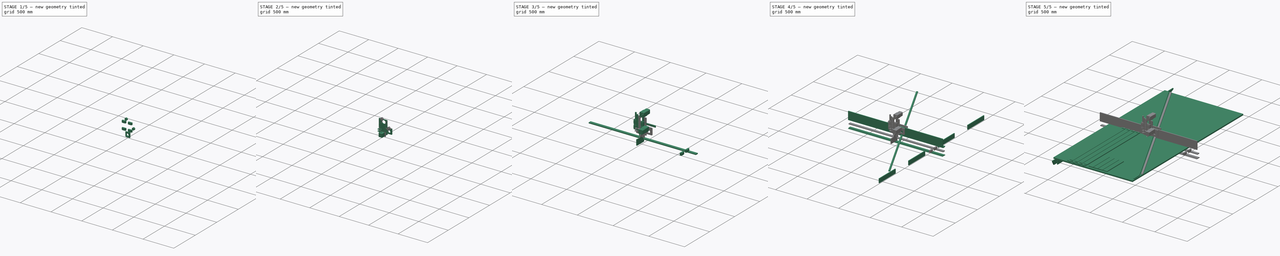
[diagram: build sequence overview — one tinted view per stage of 5, left to right]
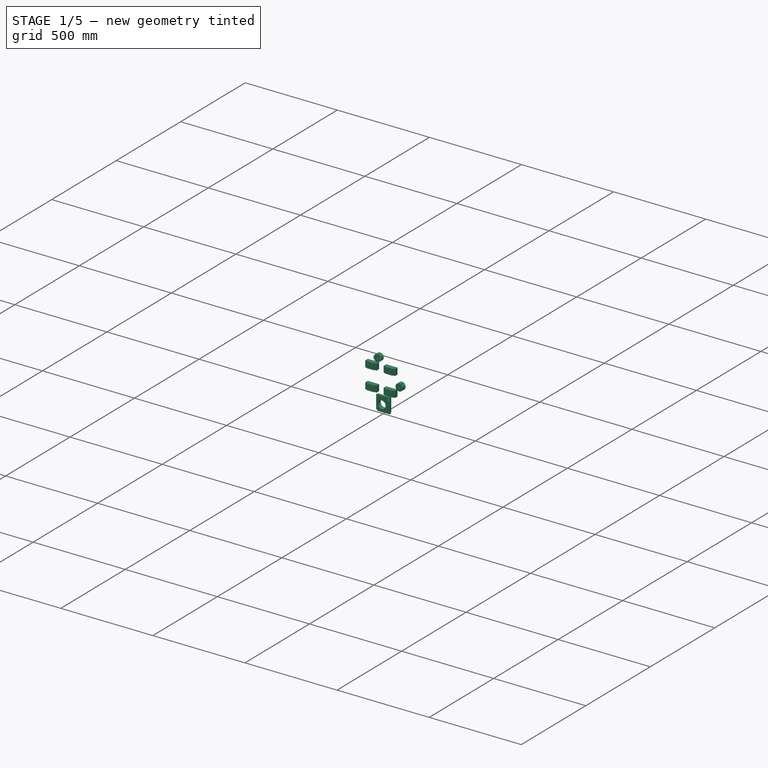
[diagram: stage 1 of 5 — iso view after this stage's code; geometry added in this stage tinted green]
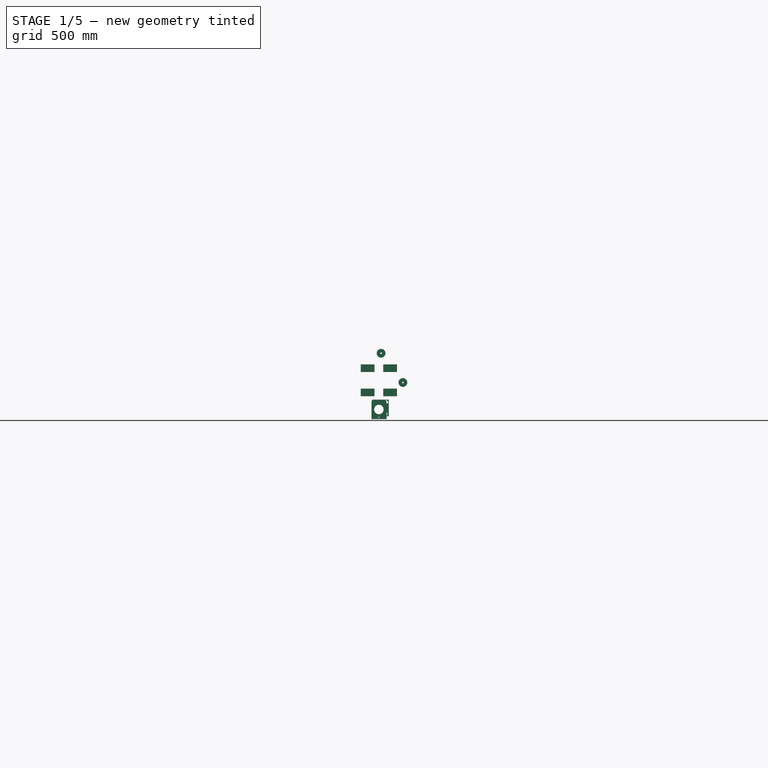
[diagram: stage 1 of 5 — front view after this stage's code; geometry added in this stage tinted green]
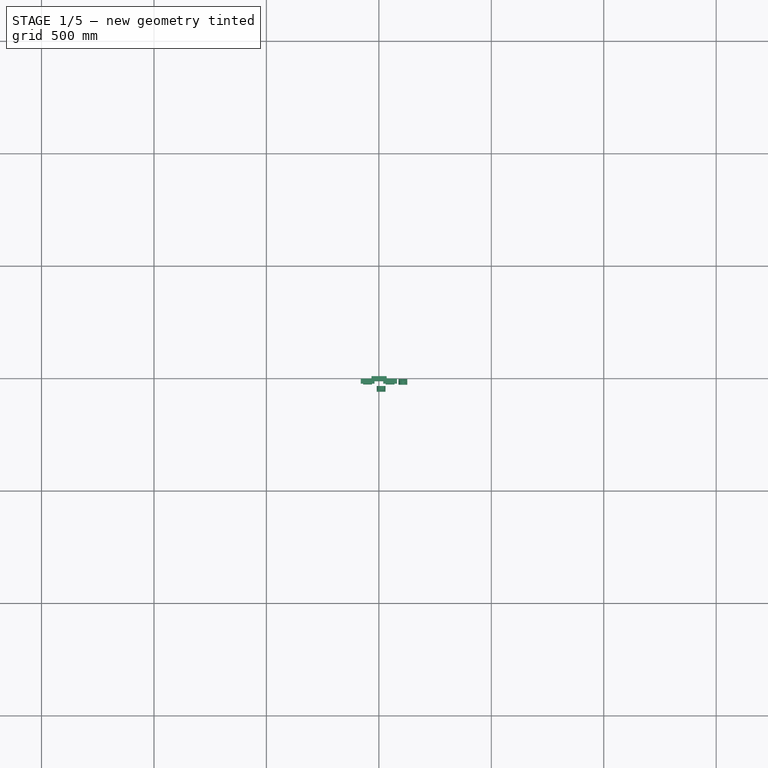
[diagram: stage 1 of 5 — top view after this stage's code; geometry added in this stage tinted green]
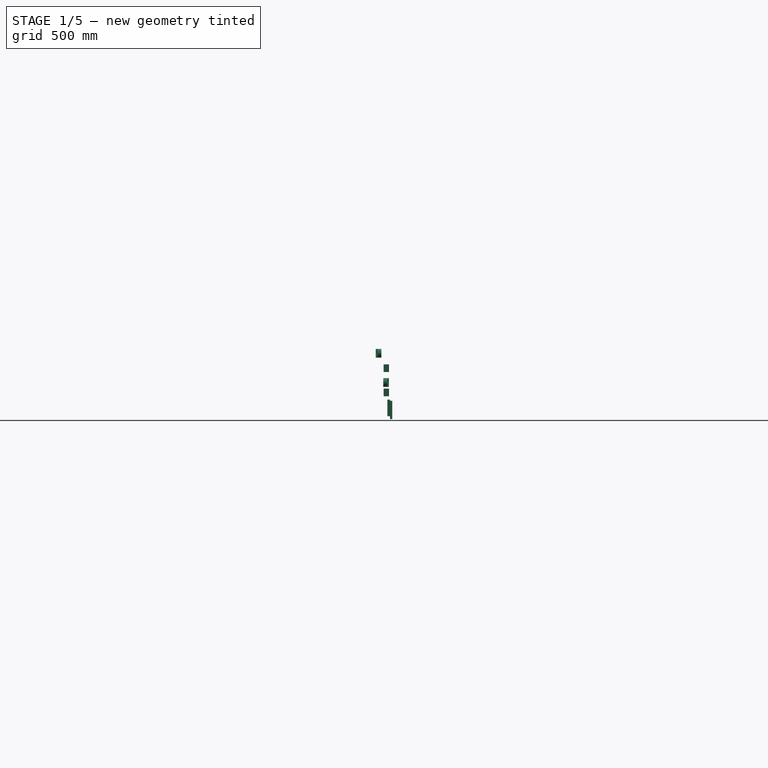
[diagram: stage 1 of 5 — right view after this stage's code; geometry added in this stage tinted green]
FCSTD DOCUMENT  (FreeCAD 0.20R29177 (Git))
Label: humphrey2
License: Creative Commons Attribution-ShareAlike
LicenseURL: http://creativecommons.org/licenses/by-sa/4.0/
objects: Sketcher::SketchObject×33, Part::FeaturePython×29, PartDesign::Pad×28, PartDesign::Body×26, App::Part×5, PartDesign::LinearPattern×4, Part::Mirroring×3, PartDesign::Chamfer×3, PartDesign::Pocket×2, App::Link×2, PartDesign::MultiTransform×2, PartDesign::Mirrored×2, App::FeaturePython×1, Part::MultiFuse×1, PartDesign::Fillet×1, PartDesign::Hole×1, Part::Feature×1
note: 156 computed .brp shape members not serialized (recipe doc carries the construction recipe); baked Part::Feature solids carry a one-line shape summary decoded from their .brp
EXTERNAL_REF file=cnc-friendy-rack-and-pinion-for-humphrey2.FCStd obj=Fusion001
EXTERNAL_REF file=cnc-friendy-rack-and-pinion-for-humphrey2.FCStd obj=Array017

FEATURE [PartDesign::Body] Body014  label="Gantry foot wall"
  Group = -> [Sketch017,Pad016]
  Origin = -> Origin016
  Placement = pos=(640,0,0) rot=(0,0,1;0rad)
  Tip = -> Pad016
  expr: .Placement.Base.x = <<Rail Y>>.Placement.Base[0] + dd.ddBearing_block_heigth
FEATURE [Sketcher::SketchObject] Sketch019
  FullyConstrained = true
  MapMode = 5
  Support = -> [XY_Plane017]
  sketch-geometry (8):
    g0: LineSegment StartX=-30.7 StartY=-4.3 StartZ=0 EndX=30.7 EndY=-4.3 EndZ=0
    g1: LineSegment StartX=30.7 StartY=-4.3 StartZ=0 EndX=30.7 EndY=-24 EndZ=0
    g2: LineSegment StartX=30.7 StartY=-24 StartZ=0 EndX=19.7 EndY=-24 EndZ=0
    g3: LineSegment StartX=19.7 StartY=-24 StartZ=0 EndX=19.7 EndY=-28 EndZ=0
    g4: LineSegment StartX=19.7 StartY=-28 StartZ=0 EndX=-19.7 EndY=-28 EndZ=0
    g5: LineSegment StartX=-19.7 StartY=-28 StartZ=0 EndX=-19.7 EndY=-24 EndZ=0
    g6: LineSegment StartX=-19.7 StartY=-24 StartZ=0 EndX=-30.7 EndY=-24 EndZ=0
    g7: LineSegment StartX=-30.7 StartY=-24 StartZ=0 EndX=-30.7 EndY=-4.3 EndZ=0
  constraints (22):
    c: Horizontal(g0)
    c: Coincident(g0,g1)
    c: Vertical(g1)
    c: Coincident(g1,g2)
    c: Horizontal(g2)
    c: Coincident(g2,g3)
    c: Vertical(g3)
    c: Coincident(g3,g4)
    c: Coincident(g4,g5)
    c: Vertical(g5)
    c: Coincident(g5,g6)
    c: Horizontal(g6)
    c: Coincident(g6,g7)
    c: Coincident(g7,g0)
    c: Vertical(g7)
    c: Symmetric(g3,g4,g-2)
    c: Symmetric(g6,g1,g-2)
    c: DistanceY(g-1,g3) = -28
    c: Distance(g0) = 61.4
    c: Distance(g4) = 39.4
    c: DistanceY(g-1,g0) = -4.3
    c: DistanceY(g-1,g1) = -24
FEATURE [PartDesign::Pad] Pad017
  Direction = (0,0,1)
  Length = 34
  Length2 = 10
  Midplane = true
  Profile = -> Sketch019
  ReferenceAxis = -> Sketch019 [N_Axis]
  Type = 0
FEATURE [Sketcher::SketchObject] Sketch020
  FullyConstrained = true
  MapMode = 5
  Placement = pos=(0,-28,0) rot=(1,0,0;1.5708rad)
  Support = -> [Pad017]
  sketch-geometry (9):
    g0: LineSegment StartX=-13 StartY=-13 StartZ=0 EndX=-13 EndY=13 EndZ=0
    g1: LineSegment StartX=-13 StartY=13 StartZ=0 EndX=13 EndY=13 EndZ=0
    g2: LineSegment StartX=13 StartY=13 StartZ=0 EndX=13 EndY=-13 EndZ=0
    g3: LineSegment StartX=13 StartY=-13 StartZ=0 EndX=-13 EndY=-13 EndZ=0
    g4: GeomPoint X=0 Y=0 Z=0
    g5: Circle CenterX=-13 CenterY=13 CenterZ=0 NormalX=0 NormalY=0 NormalZ=1 AngleXU=0 Radius=2
    g6: Circle CenterX=13 CenterY=13 CenterZ=0 NormalX=0 NormalY=0 NormalZ=1 AngleXU=0 Radius=2
    g7: Circle CenterX=13 CenterY=-13 CenterZ=0 NormalX=0 NormalY=0 NormalZ=1 AngleXU=0 Radius=2
    g8: Circle CenterX=-13 CenterY=-13 CenterZ=0 NormalX=0 NormalY=0 NormalZ=1 AngleXU=0 Radius=2
  constraints (20):
    c: Coincident(g0,g1)
    c: Coincident(g1,g2)
    c: Coincident(g2,g3)
    c: Coincident(g3,g0)
    c: Horizontal(g1)
    c: Horizontal(g3)
    c: Vertical(g0)
    c: Vertical(g2)
    c: Symmetric(g1,g0,g4)
    c: Coincident(g4,g-1)
    c: Coincident(g5,g0)
    c: Coincident(g6,g1)
    c: Coincident(g7,g2)
    c: Coincident(g8,g0)
    c: Equal(g8,g5)
    c: Equal(g8,g6)
    c: Equal(g8,g7)
    c: Diameter(g8) = 4
    c: Distance(g1) = 26
    c: Distance(g0) = 26
FEATURE [PartDesign::Pocket] Pocket
  BaseFeature = -> Pad017
  Direction = (0,1,-2e-16)
  Length = 5
  Length2 = 5
  Profile = -> Sketch020
  ReferenceAxis = -> Sketch020 [N_Axis]
  Type = 0
FEATURE [Part::FeaturePython] Array008  label="Bearing blocks Y - right1"  # Draft array (typed FeaturePython)
  AlwaysSyncPlacement = false
  Angle = 360
  ArrayType = 0
  Axis = (0,0,1)
  Base = -> Clone006
  Center = (0,0,0)
  Count = 2
  ExpandArray = false
  Fuse = false
  IntervalAxis = (0,0,0)
  IntervalX = (0,0,0)
  IntervalY = (0,102,0)
  IntervalZ = (0,0,100)
  NumberCircles = 3
  NumberPolar = 5
  NumberX = 1
  NumberY = 2
  NumberZ = 1
  PlacementList = 2 placements: [(612,-89.85,-44.5),(612,12.15,-44.5)]
  RadialDistance = 50
  ScaleList = (2) [(1,1,1),(1,1,1)]
  Symmetry = 1
  TangentialDistance = 25
  expr: .IntervalY.y = dd.ddY_block_spacing
FEATURE [Sketcher::SketchObject] Sketch021
  FullyConstrained = true
  MapMode = 5
  Placement = pos=(0,0,0) rot=(0.57735,0.57735,0.57735;2.0944rad)
  Support = -> [YZ_Plane019]
  expr: Constraints[10] = dd.ddRail_width
  expr: Constraints[11] = -dd.ddRail_heigth
  sketch-geometry (5):
    g0: LineSegment StartX=0 StartY=0 StartZ=0 EndX=0 EndY=15 EndZ=0
    g1: LineSegment StartX=0 StartY=15 StartZ=0 EndX=-13 EndY=15 EndZ=0
    g2: LineSegment StartX=-13 StartY=15 StartZ=0 EndX=-13 EndY=0 EndZ=0
    g3: LineSegment StartX=-13 StartY=0 StartZ=0 EndX=0 EndY=0 EndZ=0
    g4: GeomPoint X=-6.5 Y=7.5 Z=0
  constraints (12):
    c: Coincident(g0,g1)
    c: Coincident(g1,g2)
    c: Coincident(g2,g3)
    c: Coincident(g3,g0)
    c: Horizontal(g1)
    c: Horizontal(g3)
    c: Vertical(g0)
    c: Vertical(g2)
    c: Symmetric(g1,g0,g4)
    c: Coincident(g0,g-1)
    c: DistanceY(g-1,g1) = 15
    c: DistanceX(g-2,g1) = -13
FEATURE [PartDesign::Pad] Pad018
  Direction = (1,-2e-16,3e-16)
  Length = 1480
  Length2 = 10
  Midplane = true
  Placement = pos=(0,0,0) rot=(0.57735,0.57735,0.57735;2.0944rad)
  Profile = -> Sketch021
  ReferenceAxis = -> Sketch021 [N_Axis]
  Type = 0
  expr: Length = dd.ddX_rail_length
FEATURE [Sketcher::SketchObject] Sketch023
  FullyConstrained = true
  MapMode = 5
  Support = -> [XY_Plane021]
  expr: Constraints[8] = dd.ddRail_width
  expr: Constraints[9] = dd.ddRail_heigth
  sketch-geometry (4):
    g0: LineSegment StartX=-7.5 StartY=0 StartZ=0 EndX=7.5 EndY=0 EndZ=0
    g1: LineSegment StartX=7.5 StartY=0 StartZ=0 EndX=7.5 EndY=-13 EndZ=0
    g2: LineSegment StartX=7.5 StartY=-13 StartZ=0 EndX=-7.5 EndY=-13 EndZ=0
    g3: LineSegment StartX=-7.5 StartY=-13 StartZ=0 EndX=-7.5 EndY=0 EndZ=0
  constraints (11):
    c: Coincident(g0,g1)
    c: Coincident(g1,g2)
    c: Coincident(g2,g3)
    c: Coincident(g3,g0)
    c: Horizontal(g0)
    c: Vertical(g1)
    c: Vertical(g3)
    c: PointOnObject(g0,g-1)
    c: Distance(g2) = 15
    c: Distance(g1) = 13
    c: Symmetric(g2,g1,g-2)
FEATURE [PartDesign::Pad] Pad020
  Direction = (0,0,1)
  Length = 220
  Length2 = 10
  Profile = -> Sketch023
  ReferenceAxis = -> Sketch023 [N_Axis]
  Type = 0
  expr: Length = dd.ddZ_rail_length
FEATURE [PartDesign::Body] Body018  label="Rail Z"
  Group = -> [Sketch023,Pad020]
  Origin = -> Origin021
  Placement = pos=(-50,-39.6,59.1) rot=(0,0,1;0rad)
  Tip = -> Pad020
  expr: .Placement.Base.x = -dd.ddZ_rail_spacing / 2
  expr: .Placement.Base.y = -dd.ddBearing_block_heigth - dd.ddPhenolic_thickness
  expr: .Placement.Base.z = dd.ddGantry_to_bed_clearance + dd.ddPhenolic_thickness - dd.ddAlignment_pocket_depth + dd.ddRail_width / 2 - dd.ddBearing_block_width / 2
FEATURE [Part::FeaturePython] Array011  label="Rails Z"  # Draft array (typed FeaturePython)
  AlwaysSyncPlacement = false
  Angle = 360
  ArrayType = 0
  Axis = (0,0,1)
  Base = -> Body018
  Center = (0,0,0)
  Count = 2
  ExpandArray = false
  Fuse = false
  IntervalAxis = (0,0,0)
  IntervalX = (100,0,0)
  IntervalY = (0,100,0)
  IntervalZ = (0,0,100)
  NumberCircles = 3
  NumberPolar = 5
  NumberX = 2
  NumberY = 1
  NumberZ = 1
  PlacementList = 2 placements: [(-50,-39.6,59.1),(50,-39.6,59.1)]
  RadialDistance = 50
  ScaleList = (2) [(1,1,1),(1,1,1)]
  Symmetry = 1
  TangentialDistance = 25
  expr: .IntervalX.x = dd.ddZ_rail_spacing
FEATURE [Part::FeaturePython] Clone007  label="Bearing block Z"  # Draft clone (typed FeaturePython)
  AttacherType = Attacher::AttachEngine3D
  Fuse = false
  Objects = -> [Body015]
  Placement = pos=(-50,-39.6,98) rot=(0,-1,0;1.5708rad)
  Scale = (1,1,1)
  expr: .Placement.Base.x = -dd.ddZ_rail_spacing / 2
  expr: .Placement.Base.y = <<Rail Z>>.Placement.Base[1]
  expr: .Placement.Base.z = dd.ddGantry_to_bed_clearance + dd.ddGantry_heigth / 2 - dd.ddZ_block_spacing / 2
FEATURE [Part::FeaturePython] Array012  label="Bearing blocks Z"  # Draft array (typed FeaturePython)
  AlwaysSyncPlacement = false
  Angle = 360
  ArrayType = 0
  Axis = (0,0,1)
  Base = -> Clone007
  Center = (0,0,0)
  Count = 4
  ExpandArray = false
  Fuse = false
  IntervalAxis = (0,0,0)
  IntervalX = (100,0,0)
  IntervalY = (0,100,0)
  IntervalZ = (0,0,64)
  NumberCircles = 3
  NumberPolar = 5
  NumberX = 2
  NumberY = 1
  NumberZ = 2
  PlacementList = 4 placements: [(-50,-39.6,98),(-50,-39.6,162),(50,-39.6,98),(50,-39.6,162)]
  RadialDistance = 50
  ScaleList = (4) [(1,1,1),(1,1,1),(1,1,1),(1,1,1)]
  Symmetry = 1
  TangentialDistance = 25
  expr: .IntervalX.x = dd.ddZ_rail_spacing
  expr: .IntervalZ.z = dd.ddZ_block_spacing
FEATURE [Sketcher::SketchObject] Sketch024
  FullyConstrained = false
  MapMode = 5
  Placement = pos=(0,0,0) rot=(1,0,0;1.5708rad)
  Support = -> [XZ_Plane022]
  expr: Constraints[4] = dd.ddZ_rail_spacing + dd.ddBearing_block_width
  sketch-geometry (8):
    g0: LineSegment StartX=67 StartY=51.7371 StartZ=0 EndX=67 EndY=-62.9265 EndZ=0
    g1: LineSegment StartX=67 StartY=-62.9265 StartZ=0 EndX=-67 EndY=-62.9265 EndZ=0
    g2: LineSegment StartX=-67 StartY=-62.9265 StartZ=0 EndX=-67 EndY=51.7371 EndZ=0
    g3: LineSegment StartX=-67 StartY=51.7371 StartZ=0 EndX=-41.8795 EndY=51.7371 EndZ=0
    g4: LineSegment StartX=-41.8795 StartY=51.7371 StartZ=0 EndX=-41.8795 EndY=138.872 EndZ=0
    g5: LineSegment StartX=-41.8795 StartY=138.872 StartZ=0 EndX=41.8795 EndY=138.872 EndZ=0
    g6: LineSegment StartX=41.8795 StartY=138.872 StartZ=0 EndX=41.8795 EndY=51.7371 EndZ=0
    g7: LineSegment StartX=41.8795 StartY=51.7371 StartZ=0 EndX=67 EndY=51.7371 EndZ=0
  constraints (16):
    c: Coincident(g0,g1)
    c: Coincident(g1,g2)
    c: Vertical(g0)
    c: Symmetric(g1,g0,g-2)
    c: Distance(g1) = 134
    c: Coincident(g2,g3)
    c: Coincident(g3,g4)
    c: Vertical(g4)
    c: Coincident(g4,g5)
    c: Coincident(g5,g6)
    c: Coincident(g6,g7)
    c: Coincident(g7,g0)
    c: Symmetric(g3,g6,g-2)
    c: Symmetric(g4,g5,g-2)
    c: Horizontal(g3)
    c: Symmetric(g2,g0,g-2)
FEATURE [PartDesign::Pad] Pad021
  Direction = (0,-1,-2e-16)
  Length = 11.6
  Length2 = 10
  Placement = pos=(0,0,0) rot=(1,0,0;1.5708rad)
  Profile = -> Sketch024
  ReferenceAxis = -> Sketch024 [N_Axis]
  Type = 0
  expr: Length = dd.ddPhenolic_thickness
FEATURE [Part::FeaturePython] Clone011  label="Pinion - X axis"  # Draft clone (typed FeaturePython)
  AttacherType = Attacher::AttachEngine3D
  Fuse = false
  Objects = -> [Link]
  Placement = pos=(107,-12.6,120) rot=(0,0,1;3.14159rad)
  Scale = (1,1,1)
  expr: .Placement.Base.x = dd.ddZ_rail_spacing / 2 + dd.ddBearing_block_width / 2 + dd.ddGearbox_width / 2 + dd.ddGearbox_to_z_axis_clearance
  expr: .Placement.Base.y = -dd.ddPhenolic_thickness - 1
  expr: .Placement.Base.z = dd.ddGantry_to_bed_clearance + dd.ddGantry_heigth / 2 - 10
FEATURE [Sketcher::SketchObject] Sketch027
  FullyConstrained = true
  MapMode = 5
  Placement = pos=(0,0,0) rot=(1,0,0;1.5708rad)
  Support = -> [XZ_Plane022]
  expr: Constraints[12] = -dd.ddZ_block_spacing / 2
  expr: Constraints[13] = -dd.ddZ_rail_spacing / 2
  expr: Constraints[14] = dd.ddBearing_block_hole_spacing
  expr: Constraints[22] = dd.ddM4_hole_diameter
  sketch-geometry (9):
    g0: LineSegment StartX=-63 StartY=-45 StartZ=0 EndX=-37 EndY=-45 EndZ=0
    g1: LineSegment StartX=-37 StartY=-45 StartZ=0 EndX=-37 EndY=-19 EndZ=0
    g2: LineSegment StartX=-37 StartY=-19 StartZ=0 EndX=-63 EndY=-19 EndZ=0
    g3: LineSegment StartX=-63 StartY=-19 StartZ=0 EndX=-63 EndY=-45 EndZ=0
    g4: Circle CenterX=-50 CenterY=-32 CenterZ=0 NormalX=0 NormalY=0 NormalZ=1 AngleXU=0 Radius=18.3848
    g5: Circle CenterX=-63 CenterY=-19 CenterZ=0 NormalX=0 NormalY=0 NormalZ=1 AngleXU=0 Radius=2.25
    g6: Circle CenterX=-37 CenterY=-19 CenterZ=0 NormalX=0 NormalY=0 NormalZ=1 AngleXU=0 Radius=2.25
    g7: Circle CenterX=-37 CenterY=-45 CenterZ=0 NormalX=0 NormalY=0 NormalZ=1 AngleXU=0 Radius=2.25
    g8: Circle CenterX=-63 CenterY=-45 CenterZ=0 NormalX=0 NormalY=0 NormalZ=1 AngleXU=0 Radius=2.25
  constraints (23):
    c: Coincident(g0,g1)
    c: Coincident(g1,g2)
    c: Coincident(g2,g3)
    c: Coincident(g3,g0)
    c: Equal(g0,g1)
    c: Equal(g0,g2)
    c: Equal(g0,g3)
    c: PointOnObject(g0,g4)
    c: PointOnObject(g1,g4)
    c: PointOnObject(g2,g4)
    c: PointOnObject(g3,g4)
    c: Horizontal(g2)
    c: DistanceY(g-1,g4) = -32
    c: DistanceX(g-2,g4) = -50
    c: Distance(g1) = 26
    c: Coincident(g5,g2)
    c: Coincident(g6,g1)
    c: Coincident(g7,g0)
    c: Coincident(g8,g0)
    c: Equal(g8,g5)
    c: Equal(g8,g6)
    c: Equal(g8,g7)
    c: Diameter(g8) = 4.5
FEATURE [PartDesign::Pocket] Pocket001
  BaseFeature = -> Pad021
  Direction = (0,1,2e-16)
  Length = 5
  Length2 = 5
  Placement = pos=(0,0,0) rot=(1,0,0;1.5708rad)
  Profile = -> Sketch027
  ReferenceAxis = -> Sketch027 [N_Axis]
  Reversed = true
  Type = 1
FEATURE [PartDesign::LinearPattern] LinearPattern
  Direction = -> Sketch027 [H_Axis]
  Length = 100
  Occurrences = 2
  Placement = pos=(0,0,0) rot=(1,0,0;1.5708rad)
  expr: Length = dd.ddZ_rail_spacing
FEATURE [PartDesign::LinearPattern] LinearPattern001
  Direction = -> Sketch027 [V_Axis]
  Length = 64
  Occurrences = 2
  Placement = pos=(0,0,0) rot=(1,0,0;1.5708rad)
  expr: Length = dd.ddZ_block_spacing
FEATURE [PartDesign::MultiTransform] MultiTransform
  BaseFeature = -> Pocket001
  Originals = -> [Pocket001]
  Placement = pos=(0,0,0) rot=(1,0,0;1.5708rad)
  Transformations = -> [LinearPattern,LinearPattern001]
FEATURE [PartDesign::Body] Body017  label="X axis plate"
  Group = -> [Sketch022,Pad019,Chamfer002,Fillet,Sketch030,Hole,MultiTransform001,LinearPattern002,LinearPattern003]
  Origin = -> Origin020
  Placement = pos=(0,-28,59.1) rot=(0,0,1;0rad)
  Tip = -> MultiTransform001
  expr: .Placement.Base.x = -dd.ddSpindle_X_offset
  expr: .Placement.Base.y = -dd.ddBearing_block_heigth
  expr: .Placement.Base.z = dd.ddGantry_to_bed_clearance + dd.ddPhenolic_thickness - dd.ddAlignment_pocket_depth + dd.ddRail_width / 2 - dd.ddBearing_block_width / 2
FEATURE [Sketcher::SketchObject] Sketch031
  FullyConstrained = false
  MapMode = 5
  Placement = pos=(0,0,0) rot=(1,0,0;1.5708rad)
  Support = -> [XZ_Plane028]
  expr: Constraints[10] = -dd.ddGearbox_width / 2
  expr: Constraints[11] = -dd.ddGearbox_width / 2
  expr: Constraints[12] = dd.ddGearbox_width / 2 + 14
  expr: Constraints[13] = dd.ddGearbox_width / 2 + 14
  expr: Constraints[24] = dd.ddM5_hole_diameter
  sketch-geometry (14):
    g0: Circle CenterX=0 CenterY=0 CenterZ=0 NormalX=0 NormalY=0 NormalZ=1 AngleXU=0 Radius=21
    g1: LineSegment StartX=-30 StartY=44 StartZ=0 EndX=44 EndY=44 EndZ=0
    g2: LineSegment StartX=44 StartY=44 StartZ=0 EndX=44 EndY=-30 EndZ=0
    g3: LineSegment StartX=44 StartY=-30 StartZ=0 EndX=-30 EndY=-30 EndZ=0
    g4: LineSegment StartX=-30 StartY=-30 StartZ=0 EndX=-30 EndY=44 EndZ=0
    g5: Circle CenterX=-23.1667 CenterY=36.1897 CenterZ=0 NormalX=0 NormalY=0 NormalZ=1 AngleXU=0 Radius=2.75
    g6: ArcOfCircle CenterX=33.2287 CenterY=37.7358 CenterZ=0 NormalX=0 NormalY=0 NormalZ=1 AngleXU=0 Radius=3.89731 StartAngle=0.536608 EndAngle=3.6782
    g7: ArcOfCircle CenterX=37.3128 CenterY=30.8697 CenterZ=0 NormalX=0 NormalY=0 NormalZ=1 AngleXU=0 Radius=3.89731 StartAngle=3.6782 EndAngle=6.81979
    g8: LineSegment StartX=29.8791 StartY=35.7434 StartZ=0 EndX=33.9633 EndY=28.8773 EndZ=0
    g9: LineSegment StartX=40.6623 StartY=32.8621 StartZ=0 EndX=36.5782 EndY=39.7282 EndZ=0
    g10: ArcOfCircle CenterX=35.8218 CenterY=-16.7712 CenterZ=0 NormalX=0 NormalY=0 NormalZ=1 AngleXU=0 Radius=2.35361 StartAngle=6.11044 EndAngle=9.25203
    g11: ArcOfCircle CenterX=34.1756 CenterY=-26.2059 CenterZ=0 NormalX=0 NormalY=0 NormalZ=1 AngleXU=0 Radius=2.35361 StartAngle=2.96885 EndAngle=6.11044
    g12: LineSegment StartX=33.5032 StartY=-16.3666 StartZ=0 EndX=31.857 EndY=-25.8014 EndZ=0
    g13: LineSegment StartX=36.4942 StartY=-26.6105 StartZ=0 EndX=38.1404 EndY=-17.1757 EndZ=0
  constraints (25):
    c: Coincident(g0,g-1)
    c: Diameter(g0) = 42
    c: Coincident(g1,g2)
    c: Coincident(g2,g3)
    c: Coincident(g3,g4)
    c: Coincident(g4,g1)
    c: Horizontal(g1)
    c: Horizontal(g3)
    c: Vertical(g2)
    c: Vertical(g4)
    c: DistanceX(g-2,g3) = -30
    c: DistanceY(g-1,g3) = -30
    c: DistanceY(g-1,g1) = 44
    c: DistanceX(g-2,g1) = 44
    c: Tangent(g6,g8) = -1.5708
    c: Tangent(g8,g7) = -1.5708
    c: Tangent(g7,g9) = -1.5708
    c: Tangent(g9,g6) = -1.5708
    c: Equal(g6,g7)
    c: Tangent(g10,g12) = -1.5708
    c: Tangent(g12,g11) = -1.5708
    c: Tangent(g11,g13) = -1.5708
    c: Tangent(g13,g10) = -1.5708
    c: Equal(g10,g11)
    c: Diameter(g5) = 5.5
FEATURE [PartDesign::Pad] Pad026
  Direction = (0,-1,-2e-16)
  Length = 11.6
  Length2 = 10
  Placement = pos=(0,0,0) rot=(1,0,0;1.5708rad)
  Profile = -> Sketch031
  ReferenceAxis = -> Sketch031 [N_Axis]
  Type = 0
  expr: Length = dd.ddPhenolic_thickness
FEATURE [PartDesign::Body] Body023  label="X motor plate"
  Group = -> [Sketch031,Pad026]
  Origin = -> Origin028
  Placement = pos=(107,-39.6,120) rot=(0,0,1;0rad)
  Tip = -> Pad026
  expr: .Placement.Base.x = <<Pinion - X axis>>.Placement.Base.x
  expr: .Placement.Base.y = -dd.ddBearing_block_heigth - dd.ddPhenolic_thickness
  expr: .Placement.Base.z = <<Pinion - X axis>>.Placement.Base.z
FEATURE [Sketcher::SketchObject] Sketch032
  FullyConstrained = false
  MapMode = 5
  Placement = pos=(0,0,0) rot=(1,0,0;1.5708rad)
  Support = -> [XZ_Plane029]
  sketch-geometry (14):
    g0: Circle CenterX=0 CenterY=0 CenterZ=0 NormalX=0 NormalY=0 NormalZ=1 AngleXU=0 Radius=21
    g1: LineSegment StartX=-32.5478 StartY=38.7096 StartZ=0 EndX=34.0147 EndY=38.7096 EndZ=0
    g2: LineSegment StartX=34.0147 StartY=38.7096 StartZ=0 EndX=34.5477 EndY=-42.7091 EndZ=0
    g3: LineSegment StartX=34.5477 StartY=-42.7091 StartZ=0 EndX=-32.5478 EndY=-42.7091 EndZ=0
    g4: LineSegment StartX=-32.5478 StartY=-42.7091 StartZ=0 EndX=-32.5478 EndY=38.7096 EndZ=0
    g5: Circle CenterX=-0.033242 CenterY=-35.1246 CenterZ=0 NormalX=0 NormalY=0 NormalZ=1 AngleXU=0 Radius=2.53978
    g6: ArcOfCircle CenterX=-24.882 CenterY=31.4567 CenterZ=0 NormalX=0 NormalY=0 NormalZ=1 AngleXU=0 Radius=2.01639 StartAngle=1.74736 EndAngle=4.88895
    g7: ArcOfCircle CenterX=-12.049 CenterY=33.7463 CenterZ=0 NormalX=0 NormalY=0 NormalZ=1 AngleXU=0 Radius=2.01639 StartAngle=4.88895 EndAngle=8.03054
    g8: LineSegment StartX=-24.5278 StartY=29.4716 StartZ=0 EndX=-11.6949 EndY=31.7612 EndZ=0
    g9: LineSegment StartX=-12.4032 StartY=35.7313 StartZ=0 EndX=-25.2362 EndY=33.4417 EndZ=0
    g10: ArcOfCircle CenterX=25.7976 CenterY=30.1382 CenterZ=0 NormalX=0 NormalY=0 NormalZ=1 AngleXU=0 Radius=2.65954 StartAngle=4.46871 EndAngle=7.6103
    g11: ArcOfCircle CenterX=15.3752 CenterY=32.7294 CenterZ=0 NormalX=0 NormalY=0 NormalZ=1 AngleXU=0 Radius=2.65954 StartAngle=1.32712 EndAngle=4.46871
    g12: LineSegment StartX=26.4392 StartY=32.7192 StartZ=0 EndX=16.0169 EndY=35.3104 EndZ=0
    g13: LineSegment StartX=14.7335 StartY=30.1484 StartZ=0 EndX=25.1559 EndY=27.5572 EndZ=0
  constraints (19):
    c: Coincident(g0,g-1)
    c: Diameter(g0) = 42
    c: Coincident(g1,g2)
    c: Coincident(g2,g3)
    c: Coincident(g3,g4)
    c: Coincident(g4,g1)
    c: Horizontal(g1)
    c: Horizontal(g3)
    c: Vertical(g4)
    c: Tangent(g6,g8) = -1.5708
    c: Tangent(g8,g7) = -1.5708
    c: Tangent(g7,g9) = -1.5708
    c: Tangent(g9,g6) = -1.5708
    c: Equal(g6,g7)
    c: Tangent(g10,g12) = -1.5708
    c: Tangent(g12,g11) = -1.5708
    c: Tangent(g11,g13) = -1.5708
    c: Tangent(g13,g10) = -1.5708
    c: Equal(g10,g11)
FEATURE [PartDesign::Pad] Pad027
  Direction = (0,-1,2e-16)
  Length = 10
  Length2 = 10
  Placement = pos=(0,0,0) rot=(1,0,0;1.5708rad)
  Profile = -> Sketch032
  ReferenceAxis = -> Sketch032 [N_Axis]
  Reversed = true
  Type = 0
FEATURE [Part::FeaturePython] Array009  label="Right4-rotate"  # Draft array (typed FeaturePython)
  Angle = 360
  ArrayType = 0
  Axis = (0,0,1)
  Base = -> Array008
  Center = (0,0,0)
  Fuse = false
  IntervalAxis = (0,0,0)
  IntervalX = (1,0,0)
  IntervalY = (0,1,0)
  IntervalZ = (0,0,1)
  NumberPolar = 1
  NumberX = 1
  NumberY = 1
  NumberZ = 1
  Placement = pos=(0,0,0) rot=(0,1,0;0.558505rad)
FEATURE [Part::FeaturePython] Array010  label="Right5-move"  # Draft array (typed FeaturePython)
  Angle = 360
  ArrayType = 0
  Axis = (0,0,1)
  Base = -> Sketch001
  Center = (0,0,0)
  Fuse = false
  IntervalAxis = (0,0,0)
  IntervalX = (1,0,0)
  IntervalY = (0,1,0)
  IntervalZ = (0,0,1)
  NumberPolar = 1
  NumberX = 1
  NumberY = 1
  NumberZ = 1
  Placement = pos=(12.7778,0,0) rot=(0,0,1;0rad)
  expr: .Placement.Base.x = Spreadsheet.pinion_circumference / (360 / 40)
FEATURE [Part::Cylinder] Cylinder003  label="Cylinder for motor shaft hole"
  Angle = 360
  AttacherType = Attacher::AttachEngine3D
  FirstAngle = 0
  Height = 25
  Placement = pos=(0,17,0) rot=(1,0,0;1.5708rad)
  Radius = 3.6
  SecondAngle = 0
  expr: .Placement.Base.y = Spreadsheet.pinion_stock_thick - Spreadsheet.pinion_tooth_heigth
  expr: Height = Spreadsheet.pinion_stock_thick
  expr: Radius = Spreadsheet.pinion_motor_shaft_diameter / 2
FEATURE [Part::Cut] Cut004  label="Pinion with motor shaft cut"
  Base = -> Fusion
  Tool = -> Cylinder003
FEATURE [Part::Cylinder] Cylinder004  label="Cylinder"
  Angle = 360
  AttacherType = Attacher::AttachEngine3D
  FirstAngle = 0
  Height = 17
  Placement = pos=(0,0,0) rot=(-1,0,0;1.5708rad)
  Radius = 19.5
  SecondAngle = 0
  expr: Height = Spreadsheet.pinion_stock_thick - Spreadsheet.pinion_tooth_heigth
  expr: Radius = Spreadsheet.pinion_ring_diameter / 2
FEATURE [Part::Cut] Cut005  label="Pinion back ring"
  Base = -> Cylinder004
  Tool = -> Cylinder003
FEATURE [Part::Cylinder] Cylinder005  label="Cylinder001"
  Angle = 360
  AttacherType = Attacher::AttachEngine3D
  FirstAngle = 0
  Height = 46.2
  Placement = pos=(0,8.5,0) rot=(0,1,0;1.5708rad)
  Radius = 2.15
  SecondAngle = 0
  expr: .Placement.Base.y = (Spreadsheet.pinion_stock_thick - Spreadsheet.pinion_tooth_heigth) / 2
  expr: Height = Spreadsheet.pinion_motor_shaft_diameter + Spreadsheet.pinion_ring_diameter
  expr: Radius = Spreadsheet.pinion_set_screw_hole_diameter / 2
FEATURE [Part::FeaturePython] Array016  # Draft array (typed FeaturePython)
  Angle = 360
  ArrayType = 1
  Axis = (0,1,0)
  Base = -> Cylinder005
  Center = (0,0,0)
  Fuse = false
  IntervalAxis = (0,0,0)
  IntervalX = (1,0,0)
  IntervalY = (0,1,0)
  IntervalZ = (0,0,1)
  NumberPolar = 3
  NumberX = 1
  NumberY = 1
  NumberZ = 1
  expr: NumberPolar = Spreadsheet.pinion_set_screw_count
FEATURE [Part::Cut] Cut006  label="Pinion back ring with set scew holes"
  Base = -> Cut005
  Tool = -> Array016
FEATURE [App::DocumentObjectGroup] Group  label="Leftover building blocks"
  Group = -> [GrExplode_Slice001,GrExplode_Slice,Body006,Common,Body005,Cut002,Cut001,Body,Part__Feature,Body001,Cut006]
FEATURE [Part::FeaturePython] Clone008  label="Pinion - position check"  # Draft clone (typed FeaturePython)
  AttacherType = Attacher::AttachEngine3D
  Fuse = false
  Objects = -> [Cut004]
  Placement = pos=(48.875,0,0) rot=(0,1,0;0.15708rad)
  Scale = (1,1,1)
  expr: .Placement.Base.x = (round(Spreadsheet.pinion_tooth_count / 2) - 1.5) * Spreadsheet.pinion_circumference / Spreadsheet.pinion_tooth_count
  expr: .Placement.Rotation.Angle = 180 / Spreadsheet.pinion_tooth_count
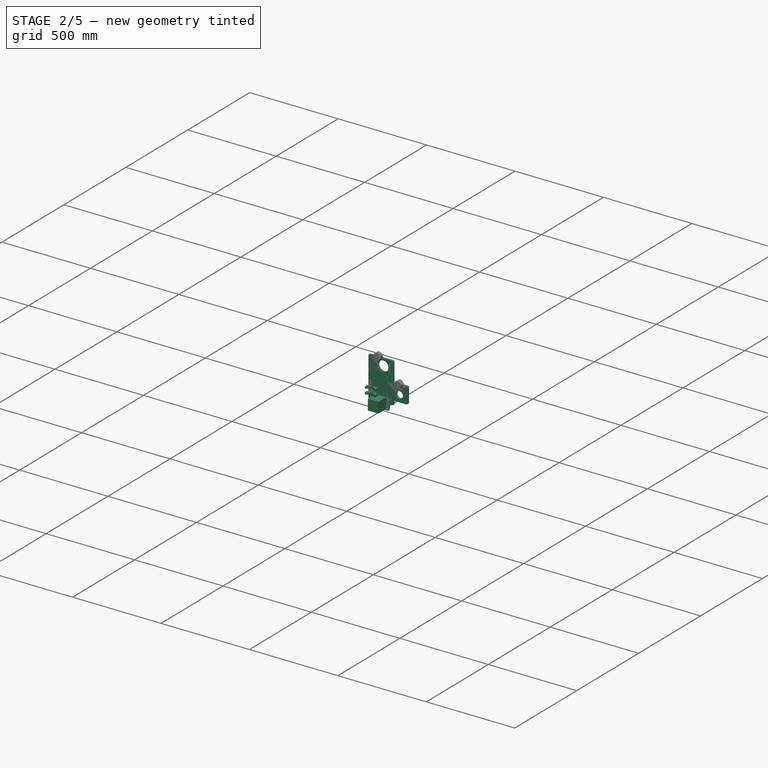
[diagram: stage 2 of 5 — iso view after this stage's code; geometry added in this stage tinted green]
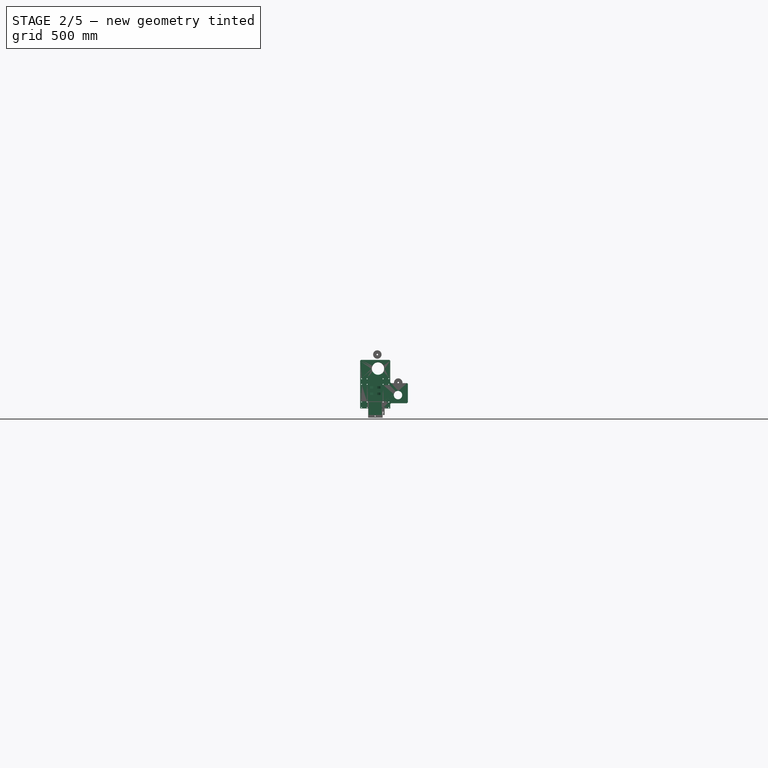
[diagram: stage 2 of 5 — front view after this stage's code; geometry added in this stage tinted green]
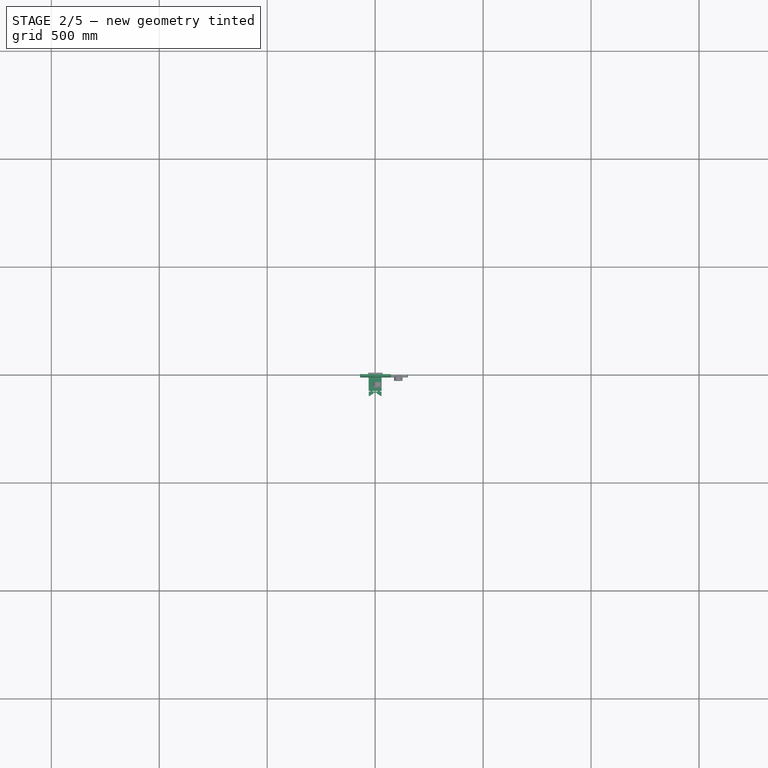
[diagram: stage 2 of 5 — top view after this stage's code; geometry added in this stage tinted green]
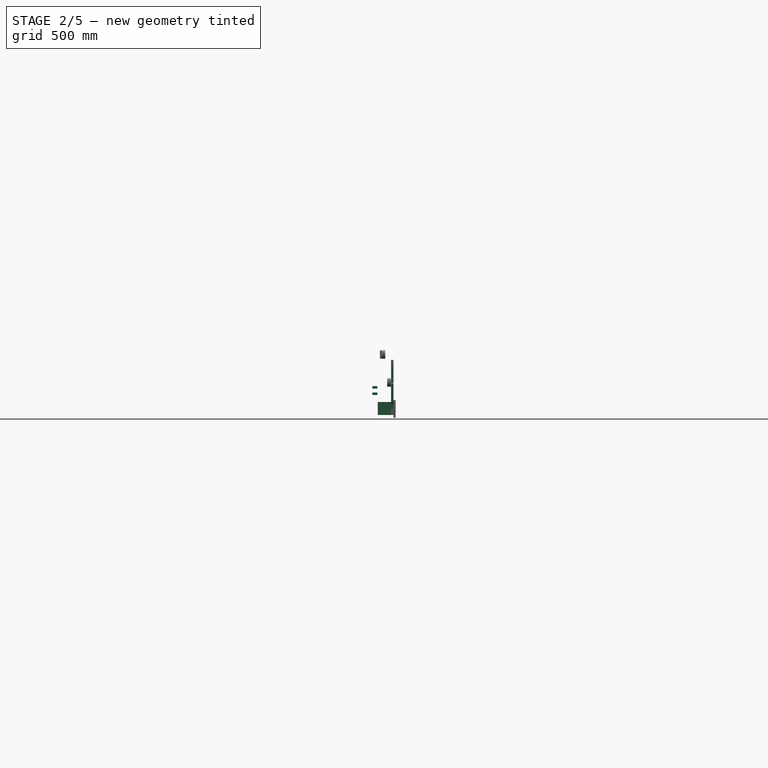
[diagram: stage 2 of 5 — right view after this stage's code; geometry added in this stage tinted green]
FEATURE [App::FeaturePython] dd  label="Parameters"  # WARN: FeaturePython — macro-defined, semantics opaque (R4)
  DynamicData = Created with DynamicData (v2.46) workbench. | This is a simple container object built | for holding custom properties.
  ddAlignment_pocket_depth = 8
  ddBearing_block_heigth = 28
  ddBearing_block_hole_spacing = 26
  ddBearing_block_length = 39.4
  ddBearing_block_width = 34
  ddBed_size_X = 1220
  ddBed_size_Y = 2440
  ddCore_heigth = 66
  ddCore_to_plywood_edge_dist = 2
  ddCore_wall_spacing = 45
  ddCross_wall_count = 8
  ddCross_wall_inset = 50
  ddFlexure_length = 60
  ddFlexure_width = 1.5
  ddGantry_depth = 62
  ddGantry_heigth = 130
  ddGantry_to_bed_clearance = 65
  ddGearbox_hole_spacing = 47
  ddGearbox_to_gantry_clearance = 25
  ddGearbox_to_z_axis_clearance = 10
  ddGearbox_width = 60
  ddM4_hole_diameter = 4.5
  ddM4_tapped_hole_diameter = 3.4
  ddM5_hole_diameter = 5.5
  ddM5_tapped_hole_diameter = 4.3
  ddMDF_thickness = 19
  ddMain_cutout_bit_diameter = 6
  ddNesting_clearance = 6.5
  ddNesting_distance_to_edge = 3
  ddPhenolic_thickness = 11.6
  ddPlywood_thickness = 18
  ddRail_alignment_stickout = 2
  ddRail_heigth = 13
  ddRail_width = 15
  ddSpindle_X_offset = 0
  ddSpindle_diameter = 64.7
  ddSpindle_main_body_length = 155
  ddX_block_spacing = 100
  ddX_rail_length = 1480
  ddY_block_spacing = 102
  ddY_block_to_spindle_offset = 10
  ddY_rail_length = 2620
  ddZ_block_spacing = 64
  ddZ_rail_length = 220
  ddZ_rail_spacing = 100
FEATURE [Sketcher::SketchObject] Sketch
  FullyConstrained = true
  MapMode = 5
  Support = -> [XY_Plane]
  expr: Constraints[1] = dd.ddSpindle_diameter
  sketch-geometry (1):
    g0: Circle CenterX=0 CenterY=0 CenterZ=0 NormalX=0 NormalY=0 NormalZ=1 AngleXU=0 Radius=32.35
  constraints (2):
    c: Coincident(g0,g-1)
    c: Diameter(g0) = 64.7
FEATURE [PartDesign::Pad] Pad
  Direction = (0,0,1)
  Length = 155
  Length2 = 10
  Profile = -> Sketch
  ReferenceAxis = -> Sketch [N_Axis]
  Type = 0
  expr: Length = dd.ddSpindle_main_body_length
FEATURE [Sketcher::SketchObject] Sketch001
  FullyConstrained = false
  MapMode = 5
  Placement = pos=(0,0,0) rot=(1,0,0;3.14159rad)
  Support = -> [Pad]
  sketch-geometry (1):
    g0: Circle CenterX=0 CenterY=0 CenterZ=0 NormalX=0 NormalY=0 NormalZ=1 AngleXU=0 Radius=7.67061
  constraints (1):
    c: Coincident(g0,g-1)
FEATURE [PartDesign::Pad] Pad001
  BaseFeature = -> Pad
  Direction = (0,0,-1)
  Length = 20
  Length2 = 10
  Profile = -> Sketch001
  ReferenceAxis = -> Sketch001 [N_Axis]
  Type = 0
FEATURE [Sketcher::SketchObject] Sketch002
  FullyConstrained = true
  MapMode = 5
  Placement = pos=(0,0,-20) rot=(1,0,0;3.14159rad)
  Support = -> [Pad001]
  expr: Constraints[1] = dd.ddMain_cutout_bit_diameter
  sketch-geometry (1):
    g0: Circle CenterX=0 CenterY=0 CenterZ=0 NormalX=0 NormalY=0 NormalZ=1 AngleXU=0 Radius=3
  constraints (2):
    c: Coincident(g0,g-1)
    c: Diameter(g0) = 6
FEATURE [PartDesign::Pad] Pad002
  BaseFeature = -> Pad001
  Direction = (0,0,-1)
  Length = 20
  Length2 = 10
  Profile = -> Sketch002
  ReferenceAxis = -> Sketch002 [N_Axis]
  Type = 0
FEATURE [PartDesign::Body] Body016  label="Rail X"
  Group = -> [Sketch021,Pad018]
  Origin = -> Origin019
  Placement = pos=(0,0,68.6) rot=(0,0,1;0rad)
  Tip = -> Pad018
  expr: .Placement.Base.z = dd.ddGantry_to_bed_clearance + dd.ddPhenolic_thickness - dd.ddAlignment_pocket_depth
FEATURE [Part::FeaturePython] Array009  label="Rails X"  # Draft array (typed FeaturePython)
  AlwaysSyncPlacement = false
  Angle = 360
  ArrayType = 0
  Axis = (0,0,1)
  Base = -> Body016
  Center = (0,0,0)
  Count = 2
  ExpandArray = false
  Fuse = false
  IntervalAxis = (0,0,0)
  IntervalX = (100,0,0)
  IntervalY = (0,100,0)
  IntervalZ = (0,0,107.8)
  NumberCircles = 3
  NumberPolar = 5
  NumberX = 1
  NumberY = 1
  NumberZ = 2
  PlacementList = 2 placements: [(0,0,68.6),(0,0,176.4)]
  RadialDistance = 50
  ScaleList = (2) [(1,1,1),(1,1,1)]
  Symmetry = 1
  TangentialDistance = 25
  expr: .IntervalZ.z = dd.ddGantry_heigth - dd.ddPhenolic_thickness * 2 + dd.ddAlignment_pocket_depth * 2 - dd.ddRail_width
FEATURE [Part::FeaturePython] Array010  label="Bearing blocks X"  # Draft array (typed FeaturePython)
  AlwaysSyncPlacement = false
  Angle = 360
  ArrayType = 0
  Axis = (0,0,1)
  Base = -> Body015
  Center = (0,0,0)
  Count = 4
  ExpandArray = false
  Fuse = false
  IntervalAxis = (0,0,0)
  IntervalX = (100,0,0)
  IntervalY = (0,100,0)
  IntervalZ = (0,0,107.8)
  NumberCircles = 3
  NumberPolar = 5
  NumberX = 2
  NumberY = 1
  NumberZ = 2
  Placement = pos=(-50,0,76.1) rot=(0,0,1;0rad)
  PlacementList = 4 placements: [(0,0,0),(0,0,107.8),(100,0,0),(100,0,107.8)]
  RadialDistance = 50
  ScaleList = (4) [(1,1,1),(1,1,1),(1,1,1),(1,1,1)]
  Symmetry = 1
  TangentialDistance = 25
  expr: .IntervalX.x = dd.ddX_block_spacing
  expr: .IntervalZ.z = <<Rails X>>.IntervalZ[2]
  expr: .Placement.Base.x = -dd.ddX_block_spacing / 2 - dd.ddSpindle_X_offset
  expr: .Placement.Base.z = <<Rail X>>.Placement.Base[2] + dd.ddRail_width / 2
FEATURE [Sketcher::SketchObject] Sketch022  label="Sketch with trouble constraint"
  FullyConstrained = false
  MapMode = 5
  Placement = pos=(0,0,0) rot=(1,0,0;1.5708rad)
  Support = -> [XZ_Plane020]
  expr: Constraints[18] = dd.ddX_block_spacing + dd.ddBearing_block_length
  expr: Constraints[19] = dd.ddGantry_heigth + dd.ddGearbox_width + dd.ddGearbox_to_gantry_clearance + 10
  expr: Constraints[20] = 10 + 10
  sketch-geometry (10):
    g0: LineSegment StartX=-69.7 StartY=225 StartZ=0 EndX=69.7 EndY=225 EndZ=0
    g1: LineSegment StartX=69.7 StartY=0 StartZ=0 EndX=-69.7 EndY=0 EndZ=0
    g2: LineSegment StartX=-69.7 StartY=0 StartZ=0 EndX=-69.7 EndY=225 EndZ=0
    g3: LineSegment StartX=69.7 StartY=0 StartZ=0 EndX=69.7 EndY=24.4081 EndZ=0
    g4: LineSegment StartX=69.7 StartY=24.4081 StartZ=0 EndX=151.649 EndY=24.4081 EndZ=0
    g5: LineSegment StartX=151.649 StartY=24.4081 StartZ=0 EndX=151.649 EndY=117.498 EndZ=0
    g6: LineSegment StartX=151.649 StartY=117.498 StartZ=0 EndX=69.7 EndY=117.498 EndZ=0
    g7: LineSegment StartX=69.7 StartY=117.498 StartZ=0 EndX=69.7 EndY=225 EndZ=0
    g8: Circle CenterX=13.32 CenterY=185.025 CenterZ=0 NormalX=0 NormalY=0 NormalZ=1 AngleXU=0 Radius=28.5288
    g9: Circle CenterX=105.788 CenterY=61.9873 CenterZ=0 NormalX=0 NormalY=0 NormalZ=1 AngleXU=0 Radius=19.4261
  constraints (21):
    c: Coincident(g1,g2)
    c: Coincident(g2,g0)
    c: Horizontal(g1)
    c: Vertical(g2)
    c: PointOnObject(g1,g-1)
    c: Coincident(g1,g3)
    c: Vertical(g3)
    c: Coincident(g3,g4)
    c: Horizontal(g4)
    c: Coincident(g4,g5)
    c: Vertical(g5)
    c: Coincident(g5,g6)
    c: Horizontal(g6)
    c: Coincident(g6,g7)
    c: Coincident(g7,g0)
    c: Vertical(g7)
    c: Symmetric(g0,g0,g-2)
    c: Vertical(g3,g6)
    c: Distance(g1) = 139.4
    c: DistanceY(g-1,g0) = 225
    c: DistanceX(g-2,g8) = 13.32
FEATURE [PartDesign::Pad] Pad019
  Direction = (0,-1,-2e-16)
  Length = 11.6
  Length2 = 10
  Placement = pos=(0,0,0) rot=(1,0,0;1.5708rad)
  Profile = -> Sketch022
  ReferenceAxis = -> Sketch022 [N_Axis]
  Type = 0
  expr: Length = dd.ddPhenolic_thickness
FEATURE [Sketcher::SketchObject] Sketch025
  FullyConstrained = true
  MapMode = 5
  Placement = pos=(0,0,0) rot=(1,0,0;1.5708rad)
  Support = -> [XZ_Plane025]
  expr: Constraints[10] = dd.ddGearbox_width
  expr: Constraints[11] = dd.ddGearbox_width
  sketch-geometry (5):
    g0: LineSegment StartX=-30 StartY=-30 StartZ=0 EndX=-30 EndY=30 EndZ=0
    g1: LineSegment StartX=-30 StartY=30 StartZ=0 EndX=30 EndY=30 EndZ=0
    g2: LineSegment StartX=30 StartY=30 StartZ=0 EndX=30 EndY=-30 EndZ=0
    g3: LineSegment StartX=30 StartY=-30 StartZ=0 EndX=-30 EndY=-30 EndZ=0
    g4: GeomPoint X=0 Y=0 Z=0
  constraints (12):
    c: Coincident(g0,g1)
    c: Coincident(g1,g2)
    c: Coincident(g2,g3)
    c: Coincident(g3,g0)
    c: Horizontal(g1)
    c: Horizontal(g3)
    c: Vertical(g0)
    c: Vertical(g2)
    c: Symmetric(g1,g0,g4)
    c: Coincident(g4,g-1)
    c: Distance(g2) = 60
    c: Distance(g1) = 60
FEATURE [PartDesign::Pad] Pad022
  Direction = (0,-1,-2e-16)
  Length = 73
  Length2 = 10
  Placement = pos=(0,0,0) rot=(1,0,0;1.5708rad)
  Profile = -> Sketch025
  ReferenceAxis = -> Sketch025 [N_Axis]
  Type = 0
FEATURE [PartDesign::Body] Body019  label="Z axis plate"
  Group = -> [Sketch024,Pad021,Sketch027,Pocket001,MultiTransform,LinearPattern,LinearPattern001]
  Origin = -> Origin022
  Placement = pos=(0,-67.6,130) rot=(0,0,1;0rad)
  Tip = -> MultiTransform
  expr: .Placement.Base.y = <<Bearing block Z>>.Placement.Base[1] - dd.ddBearing_block_heigth
  expr: .Placement.Base.z = dd.ddGantry_to_bed_clearance + dd.ddGantry_heigth / 2
FEATURE [Sketcher::SketchObject] Sketch028
  FullyConstrained = false
  MapMode = 5
  Support = -> [XY_Plane026]
  expr: Constraints[16] = dd.ddSpindle_diameter
  expr: Constraints[17] = dd.ddSpindle_diameter + dd.ddPhenolic_thickness * 2
  expr: Constraints[20] = -dd.ddSpindle_diameter / 2 - dd.ddPhenolic_thickness * 0.8
  expr: Constraints[21] = dd.ddPhenolic_thickness
  sketch-geometry (8):
    g0: ArcOfCircle CenterX=0 CenterY=0 CenterZ=0 NormalX=0 NormalY=0 NormalZ=1 AngleXU=0 Radius=32.35 StartAngle=3.23446 EndAngle=4.71239
    g1: ArcOfCircle CenterX=0 CenterY=0 CenterZ=0 NormalX=0 NormalY=0 NormalZ=1 AngleXU=0 Radius=43.95 StartAngle=3.46796 EndAngle=4.71239
    g2: LineSegment StartX=-5.9e-15 StartY=-32.35 StartZ=0 EndX=-8.1e-15 EndY=-43.95 EndZ=0
    g3: LineSegment StartX=-32.2106 StartY=-3 StartZ=0 EndX=-61.1566 EndY=-3 EndZ=0
    g4: LineSegment StartX=-61.1566 StartY=-3 StartZ=0 EndX=-61.1566 EndY=-17.016 EndZ=0
    g5: LineSegment StartX=-61.1566 StartY=-17.016 StartZ=0 EndX=-53.23 EndY=-17.016 EndZ=0
    g6: LineSegment StartX=-53.23 StartY=-17.016 StartZ=0 EndX=-53.23 EndY=-14.0906 EndZ=0
    g7: LineSegment StartX=-53.23 StartY=-14.0906 StartZ=0 EndX=-41.63 EndY=-14.0906 EndZ=0
  constraints (22):
    c: Coincident(g0,g-1)
    c: Coincident(g1,g0)
    c: PointOnObject(g0,g-2)
    c: PointOnObject(g1,g-2)
    c: Coincident(g2,g0)
    c: Coincident(g2,g1)
    c: Horizontal(g3)
    c: Coincident(g3,g4)
    c: Vertical(g4)
    c: Coincident(g4,g5)
    c: Horizontal(g5)
    c: Coincident(g5,g6)
    c: Vertical(g6)
    c: Coincident(g6,g7)
    c: Horizontal(g7)
    c: Coincident(g3,g0)
    c: Diameter(g0) = 64.7
    c: Diameter(g1) = 87.9
    c: Coincident(g1,g7)
    c: DistanceY(g-1,g0) = -3
    c: DistanceX(g-2,g1) = -41.63
    c: Distance(g7) = 11.6
FEATURE [PartDesign::Pad] Pad024
  Direction = (0,0,1)
  Length = 11.6
  Length2 = 10
  Midplane = true
  Profile = -> Sketch028
  ReferenceAxis = -> Sketch028 [N_Axis]
  Type = 0
  expr: Length = dd.ddPhenolic_thickness
FEATURE [PartDesign::Mirrored] Mirrored
  BaseFeature = -> Pad024
  MirrorPlane = -> Sketch028 [V_Axis]
  Originals = -> [Pad024]
  Refine = true
FEATURE [PartDesign::Body] Body021  label="Spindle front clip"
  Group = -> [Sketch028,Pad024,Mirrored]
  Origin = -> Origin026
  Placement = pos=(0,-119.55,98) rot=(0,0,1;0rad)
  Tip = -> Mirrored
  expr: .Placement.Base.y = <<Spindle>>.Placement.Base.y
  expr: .Placement.Base.z = dd.ddGantry_to_bed_clearance + dd.ddGantry_heigth / 2 - dd.ddZ_block_spacing / 2
FEATURE [Part::FeaturePython] Array013  label="Spindle front clips"  # Draft array (typed FeaturePython)
  AlwaysSyncPlacement = false
  Angle = 360
  ArrayType = 0
  Axis = (0,0,1)
  Base = -> Body021
  Center = (0,0,0)
  Count = 2
  ExpandArray = false
  Fuse = false
  IntervalAxis = (0,0,0)
  IntervalX = (100,0,0)
  IntervalY = (0,100,0)
  IntervalZ = (0,0,-30)
  NumberCircles = 3
  NumberPolar = 5
  NumberX = 1
  NumberY = 1
  NumberZ = 2
  PlacementList = 2 placements: [(0,-119.55,98),(0,-119.55,68)]
  RadialDistance = 50
  ScaleList = (2) [(1,1,1),(1,1,1)]
  Symmetry = 1
  TangentialDistance = 25
FEATURE [Sketcher::SketchObject] Sketch029
  FullyConstrained = false
  MapMode = 5
  Support = -> [XY_Plane027]
  expr: Constraints[1] = dd.ddSpindle_diameter
  sketch-geometry (11):
    g0: ArcOfCircle CenterX=0 CenterY=0 CenterZ=0 NormalX=0 NormalY=0 NormalZ=1 AngleXU=0 Radius=32.35 StartAngle=1.83027 EndAngle=2.40779
    g1: LineSegment StartX=-8.30025 StartY=31.267 StartZ=0 EndX=-8.30025 EndY=35.9214 EndZ=0
    g2: LineSegment StartX=-8.30025 StartY=35.9214 StartZ=0 EndX=0 EndY=35.9214 EndZ=0
    g3: LineSegment StartX=0 StartY=35.9214 StartZ=0 EndX=0 EndY=40.3465 EndZ=0
    g4: LineSegment StartX=0 StartY=40.3465 StartZ=0 EndX=-12.1471 EndY=40.3465 EndZ=0
    g5: LineSegment StartX=-12.1471 StartY=40.3465 StartZ=0 EndX=-12.1471 EndY=44.8398 EndZ=0
    g6: LineSegment StartX=-12.1471 StartY=44.8398 StartZ=0 EndX=-22.1548 EndY=44.8398 EndZ=0
    g7: LineSegment StartX=-22.1548 StartY=44.8398 StartZ=0 EndX=-22.1548 EndY=40.2104 EndZ=0
    g8: LineSegment StartX=-22.1548 StartY=40.2104 StartZ=0 EndX=-29.5074 EndY=40.2104 EndZ=0
    g9: LineSegment StartX=-29.5074 StartY=40.2104 StartZ=0 EndX=-29.5074 EndY=21.6648 EndZ=0
    g10: LineSegment StartX=-29.5074 StartY=21.6648 StartZ=0 EndX=-24.0241 EndY=21.6648 EndZ=0
  constraints (24):
    c: Coincident(g0,g-1)
    c: Diameter(g0) = 64.7
    c: Coincident(g1,g2)
    c: PointOnObject(g2,g-2)
    c: Horizontal(g2)
    c: Coincident(g2,g3)
    c: PointOnObject(g3,g-2)
    c: Coincident(g3,g4)
    c: Horizontal(g4)
    c: Coincident(g4,g5)
    c: Vertical(g5)
    c: Coincident(g5,g6)
    c: Horizontal(g6)
    c: Coincident(g6,g7)
    c: Vertical(g7)
    c: Coincident(g7,g8)
    c: Horizontal(g8)
    c: Coincident(g8,g9)
    c: Vertical(g9)
    c: Coincident(g9,g10)
    c: Horizontal(g10)
    c: Coincident(g10,g0)
    c: Coincident(g0,g1)
    c: Vertical(g1)
FEATURE [PartDesign::Pad] Pad025
  Direction = (0,0,1)
  Length = 11.6
  Length2 = 10
  Midplane = true
  Profile = -> Sketch029
  ReferenceAxis = -> Sketch029 [N_Axis]
  Type = 0
  expr: Length = dd.ddPhenolic_thickness
FEATURE [PartDesign::Mirrored] Mirrored001
  BaseFeature = -> Pad025
  MirrorPlane = -> Sketch029 [V_Axis]
  Originals = -> [Pad025]
  Refine = true
FEATURE [PartDesign::Body] Body022  label="Spindle back support"
  Group = -> [Sketch029,Pad025,Mirrored001]
  Origin = -> Origin027
  Placement = pos=(0,-119.55,98) rot=(0,0,1;0rad)
  Tip = -> Mirrored001
  expr: .Placement.Base.x = <<Spindle front clip>>.Placement.Base.x
  expr: .Placement.Base.y = <<Spindle front clip>>.Placement.Base.y
  expr: .Placement.Base.z = <<Spindle front clip>>.Placement.Base.z
FEATURE [Part::FeaturePython] Array014  label="Spindle back supports"  # Draft array (typed FeaturePython)
  AlwaysSyncPlacement = false
  Angle = 360
  ArrayType = 0
  Axis = (0,0,1)
  Base = -> Body022
  Center = (0,0,0)
  Count = 2
  ExpandArray = false
  Fuse = false
  IntervalAxis = (0,0,0)
  IntervalX = (100,0,0)
  IntervalY = (0,100,0)
  IntervalZ = (0,0,-30)
  NumberCircles = 3
  NumberPolar = 5
  NumberX = 1
  NumberY = 1
  NumberZ = 2
  PlacementList = 2 placements: [(0,-119.55,98),(0,-119.55,68)]
  RadialDistance = 50
  ScaleList = (2) [(1,1,1),(1,1,1)]
  Symmetry = 1
  TangentialDistance = 25
  expr: .IntervalZ.z = <<Spindle front clips>>.IntervalZ.z
FEATURE [App::Part] Part003  label="Z axis"
  Group = -> [Clone009,Body019,Body,Clone007,Array012,Body021,Array013,Body022,Array014]
  Origin = -> Origin023
FEATURE [Sketcher::SketchObject] Sketch030
  AttachmentOffset = pos=(0,0,11.6) rot=(0,0,1;0rad)
  FullyConstrained = true
  MapMode = 5
  Placement = pos=(0,-11.6,-2.6e-15) rot=(1,0,0;1.5708rad)
  Support = -> [XZ_Plane020]
  expr: .AttachmentOffset.Base.z = dd.ddPhenolic_thickness
  expr: Constraints[12] = dd.ddBearing_block_hole_spacing
  expr: Constraints[13] = dd.ddBearing_block_width / 2
  expr: Constraints[14] = -dd.ddX_block_spacing / 2
  expr: Constraints[22] = dd.ddM4_hole_diameter
  sketch-geometry (9):
    g0: LineSegment StartX=-63 StartY=4 StartZ=0 EndX=-37 EndY=4 EndZ=0
    g1: LineSegment StartX=-37 StartY=4 StartZ=0 EndX=-37 EndY=30 EndZ=0
    g2: LineSegment StartX=-37 StartY=30 StartZ=0 EndX=-63 EndY=30 EndZ=0
    g3: LineSegment StartX=-63 StartY=30 StartZ=0 EndX=-63 EndY=4 EndZ=0
    g4: Circle CenterX=-50 CenterY=17 CenterZ=0 NormalX=0 NormalY=0 NormalZ=1 AngleXU=0 Radius=18.3848
    g5: Circle CenterX=-63 CenterY=30 CenterZ=0 NormalX=0 NormalY=0 NormalZ=1 AngleXU=0 Radius=2.25
    g6: Circle CenterX=-37 CenterY=30 CenterZ=0 NormalX=0 NormalY=0 NormalZ=1 AngleXU=0 Radius=2.25
    g7: Circle CenterX=-63 CenterY=4 CenterZ=0 NormalX=0 NormalY=0 NormalZ=1 AngleXU=0 Radius=2.25
    g8: Circle CenterX=-37 CenterY=4 CenterZ=0 NormalX=0 NormalY=0 NormalZ=1 AngleXU=0 Radius=2.25
  constraints (23):
    c: Coincident(g0,g1)
    c: Coincident(g1,g2)
    c: Coincident(g2,g3)
    c: Coincident(g3,g0)
    c: Equal(g0,g1)
    c: Equal(g0,g2)
    c: Equal(g0,g3)
    c: PointOnObject(g0,g4)
    c: PointOnObject(g1,g4)
    c: PointOnObject(g2,g4)
    c: PointOnObject(g3,g4)
    c: Horizontal(g2)
    c: Distance(g2) = 26
    c: DistanceY(g-1,g4) = 17
    c: DistanceX(g-2,g4) = -50
    c: Coincident(g5,g2)
    c: Coincident(g6,g1)
    c: Coincident(g7,g0)
    c: Coincident(g8,g0)
    c: Equal(g8,g7)
    c: Equal(g8,g5)
    c: Equal(g8,g6)
    c: Diameter(g8) = 4.5
FEATURE [PartDesign::Chamfer] Chamfer002
  Angle = 45
  Base = -> Pad019 [Edge14,Edge17,Edge11,Edge20,Edge8,Edge5]
  BaseFeature = -> Pad019
  ChamferType = 0
  FlipDirection = false
  Placement = pos=(0,0,0) rot=(1,0,0;1.5708rad)
  Size = 4
  Size2 = 1
  SupportTransform = false
  UseAllEdges = false
FEATURE [PartDesign::Fillet] Fillet
  Base = -> Chamfer002 [Edge35,Edge33,Edge41,Edge42,Edge40,Edge38,Edge20,Edge18,Edge2,Edge3]
  BaseFeature = -> Chamfer002
  Placement = pos=(0,0,0) rot=(1,0,0;1.5708rad)
  Radius = 2
  SupportTransform = false
  UseAllEdges = false
FEATURE [PartDesign::Hole] Hole
  BaseFeature = -> Fillet
  CustomThreadClearance = 0
  Depth = 25
  DepthType = 0
  Diameter = 4.5
  DrillForDepth = false
  DrillPoint = 1
  DrillPointAngle = 118
  HoleCutCountersinkAngle = 90
  HoleCutCustomValues = false
  HoleCutDepth = 5
  HoleCutDiameter = 7.5
  HoleCutType = 1
  ModelThread = false
  Placement = pos=(0,0,0) rot=(1,0,0;1.5708rad)
  Profile = -> Sketch030
  Tapered = false
  TaperedAngle = 90
  ThreadClass = 0
  ThreadDepth = 25
  ThreadDepthType = 0
  ThreadDirection = 0
  ThreadFit = 0
  ThreadSize = 0
  ThreadType = 0
  Threaded = false
  UseCustomThreadClearance = false
  expr: Diameter = dd.ddM4_hole_diameter
FEATURE [PartDesign::LinearPattern] LinearPattern002
  Direction = -> Sketch030 [H_Axis]
  Length = 100
  Occurrences = 2
  Placement = pos=(0,0,0) rot=(1,0,0;1.5708rad)
  expr: Length = dd.ddZ_rail_spacing
FEATURE [PartDesign::LinearPattern] LinearPattern003
  Direction = -> Sketch030 [V_Axis]
  Length = 107.8
  Occurrences = 2
  Placement = pos=(0,0,0) rot=(1,0,0;1.5708rad)
  expr: Length = <<Bearing blocks X>>.IntervalZ.z
FEATURE [PartDesign::MultiTransform] MultiTransform001
  BaseFeature = -> Hole
  Originals = -> [Hole]
  Placement = pos=(0,0,0) rot=(1,0,0;1.5708rad)
  Transformations = -> [LinearPattern002,LinearPattern003]
FEATURE [Sketcher::SketchObject] Sketch
  FullyConstrained = true
  MapMode = 5
  Placement = pos=(0,0,0) rot=(1,0,0;1.5708rad)
  Support = -> [XZ_Plane]
  expr: Constraints[10] = Spreadsheet.rack_tooth_spacing / -2
  expr: Constraints[11] = Spreadsheet.rack_width + Spreadsheet.pinion_tooth_width / 2
  expr: Constraints[8] = Spreadsheet.rack_tooth_spacing
  expr: Constraints[9] = Spreadsheet.rack_width + Spreadsheet.rack_tooth_spacing * 3
  sketch-geometry (4):
    g0: LineSegment StartX=-2.875 StartY=15.6 StartZ=0 EndX=2.875 EndY=15.6 EndZ=0
    g1: LineSegment StartX=2.875 StartY=15.6 StartZ=0 EndX=2.875 EndY=-21.65 EndZ=0
    g2: LineSegment StartX=2.875 StartY=-21.65 StartZ=0 EndX=-2.875 EndY=-21.65 EndZ=0
    g3: LineSegment StartX=-2.875 StartY=-21.65 StartZ=0 EndX=-2.875 EndY=15.6 EndZ=0
  constraints (12):
    c: Coincident(g0,g1)
    c: Coincident(g1,g2)
    c: Coincident(g2,g3)
    c: Coincident(g3,g0)
    c: Horizontal(g0)
    c: Horizontal(g2)
    c: Vertical(g1)
    c: Vertical(g3)
    c: DistanceX(g2,g2) = 5.75
    c: DistanceY(g1,g1) = 37.25
    c: DistanceX(g1,g-1) = -2.875
    c: DistanceY(g1,g-1) = 21.65
FEATURE [PartDesign::Pad] Pad
  AllowMultiFace = false
  Direction = (1,1,1)
  Length = 8
  Length2 = 100
  Placement = pos=(0,0,0) rot=(1,0,0;1.5708rad)
  Profile = -> Sketch
  Type = 0
  expr: Length = Spreadsheet.rack_thickness
FEATURE [PartDesign::Body] Body
  Group = -> [Sketch,Pad]
  Origin = -> Origin
  Tip = -> Pad
FEATURE [Part::Cut] Cut
  Base = -> Pad
  Tool = -> Offset
FEATURE [Part::Cut] Cut001
  Base = -> Cut
  Tool = -> Part__Mirroring
FEATURE [PartDesign::FeatureBase] BaseFeature
  BaseFeature = -> Cut001
FEATURE [PartDesign::Fillet] Fillet
  Base = -> BaseFeature [Edge21]
  BaseFeature = -> BaseFeature
  Radius = 0.575
  SupportTransform = false
  UseAllEdges = false
  expr: Radius = Spreadsheet.rack_tooth_spacing * Spreadsheet.rack_tooth_fillet_ratio
FEATURE [Part::FeaturePython] Array013  label="Right6-rotate"  # Draft array (typed FeaturePython)
  Angle = 360
  ArrayType = 0
  Axis = (0,0,1)
  Base = -> Array012
  Center = (0,0,0)
  Fuse = false
  IntervalAxis = (0,0,0)
  IntervalX = (1,0,0)
  IntervalY = (0,1,0)
  IntervalZ = (0,0,1)
  NumberPolar = 1
  NumberX = 1
  NumberY = 1
  NumberZ = 1
  Placement = pos=(0,0,0) rot=(0,1,0;0.837758rad)
FEATURE [Part::RuledSurface] Ruled_Surface
  Curve1 = -> Clone004 [Edge2]
  Curve2 = -> Slice_child2 [Edge4]
  Orientation = 0
FEATURE [Part::FeaturePython] Connect012  label="Inner profile and connection"  # WARN: FeaturePython — macro-defined, semantics opaque (R4)
  Objects = -> [Clone003,Ruled_Surface]
  Tolerance = 0
FEATURE [Part::FeaturePython] Array014  # Draft array (typed FeaturePython)
  Angle = 360
  ArrayType = 1
  Axis = (0,1,0)
  Base = -> Connect012
  Center = (0,0,0)
  Fuse = false
  IntervalAxis = (0,0,0)
  IntervalX = (1,0,0)
  IntervalY = (0,1,0)
  IntervalZ = (0,0,1)
  NumberPolar = 20
  NumberX = 1
  NumberY = 1
  NumberZ = 1
  expr: NumberPolar = Spreadsheet.pinion_tooth_count
FEATURE [Part::FeaturePython] involutegear  # WARN: FeaturePython — macro-defined, semantics opaque (R4)
  AttacherType = Attacher::AttachEngine3D
  Placement = pos=(0,0,0) rot=(1,0,0;1.5708rad)
  backlash = 0
  beta = 0
  clearance = 0.35
  da = 42.8
  df = 34.6
  double_helix = false
  dw = 40
  head = -0.3
  height = 5
  module = 2
  numpoints = 6
  pressure_angle = 20
  properties_from_tool = false
  reversed_backlash = false
  shift = 0
  simple = false
  teeth = 20
  transverse_pitch = 6.28319
  undercut = false
  version = 0.0.3
FEATURE [Part::FeaturePython] involuterack  # WARN: FeaturePython — macro-defined, semantics opaque (R4)
  AttacherType = Attacher::AttachEngine3D
  Placement = pos=(15.708,0,-20) rot=(0.57735,-0.57735,0.57735;2.0944rad)
  add_endings = true
  beta = 0
  clearance = 0.05
  double_helix = false
  head = 0.2
  height = 5
  module = 2
  pressure_angle = 20
  properties_from_tool = false
  simplified = false
  teeth = 15
  thickness = 5
  transverse_pitch = 6.28319
  version = 0.0.3
  expr: .Placement.Base.x = involutegear.transverse_pitch * 2.5
FEATURE [Sketcher::SketchObject] Sketch003
  FullyConstrained = false
  Placement = pos=(0,0,0) rot=(1,0,0;1.5708rad)
  sketch-geometry (2):
    g0: Circle CenterX=2.6842 CenterY=-18.0679 CenterZ=0 NormalX=0 NormalY=0 NormalZ=1 AngleXU=0 Radius=1
    g1: Circle CenterX=-0.125337 CenterY=-21.0928 CenterZ=0 NormalX=0 NormalY=0 NormalZ=1 AngleXU=0 Radius=1
  constraints (2):
    c: Diameter(g1) = 2
    c: Diameter(g0) = 2
FEATURE [PartDesign::FeatureBase] BaseFeature003
  BaseFeature = -> Cut006
FEATURE [PartDesign::Body] Body007  label="Pinion ring for chamfering"
  BaseFeature = -> Cut006
  Group = -> [BaseFeature003]
  Origin = -> Origin007
  Tip = -> BaseFeature003
FEATURE [Part::MultiFuse] Fusion001  label="Pinion"
  Refine = true
  Shapes = -> [Cut004,Body007]
FEATURE [PartDesign::FeatureBase] BaseFeature004
  BaseFeature = -> Array
FEATURE [Sketcher::SketchObject] Sketch004
  AttachmentOffset = pos=(0,0,8) rot=(0,0,1;0rad)
  ExternalGeometry = -> [BaseFeature004]
  FullyConstrained = true
  MapMode = 5
  Placement = pos=(0,-8,-1.8e-15) rot=(1,0,0;1.5708rad)
  Support = -> [XZ_Plane008]
  expr: .AttachmentOffset.Base.z = Spreadsheet.pinion_tooth_heigth
  sketch-geometry (4):
    g0: LineSegment StartX=-2.875 StartY=-21.65 StartZ=0 EndX=204.125 EndY=-21.65 EndZ=0
    g1: LineSegment StartX=204.125 StartY=-21.65 StartZ=0 EndX=204.125 EndY=4.35 EndZ=0
    g2: LineSegment StartX=204.125 StartY=4.35 StartZ=0 EndX=-2.875 EndY=4.35 EndZ=0
    g3: LineSegment StartX=-2.875 StartY=4.35 StartZ=0 EndX=-2.875 EndY=-21.65 EndZ=0
  constraints (10):
    c: Coincident(g0,g1)
    c: Coincident(g1,g2)
    c: Coincident(g2,g3)
    c: Coincident(g3,g0)
    c: Horizontal(g2)
    c: Vertical(g1)
    c: Vertical(g3)
    c: Distance(g1) = 26
    c: Coincident(g0,g-5)
    c: Coincident(g-4,g0)
FEATURE [PartDesign::Pad] Pad001
  BaseFeature = -> BaseFeature004
  Direction = (1,1,1)
  Length = 3.6
  Length2 = 100
  Profile = -> Sketch004
  Refine = true
  Type = 0
  expr: Length = 11.6 - Spreadsheet.pinion_tooth_heigth
FEATURE [Sketcher::SketchObject] Sketch005
  FullyConstrained = false
  MapMode = 5
  Placement = pos=(0,0,0) rot=(1,0,0;1.5708rad)
  Support = -> [XZ_Plane008]
  expr: Constraints[1] = 15 - Spreadsheet.rack_tooth_spacing / 2
  sketch-geometry (1):
    g0: Circle CenterX=12.125 CenterY=-10.5 CenterZ=0 NormalX=0 NormalY=0 NormalZ=1 AngleXU=0 Radius=4.11992
  constraints (2):
    c: DistanceY(g-1,g0) = -10.5
    c: DistanceX(g-2,g0) = 12.125
FEATURE [PartDesign::Hole] Hole
  BaseFeature = -> Pad001
  CustomThreadClearance = 0
  Depth = 25
  DepthType = 1
  Diameter = 5.3
  DrillForDepth = false
  DrillPoint = 1
  DrillPointAngle = 118
  HoleCutCountersinkAngle = 90
  HoleCutCustomValues = false
  HoleCutDepth = 5.5
  HoleCutDiameter = 9.7
  HoleCutType = 1
  ModelThread = false
  Profile = -> Sketch005
  Reversed = true
  Tapered = false
  TaperedAngle = 90
  ThreadClass = 0
  ThreadDepth = 23.5
  ThreadDepthType = 0
  ThreadDirection = 0
  ThreadFit = 0
  ThreadSize = 0
  ThreadType = 0
  Threaded = false
  UseCustomThreadClearance = false
FEATURE [PartDesign::LinearPattern] LinearPattern
  BaseFeature = -> Hole
  Direction = -> Sketch005 [H_Axis]
  Length = 180
  Occurrences = 4
  Originals = -> [Hole]
  expr: Length = (Occurrences - 1) * 60
FEATURE [PartDesign::Body] Body008  label="Rack with web and material thickness"
  BaseFeature = -> Array
  Group = -> [BaseFeature004,Sketch004,Pad001,Sketch005,Hole,LinearPattern]
  Origin = -> Origin008
  Placement = pos=(-5.75,0,-18.3028) rot=(0,0,1;0rad)
  Tip = -> LinearPattern
  expr: .Placement.Base.x = Spreadsheet.rack_tooth_spacing * -1
  expr: .Placement.Base.z = Spreadsheet.pinion_circumference / pi / -2
FEATURE [Part::FeaturePython] Array017  label="Rack - position fixed"  # Draft array (typed FeaturePython)
  AlwaysSyncPlacement = false
  Angle = 360
  ArrayType = 0
  Axis = (0,0,1)
  Base = -> Body008
  Center = (0,0,0)
  Count = 1
  ExpandArray = false
  Fuse = false
  IntervalAxis = (0,0,0)
  IntervalX = (100,0,0)
  IntervalY = (0,100,0)
  IntervalZ = (0,0,100)
  NumberCircles = 3
  NumberPolar = 5
  NumberX = 1
  NumberY = 1
  NumberZ = 1
  PlacementList = 1 placements: [(-5.75,0,-18.3028)]
  RadialDistance = 50
  ScaleList = (1) [(1,1,1)]
  Symmetry = 1
  TangentialDistance = 25
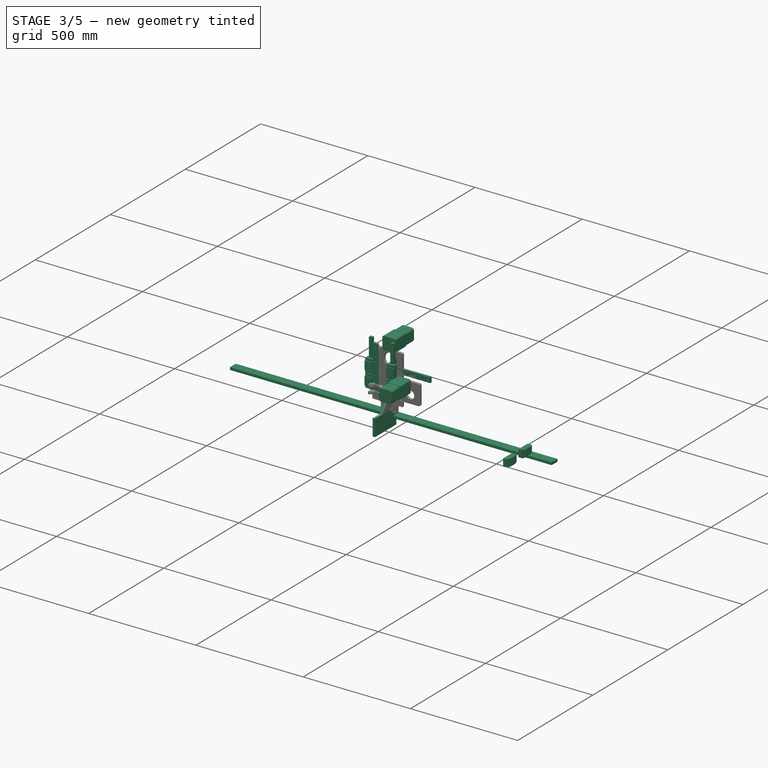
[diagram: stage 3 of 5 — iso view after this stage's code; geometry added in this stage tinted green]
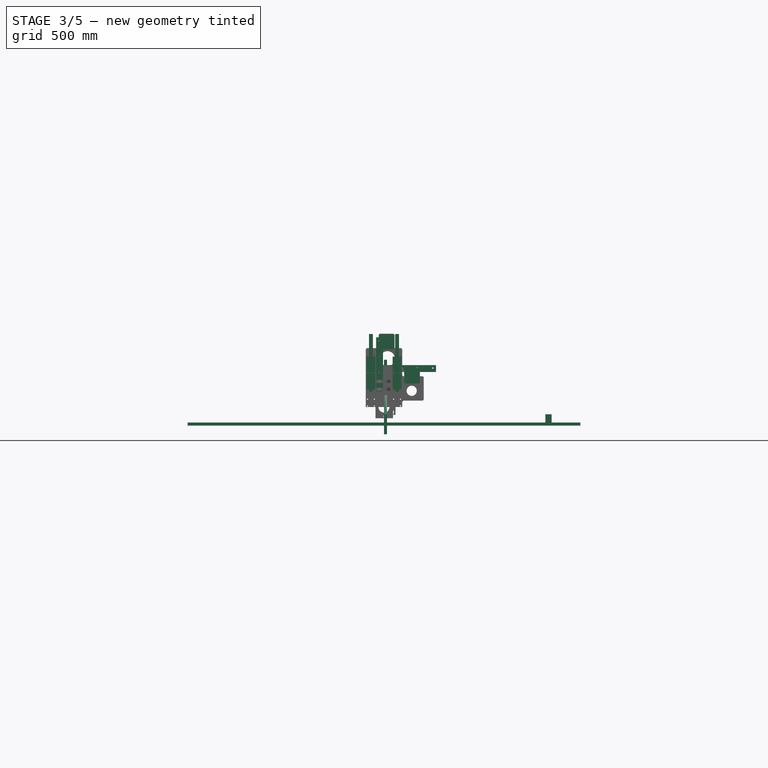
[diagram: stage 3 of 5 — front view after this stage's code; geometry added in this stage tinted green]
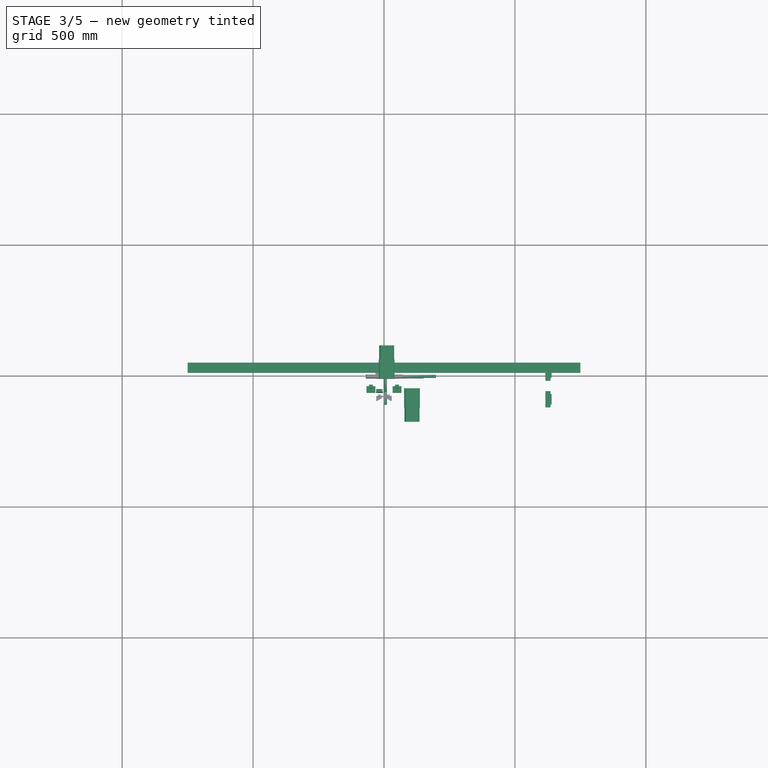
[diagram: stage 3 of 5 — top view after this stage's code; geometry added in this stage tinted green]
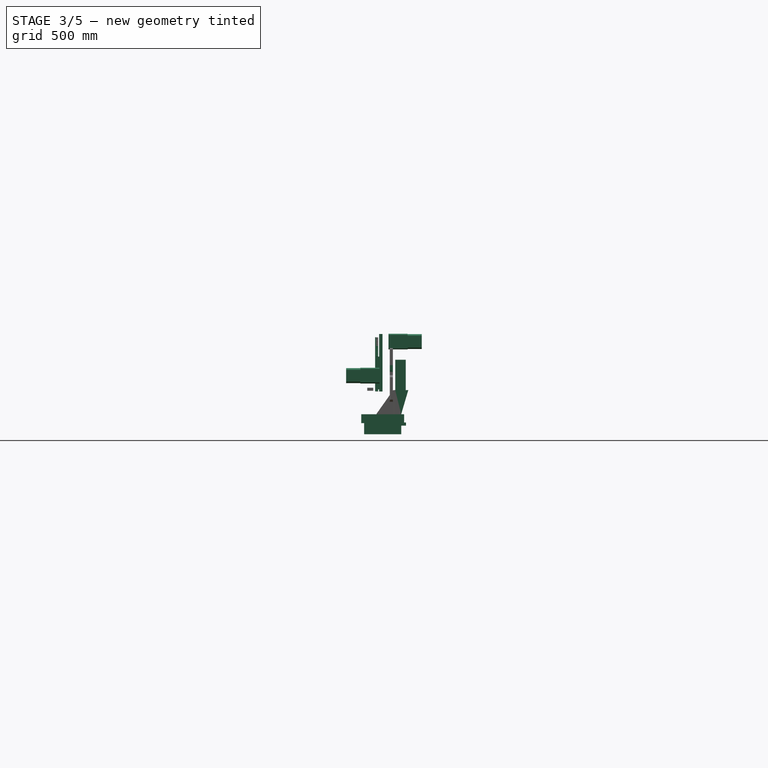
[diagram: stage 3 of 5 — right view after this stage's code; geometry added in this stage tinted green]
FEATURE [PartDesign::Body] Body009  label="Rack Y"
  Group = -> [Sketch012,Pad011]
  Origin = -> Origin011
  Placement = pos=(612,0,-94) rot=(0,0,1;0rad)
  Tip = -> Pad011
  expr: .Placement.Base.x = <<Core wall - outer>>.Placement.Base[0]
FEATURE [Part::FeaturePython] Clone005  label="Rack Y001"  # Draft clone (typed FeaturePython)
  AttacherType = Attacher::AttachEngine3D
  Fuse = false
  Objects = -> [Body009]
  Placement = pos=(0,0,0) rot=(1,0,0;0.463648rad)
  Scale = (1,1,1)
  expr: .Placement.Rotation.Angle = <<Sketch for nesting angle>>.Constraints.nesting_angle
FEATURE [Part::FeaturePython] Array006  label="Nested Y rack"  # Draft array (typed FeaturePython)
  AlwaysSyncPlacement = false
  Angle = 360
  ArrayType = 0
  Axis = (0,0,1)
  Base = -> Clone005
  Center = (0,0,0)
  Count = 1
  ExpandArray = false
  Fuse = false
  IntervalAxis = (0,0,0)
  IntervalX = (100,0,0)
  IntervalY = (0,100,0)
  IntervalZ = (0,0,100)
  NumberCircles = 3
  NumberPolar = 5
  NumberX = 1
  NumberY = 1
  NumberZ = 1
  Placement = pos=(-25,-128,-2.98023e-06) rot=(0,-1,0;1.5708rad)
  PlacementList = 1 placements: [(0,0,0)]
  RadialDistance = 50
  ScaleList = (1) [(1,1,1)]
  Symmetry = 1
  TangentialDistance = 25
FEATURE [Part::FeaturePython] Array007  label="Nested Y rack 2"  # Draft array (typed FeaturePython)
  AlwaysSyncPlacement = false
  Angle = 360
  ArrayType = 0
  Axis = (0,0,1)
  Base = -> Array006
  Center = (0,0,0)
  Count = 1
  ExpandArray = false
  Fuse = false
  IntervalAxis = (0,0,0)
  IntervalX = (100,0,0)
  IntervalY = (0,100,0)
  IntervalZ = (0,0,100)
  NumberCircles = 3
  NumberPolar = 5
  NumberX = 1
  NumberY = 1
  NumberZ = 1
  Placement = pos=(0,0,0) rot=(0,0,1;3.14159rad)
  PlacementList = 1 placements: [(-25,-128,-2.98023e-06)]
  RadialDistance = 50
  ScaleList = (1) [(1,1,1)]
  Symmetry = 1
  TangentialDistance = 25
FEATURE [App::Part] Part  label="Nested parts"
  Group = -> [Clone,Array,Array001,Clone001,Clone002,Clone003,Array003,Clone004,Array005,Array006,Clone005,Array007]
  Origin = -> Origin008
FEATURE [Sketcher::SketchObject] Sketch013
  FullyConstrained = true
  MapMode = 5
  Placement = pos=(0,0,0) rot=(1,0,0;1.5708rad)
  Support = -> [XZ_Plane012]
  expr: Constraints[7] = dd.ddRail_heigth
  expr: Constraints[8] = dd.ddRail_width
  sketch-geometry (4):
    g0: LineSegment StartX=0 StartY=7.5 StartZ=0 EndX=13 EndY=7.5 EndZ=0
    g1: LineSegment StartX=13 StartY=7.5 StartZ=0 EndX=13 EndY=-7.5 EndZ=0
    g2: LineSegment StartX=13 StartY=-7.5 StartZ=0 EndX=0 EndY=-7.5 EndZ=0
    g3: LineSegment StartX=0 StartY=-7.5 StartZ=0 EndX=0 EndY=7.5 EndZ=0
  constraints (11):
    c: Coincident(g0,g1)
    c: Coincident(g1,g2)
    c: Coincident(g2,g3)
    c: Coincident(g3,g0)
    c: Horizontal(g0)
    c: Horizontal(g2)
    c: Vertical(g3)
    c: Distance(g2) = 13
    c: Distance(g1) = 15
    c: PointOnObject(g0,g-2)
    c: Symmetric(g0,g1,g-1)
FEATURE [PartDesign::Pad] Pad012
  Direction = (0,-1,-2e-16)
  Length = 2620
  Length2 = 10
  Placement = pos=(0,0,0) rot=(1,0,0;1.5708rad)
  Profile = -> Sketch013
  ReferenceAxis = -> Sketch013 [N_Axis]
  Reversed = true
  Type = 0
  expr: Length = dd.ddY_rail_length
FEATURE [PartDesign::Body] Body012  label="Gantry bottom plate"
  Group = -> [Sketch015,Pad014]
  Origin = -> Origin014
  Placement = pos=(0,0,195) rot=(0,0,1;0rad)
  Tip = -> Pad014
  expr: .Placement.Base.z = dd.ddGantry_to_bed_clearance + dd.ddGantry_heigth
FEATURE [Sketcher::SketchObject] Sketch016
  FullyConstrained = true
  MapMode = 5
  Placement = pos=(0,0,0) rot=(0.57735,0.57735,0.57735;2.0944rad)
  Support = -> [YZ_Plane015]
  expr: Constraints[10] = dd.ddPhenolic_thickness
  expr: Constraints[11] = dd.ddGantry_depth - dd.ddPhenolic_thickness
  expr: Constraints[8] = -dd.ddGantry_heigth / 2 + dd.ddPhenolic_thickness / 2
  expr: Constraints[9] = -dd.ddGantry_heigth / 2 - dd.ddPhenolic_thickness / 2
  sketch-geometry (4):
    g0: LineSegment StartX=11.6 StartY=-59.2 StartZ=0 EndX=50.4 EndY=-59.2 EndZ=0
    g1: LineSegment StartX=50.4 StartY=-59.2 StartZ=0 EndX=50.4 EndY=-70.8 EndZ=0
    g2: LineSegment StartX=50.4 StartY=-70.8 StartZ=0 EndX=11.6 EndY=-70.8 EndZ=0
    g3: LineSegment StartX=11.6 StartY=-70.8 StartZ=0 EndX=11.6 EndY=-59.2 EndZ=0
  constraints (12):
    c: Coincident(g0,g1)
    c: Coincident(g1,g2)
    c: Coincident(g2,g3)
    c: Coincident(g3,g0)
    c: Horizontal(g0)
    c: Horizontal(g2)
    c: Vertical(g1)
    c: Vertical(g3)
    c: DistanceY(g-1,g0) = -59.2
    c: DistanceY(g-1,g1) = -70.8
    c: DistanceX(g-2,g0) = 11.6
    c: DistanceX(g-2,g0) = 50.4
FEATURE [PartDesign::Pad] Pad015
  Direction = (1,-2e-16,3e-16)
  Length = 1500
  Length2 = 10
  Midplane = true
  Placement = pos=(0,0,0) rot=(0.57735,0.57735,0.57735;2.0944rad)
  Profile = -> Sketch016
  ReferenceAxis = -> Sketch016 [N_Axis]
  Type = 0
  expr: Length = dd.ddX_rail_length + 20
FEATURE [PartDesign::Body] Body013  label="Gantry mid plate"
  Group = -> [Sketch016,Pad015]
  Origin = -> Origin015
  Placement = pos=(0,0,195) rot=(0,0,1;0rad)
  Tip = -> Pad015
  expr: .Placement.Base.z = dd.ddGantry_to_bed_clearance + dd.ddGantry_heigth
FEATURE [Sketcher::SketchObject] Sketch017
  FullyConstrained = false
  MapMode = 5
  Placement = pos=(0,0,0) rot=(0.57735,0.57735,0.57735;2.0944rad)
  Support = -> [YZ_Plane016]
  expr: Constraints[21] = <<Rail Y>>.Placement.Base[2] + dd.ddBearing_block_width / 2
  expr: Constraints[22] = <<Spindle>>.Placement.Base[1] + dd.ddY_block_to_spindle_offset
  expr: Constraints[23] = <<Spindle>>.Placement.Base[1] + dd.ddY_block_to_spindle_offset + dd.ddY_block_spacing + dd.ddBearing_block_length
  sketch-geometry (11):
    g0: LineSegment StartX=9.08412 StartY=180.306 StartZ=0 EndX=9.08412 EndY=64.4413 EndZ=0
    g1: LineSegment StartX=-63.4784 StartY=-27.5 StartZ=0 EndX=-109.55 EndY=-27.5 EndZ=0
    g2: LineSegment StartX=-109.55 StartY=-27.5 StartZ=0 EndX=-109.55 EndY=-104.165 EndZ=0
    g3: LineSegment StartX=-109.55 StartY=-104.165 StartZ=0 EndX=31.85 EndY=-104.165 EndZ=0
    g4: LineSegment StartX=49.3808 StartY=64.4413 StartZ=0 EndX=49.3808 EndY=180.306 EndZ=0
    g5: LineSegment StartX=49.3808 StartY=180.306 StartZ=0 EndX=9.08412 EndY=180.306 EndZ=0
    g6: LineSegment StartX=-63.4784 StartY=-27.5 StartZ=0 EndX=1.57454 EndY=64.4413 EndZ=0
    g7: LineSegment StartX=1.57454 StartY=64.4413 StartZ=0 EndX=9.08412 EndY=64.4413 EndZ=0
    g8: LineSegment StartX=49.3808 StartY=64.4413 StartZ=0 EndX=58.9127 EndY=64.4413 EndZ=0
    g9: LineSegment StartX=31.85 StartY=-104.165 StartZ=0 EndX=31.85 EndY=-27.5 EndZ=0
    g10: LineSegment StartX=31.85 StartY=-27.5 StartZ=0 EndX=58.9127 EndY=64.4413 EndZ=0
  constraints (25):
    c: Vertical(g0)
    c: Horizontal(g1)
    c: Coincident(g1,g2)
    c: Vertical(g2)
    c: Coincident(g2,g3)
    c: Horizontal(g3)
    c: Vertical(g4)
    c: Coincident(g4,g5)
    c: Coincident(g5,g0)
    c: Horizontal(g5)
    c: Horizontal(g4,g0)
    c: Coincident(g1,g6)
    c: Coincident(g6,g7)
    c: Coincident(g7,g0)
    c: Coincident(g4,g8)
    c: Horizontal(g7)
    c: Horizontal(g8)
    c: Coincident(g3,g9)
    c: Vertical(g9)
    c: Coincident(g9,g10)
    c: Coincident(g10,g8)
    c: DistanceY(g-1,g1) = -27.5
    c: DistanceX(g-2,g1) = -109.55
    c: DistanceX(g-2,g9) = 31.85
    c: Horizontal(g9,g1)
FEATURE [PartDesign::Pad] Pad016
  Direction = (1,-2e-16,3e-16)
  Length = 11.6
  Length2 = 10
  Placement = pos=(0,0,0) rot=(0.57735,0.57735,0.57735;2.0944rad)
  Profile = -> Sketch017
  ReferenceAxis = -> Sketch017 [N_Axis]
  Type = 0
  expr: Length = dd.ddPhenolic_thickness
FEATURE [PartDesign::Body] Body015  label="Bearing block"
  Group = -> [Sketch019,Pad017,Sketch020,Pocket]
  Origin = -> Origin017
  Tip = -> Pocket
FEATURE [Part::FeaturePython] Clone006  label="Bearing block Y - right1"  # Draft clone (typed FeaturePython)
  AttacherType = Attacher::AttachEngine3D
  Fuse = false
  Objects = -> [Body015]
  Placement = pos=(612,-89.85,-44.5) rot=(0,0,1;1.5708rad)
  Scale = (1,1,1)
  expr: .Placement.Base.x = <<Rail Y>>.Placement.Base[0]
  expr: .Placement.Base.y = <<Spindle>>.Placement.Base[1] + dd.ddBearing_block_length / 2 + dd.ddY_block_to_spindle_offset
  expr: .Placement.Base.z = <<Rail Y>>.Placement.Base[2]
FEATURE [App::Link] Link  label="Pinion"
  LinkedObject = -> <external cnc-friendy-rack-and-pinion-for-humphrey2.FCStd>#Fusion001
FEATURE [App::Link] Link001  label="Rack - position fixed"
  LinkedObject = -> <external cnc-friendy-rack-and-pinion-for-humphrey2.FCStd>#Array017
FEATURE [Part::FeaturePython] Clone008  label="Pinion - Z axis"  # Draft clone (typed FeaturePython)
  AttacherType = Attacher::AttachEngine3D
  Fuse = false
  Objects = -> [Link]
  Placement = pos=(10,-55,250) rot=(0,1,0;1.5708rad)
  Scale = (1,1,1)
  expr: .Placement.Base.y = <<Z axis plate>>.Placement.Base[1] + dd.ddPhenolic_thickness + 1
  expr: .Placement.Base.z = dd.ddGantry_to_bed_clearance + dd.ddGantry_heigth + dd.ddGearbox_width / 2 + dd.ddGearbox_to_gantry_clearance
FEATURE [Part::FeaturePython] Clone009  label="Rack - Z axis"  # Draft clone (typed FeaturePython)
  AttacherType = Attacher::AttachEngine3D
  Fuse = false
  Objects = -> [Link001]
  Placement = pos=(10,-56,258) rot=(0,1,0;1.5708rad)
  Scale = (1,1,1)
  expr: .Placement.Base.x = <<Pinion - Z axis>>.Placement.Base[0]
  expr: .Placement.Base.y = <<Z axis plate>>.Placement.Base[1] + dd.ddPhenolic_thickness
  expr: .Placement.Base.z = <<Pinion - Z axis>>.Placement.Base[2]
FEATURE [Sketcher::SketchObject] Sketch026
  FullyConstrained = true
  MapMode = 5
  Placement = pos=(0,-73,1e-16) rot=(1,0,0;1.5708rad)
  Support = -> [Pad022]
  sketch-geometry (5):
    g0: LineSegment StartX=-28.5 StartY=-28.5 StartZ=0 EndX=-28.5 EndY=28.5 EndZ=0
    g1: LineSegment StartX=-28.5 StartY=28.5 StartZ=0 EndX=28.5 EndY=28.5 EndZ=0
    g2: LineSegment StartX=28.5 StartY=28.5 StartZ=0 EndX=28.5 EndY=-28.5 EndZ=0
    g3: LineSegment StartX=28.5 StartY=-28.5 StartZ=0 EndX=-28.5 EndY=-28.5 EndZ=0
    g4: GeomPoint X=0 Y=0 Z=0
  constraints (12):
    c: Coincident(g0,g1)
    c: Coincident(g1,g2)
    c: Coincident(g2,g3)
    c: Coincident(g3,g0)
    c: Horizontal(g1)
    c: Horizontal(g3)
    c: Vertical(g0)
    c: Vertical(g2)
    c: Symmetric(g1,g0,g4)
    c: Coincident(g4,g-1)
    c: Distance(g2) = 57
    c: Equal(g1,g2)
FEATURE [PartDesign::Pad] Pad023
  BaseFeature = -> Pad022
  Direction = (0,-1,-2e-16)
  Length = 54
  Length2 = 10
  Placement = pos=(0,0,0) rot=(1,0,0;1.5708rad)
  Profile = -> Sketch026
  ReferenceAxis = -> Sketch026 [N_Axis]
  Type = 0
FEATURE [Part::FeaturePython] Clone012  label="Rack - X axis"  # Draft clone (typed FeaturePython)
  AttacherType = Attacher::AttachEngine3D
  Fuse = false
  Objects = -> [Link001]
  Placement = pos=(0,-11.6,120) rot=(1,0,0;3.14159rad)
  Scale = (1,1,1)
  expr: .Placement.Base.y = -dd.ddPhenolic_thickness
  expr: .Placement.Base.z = dd.ddGantry_to_bed_clearance + dd.ddGantry_heigth / 2 - 10
FEATURE [PartDesign::Chamfer] Chamfer
  Angle = 45
  Base = -> Pad023 [Edge18,Edge17,Edge22,Edge20]
  BaseFeature = -> Pad023
  ChamferType = 0
  FlipDirection = false
  Placement = pos=(0,0,0) rot=(1,0,0;1.5708rad)
  Size = 6
  Size2 = 1
  SupportTransform = false
  UseAllEdges = false
FEATURE [PartDesign::Chamfer] Chamfer001
  Angle = 45
  Base = -> Chamfer [Edge34,Edge29,Edge30,Edge32]
  BaseFeature = -> Chamfer
  ChamferType = 0
  FlipDirection = false
  Placement = pos=(0,0,0) rot=(1,0,0;1.5708rad)
  Size = 4
  Size2 = 1
  SupportTransform = false
  UseAllEdges = false
FEATURE [PartDesign::Body] Body020  label="Gearbox and nema23 motor"
  Group = -> [Sketch025,Pad022,Sketch026,Pad023,Chamfer,Chamfer001]
  Origin = -> Origin025
  Tip = -> Chamfer001
FEATURE [Part::FeaturePython] Clone010  label="Gearbox and nema23 motor - Z axis"  # Draft clone (typed FeaturePython)
  AttacherType = Attacher::AttachEngine3D
  Fuse = false
  Objects = -> [Body020]
  Placement = pos=(10,-16.4,250) rot=(0,0,1;3.14159rad)
  Scale = (1,1,1)
  expr: .Placement.Base.x = <<Pinion - Z axis>>.Placement.Base[0]
  expr: .Placement.Base.y = -dd.ddBearing_block_heigth + dd.ddPhenolic_thickness
  expr: .Placement.Base.z = <<Pinion - Z axis>>.Placement.Base[2]
FEATURE [Part::FeaturePython] Clone013  label="Gearbox and nema23 motor - X axis"  # Draft clone (typed FeaturePython)
  AttacherType = Attacher::AttachEngine3D
  Fuse = false
  Objects = -> [Body020]
  Placement = pos=(107,-51.2,120) rot=(0,0,1;0rad)
  Scale = (1,1,1)
  expr: .Placement.Base.x = <<Pinion - X axis>>.Placement.Base[0]
  expr: .Placement.Base.y = -dd.ddBearing_block_heigth - dd.ddPhenolic_thickness * 2
  expr: .Placement.Base.z = <<Pinion - X axis>>.Placement.Base[2]
FEATURE [Part::FeaturePython] Array008  label="Right4-move "  # Draft array (typed FeaturePython)
  Angle = 360
  ArrayType = 0
  Axis = (0,0,1)
  Base = -> Sketch001
  Center = (0,0,0)
  Fuse = false
  IntervalAxis = (0,0,0)
  IntervalX = (1,0,0)
  IntervalY = (0,1,0)
  IntervalZ = (0,0,1)
  NumberPolar = 1
  NumberX = 1
  NumberY = 1
  NumberZ = 1
  Placement = pos=(10.2222,0,0) rot=(0,0,1;0rad)
  expr: .Placement.Base.x = Spreadsheet.pinion_circumference / (360 / 32)
FEATURE [Part::FeaturePython] Array011  label="Right5-rotate"  # Draft array (typed FeaturePython)
  Angle = 360
  ArrayType = 0
  Axis = (0,0,1)
  Base = -> Array010
  Center = (0,0,0)
  Fuse = false
  IntervalAxis = (0,0,0)
  IntervalX = (1,0,0)
  IntervalY = (0,1,0)
  IntervalZ = (0,0,1)
  NumberPolar = 1
  NumberX = 1
  NumberY = 1
  NumberZ = 1
  Placement = pos=(0,0,0) rot=(0,1,0;0.698132rad)
FEATURE [Part::FeaturePython] Array012  label="Right6-move"  # Draft array (typed FeaturePython)
  Angle = 360
  ArrayType = 0
  Axis = (0,0,1)
  Base = -> Sketch001
  Center = (0,0,0)
  Fuse = false
  IntervalAxis = (0,0,0)
  IntervalX = (1,0,0)
  IntervalY = (0,1,0)
  IntervalZ = (0,0,1)
  NumberPolar = 1
  NumberX = 1
  NumberY = 1
  NumberZ = 1
  Placement = pos=(15.3333,0,0) rot=(0,1,0;0rad)
  expr: .Placement.Base.x = Spreadsheet.pinion_circumference / (360 / 48)
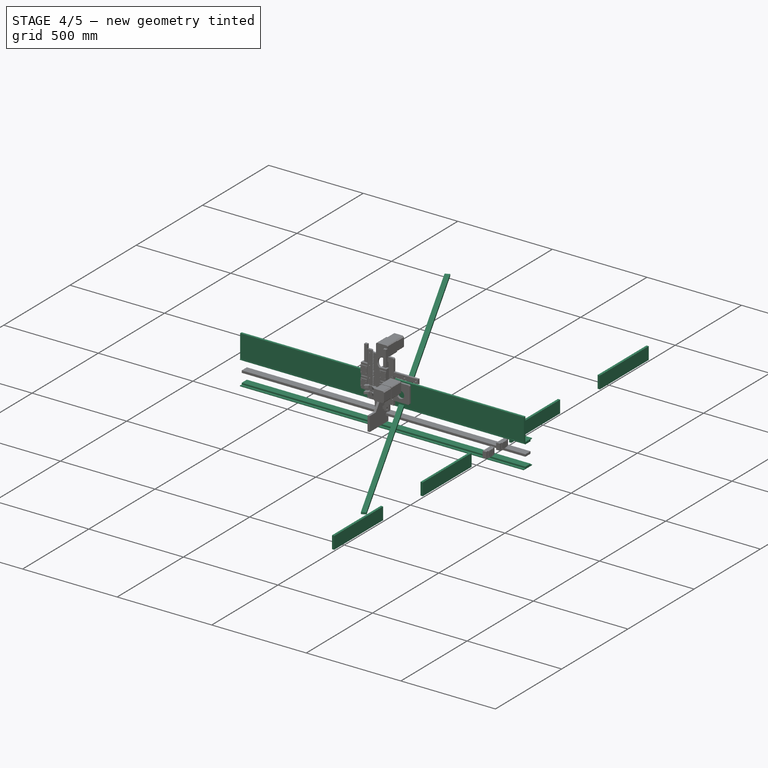
[diagram: stage 4 of 5 — iso view after this stage's code; geometry added in this stage tinted green]
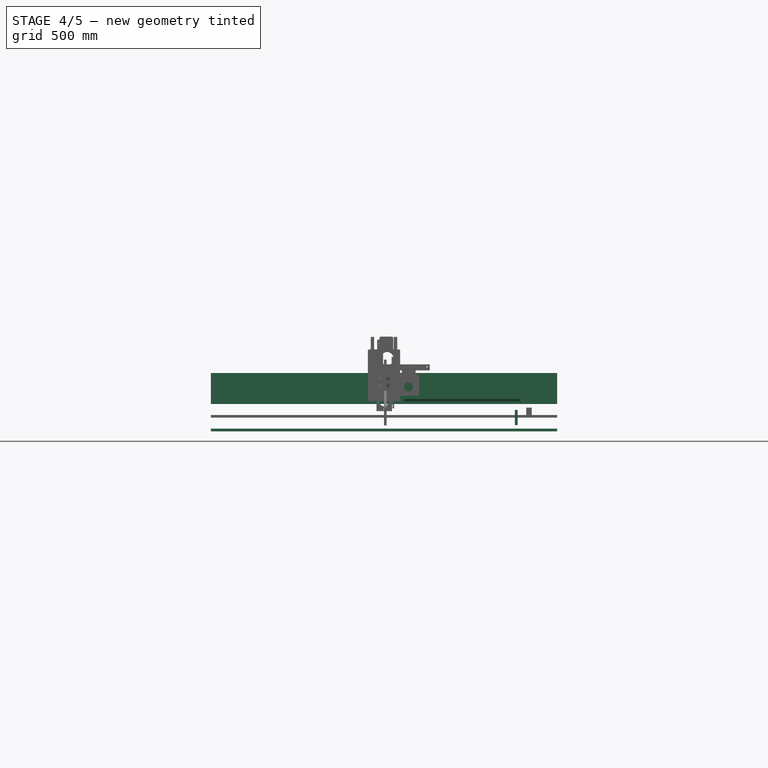
[diagram: stage 4 of 5 — front view after this stage's code; geometry added in this stage tinted green]
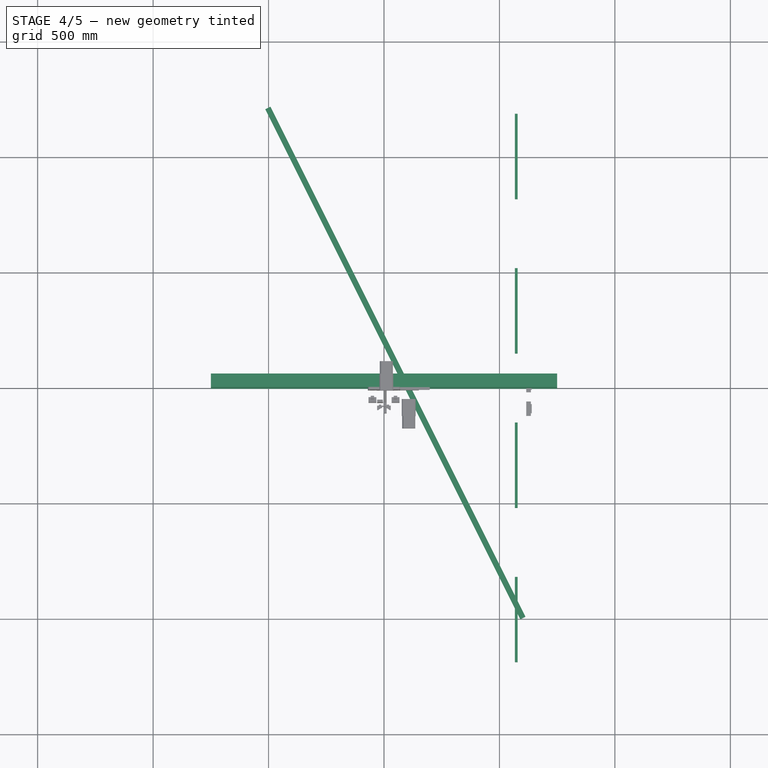
[diagram: stage 4 of 5 — top view after this stage's code; geometry added in this stage tinted green]
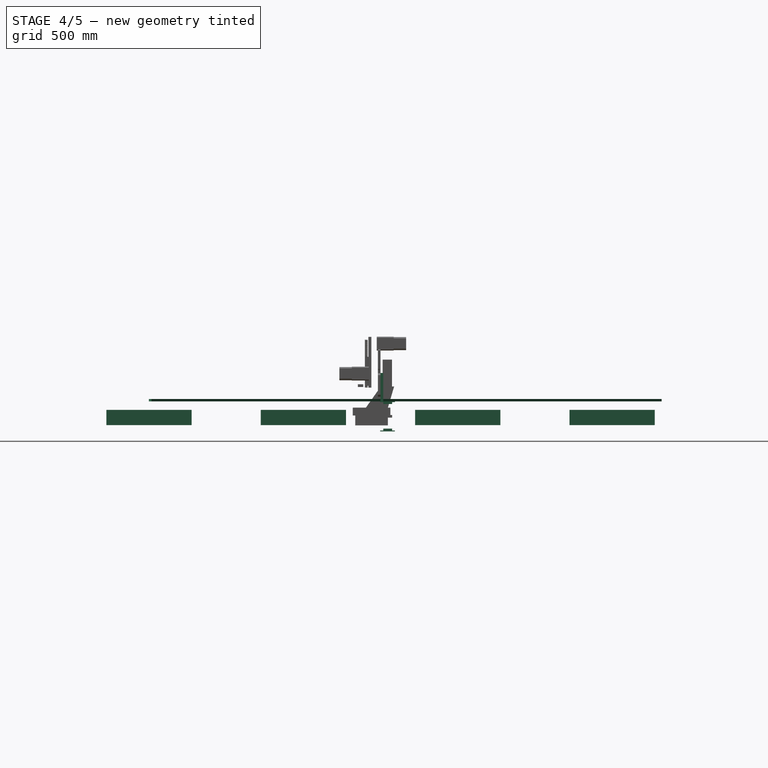
[diagram: stage 4 of 5 — right view after this stage's code; geometry added in this stage tinted green]
FEATURE [PartDesign::Body] Body003  label="Plywood bottom"
  Group = -> [Sketch005,Pad005]
  Origin = -> Origin003
  Placement = pos=(0,0,-103) rot=(0,0,1;0rad)
  Tip = -> Pad005
  expr: .Placement.Base.z = -dd.ddMDF_thickness - dd.ddCore_heigth - dd.ddPlywood_thickness
FEATURE [Sketcher::SketchObject] Sketch006
  FullyConstrained = true
  MapMode = 5
  Placement = pos=(0,0,0) rot=(0.57735,0.57735,0.57735;2.0944rad)
  Support = -> [YZ_Plane004]
  expr: Constraints[18] = -dd.ddCore_heigth + 3
  expr: Constraints[20] = -dd.ddCore_heigth
  expr: Constraints[21] = dd.ddBed_size_Y / -2
  expr: Constraints[22] = dd.ddBed_size_Y / 2
  expr: Constraints[23] = dd.ddY_rail_length + 40
  expr: Constraints[8] = -dd.ddRail_width
  sketch-geometry (8):
    g0: LineSegment StartX=-1249.44 StartY=-15 StartZ=0 EndX=-1220 EndY=-66 EndZ=0
    g1: LineSegment StartX=1307.62 StartY=-63 StartZ=0 EndX=1410.56 EndY=-15 EndZ=0
    g2: LineSegment StartX=1410.56 StartY=-15 StartZ=0 EndX=1410.56 EndY=0 EndZ=0
    g3: LineSegment StartX=1410.56 StartY=0 StartZ=0 EndX=-1249.44 EndY=0 EndZ=0
    g4: LineSegment StartX=-1249.44 StartY=0 StartZ=0 EndX=-1249.44 EndY=-15 EndZ=0
    g5: LineSegment StartX=-1220 StartY=-66 StartZ=0 EndX=1220 EndY=-66 EndZ=0
    g6: LineSegment StartX=1220 StartY=-66 StartZ=0 EndX=1220 EndY=-63 EndZ=0
    g7: LineSegment StartX=1220 StartY=-63 StartZ=0 EndX=1307.62 EndY=-63 EndZ=0
  constraints (25):
    c: Coincident(g1,g2)
    c: Vertical(g2)
    c: Horizontal(g3)
    c: Coincident(g3,g4)
    c: Coincident(g4,g0)
    c: Vertical(g4)
    c: PointOnObject(g3,g-1)
    c: Angle(g0,g-1) = 1.0472
    c: DistanceY(g-1,g0) = -15
    c: Angle(g-1,g1) = 0.436332
    c: Coincident(g3,g2)
    c: Coincident(g0,g5)
    c: Coincident(g5,g6)
    c: Coincident(g6,g7)
    c: Horizontal(g7)
    c: Coincident(g7,g1)
    c: Horizontal(g5)
    c: Vertical(g6)
    c: DistanceY(g-1,g6) = -63
    c: Horizontal(g1,g0)
    c: DistanceY(g-1,g5) = -66
    c: DistanceX(g-2,g0) = -1220
    c: DistanceX(g-2,g5) = 1220
    c: Distance(g3) = 2660
    c: DistanceX(g-2,g3) = -1249.44  'frontpos'
FEATURE [PartDesign::Pad] Pad006
  Direction = (1,-2e-16,3e-16)
  Length = 11.6
  Length2 = 10
  Placement = pos=(0,0,0) rot=(0.57735,0.57735,0.57735;2.0944rad)
  Profile = -> Sketch006
  ReferenceAxis = -> Sketch006 [N_Axis]
  Reversed = true
  Type = 0
  expr: Length = dd.ddPhenolic_thickness
FEATURE [PartDesign::Body] Body004  label="Core wall - outer"
  Group = -> [Sketch006,Pad006]
  Origin = -> Origin004
  Placement = pos=(612,0,-37) rot=(0,0,1;0rad)
  Tip = -> Pad006
  expr: .Placement.Base.x = dd.ddBed_size_X / 2 + dd.ddCore_to_plywood_edge_dist
  expr: .Placement.Base.z = -dd.ddMDF_thickness - dd.ddPlywood_thickness
FEATURE [Part::FeaturePython] Clone  label="Core wall - outer001"  # Draft clone (typed FeaturePython)
  AttacherType = Attacher::AttachEngine3D
  Fuse = false
  Objects = -> [Body004]
  Placement = pos=(0,0,0) rot=(-1,0,0;0.463648rad)
  Scale = (1,1,1)
  expr: .Placement.Rotation.Angle = <<Sketch for nesting angle>>.Constraints.nesting_angle
FEATURE [Sketcher::SketchObject] Sketch007  label="Sketch for nesting angle"
  FullyConstrained = true
  expr: Constraints[8] = dd.ddBed_size_Y
  expr: Constraints[9] = dd.ddBed_size_X
  sketch-geometry (5):
    g0: LineSegment StartX=-610 StartY=-1220 StartZ=0 EndX=610 EndY=-1220 EndZ=0
    g1: LineSegment StartX=610 StartY=-1220 StartZ=0 EndX=610 EndY=1220 EndZ=0
    g2: LineSegment StartX=610 StartY=1220 StartZ=0 EndX=-610 EndY=1220 EndZ=0
    g3: LineSegment StartX=-610 StartY=1220 StartZ=0 EndX=-610 EndY=-1220 EndZ=0
    g4: LineSegment StartX=-610 StartY=1220 StartZ=0 EndX=610 EndY=-1220 EndZ=0
  constraints (13):
    c: Coincident(g0,g1)
    c: Coincident(g1,g2)
    c: Coincident(g2,g3)
    c: Coincident(g3,g0)
    c: Horizontal(g0)
    c: Vertical(g1)
    c: Symmetric(g2,g1,g-2)
    c: Symmetric(g2,g0,g-1)
    c: Distance(g3) = 2440
    c: Distance(g2) = 1220
    c: Coincident(g2,g4)
    c: Coincident(g4,g0)
    c: Angle(g1,g4) = 0.463648  'nesting_angle'
FEATURE [Part::FeaturePython] Array  label="Nested - core wall outer"  # Draft array (typed FeaturePython)
  AlwaysSyncPlacement = false
  Angle = 360
  ArrayType = 0
  Axis = (0,0,1)
  Base = -> Clone
  Center = (0,0,0)
  Count = 1
  ExpandArray = false
  Fuse = false
  IntervalAxis = (0,0,0)
  IntervalX = (100,0,0)
  IntervalY = (0,100,0)
  IntervalZ = (0,0,100)
  NumberCircles = 3
  NumberPolar = 5
  NumberX = 1
  NumberY = 1
  NumberZ = 1
  Placement = pos=(40,-88,0) rot=(0,1,0;1.5708rad)
  PlacementList = 1 placements: [(0,0,0)]
  RadialDistance = 50
  ScaleList = (1) [(1,1,1)]
  Symmetry = 1
  TangentialDistance = 25
FEATURE [Part::FeaturePython] Array001  label="Nested - core wall outer2"  # Draft array (typed FeaturePython)
  AlwaysSyncPlacement = false
  Angle = 360
  ArrayType = 0
  Axis = (0,0,1)
  Base = -> Array
  Center = (0,0,0)
  Count = 1
  ExpandArray = false
  Fuse = false
  IntervalAxis = (0,0,0)
  IntervalX = (100,0,0)
  IntervalY = (0,100,0)
  IntervalZ = (0,0,100)
  NumberCircles = 3
  NumberPolar = 5
  NumberX = 1
  NumberY = 1
  NumberZ = 1
  Placement = pos=(0,0,0) rot=(0,0,1;3.14159rad)
  PlacementList = 1 placements: [(40,-88,0)]
  RadialDistance = 50
  ScaleList = (1) [(1,1,1)]
  Symmetry = 1
  TangentialDistance = 25
FEATURE [Sketcher::SketchObject] Sketch008
  FullyConstrained = false
  MapMode = 5
  Placement = pos=(0,0,0) rot=(1,0,0;1.5708rad)
  Support = -> [XZ_Plane005]
  expr: Constraints[19] = -dd.ddCore_heigth
  sketch-geometry (12):
    g0: LineSegment StartX=0 StartY=0 StartZ=0 EndX=0 EndY=-66 EndZ=0
    g1: LineSegment StartX=0 StartY=-66 StartZ=0 EndX=566.008 EndY=-66 EndZ=0
    g2: LineSegment StartX=566.008 StartY=-66 StartZ=0 EndX=566.008 EndY=-21.8566 EndZ=0
    g3: LineSegment StartX=580.848 StartY=-21.8566 StartZ=0 EndX=580.848 EndY=-66 EndZ=0
    g4: LineSegment StartX=580.848 StartY=-66 StartZ=0 EndX=599.786 EndY=-66 EndZ=0
    g5: LineSegment StartX=599.786 StartY=-66 StartZ=0 EndX=599.786 EndY=-52.1636 EndZ=0
    g6: LineSegment StartX=599.786 StartY=-52.1636 StartZ=0 EndX=611.538 EndY=-52.1636 EndZ=0
    g7: LineSegment StartX=611.538 StartY=-52.1636 StartZ=0 EndX=611.538 EndY=-27.1139 EndZ=0
    g8: LineSegment StartX=611.538 StartY=-27.1139 StartZ=0 EndX=599.786 EndY=-27.1139 EndZ=0
    g9: LineSegment StartX=599.786 StartY=-27.1139 StartZ=0 EndX=599.786 EndY=0 EndZ=0
    g10: LineSegment StartX=599.786 StartY=0 StartZ=0 EndX=0 EndY=0 EndZ=0
    g11: LineSegment StartX=566.008 StartY=-21.8566 StartZ=0 EndX=580.848 EndY=-21.8566 EndZ=0
  constraints (28):
    c: PointOnObject(g0,g-2)
    c: Coincident(g0,g1)
    c: Horizontal(g1)
    c: Coincident(g1,g2)
    c: Vertical(g2)
    c: Vertical(g3)
    c: Coincident(g3,g4)
    c: Horizontal(g4)
    c: Coincident(g4,g5)
    c: Vertical(g5)
    c: Coincident(g5,g6)
    c: Coincident(g6,g7)
    c: Coincident(g7,g8)
    c: Coincident(g8,g9)
    c: Vertical(g9)
    c: Coincident(g9,g10)
    c: Coincident(g10,g0)
    c: Horizontal(g10)
    c: Coincident(g0,g-1)
    c: DistanceY(g-1,g0) = -66
    c: Horizontal(g8)
    c: Vertical(g7)
    c: Horizontal(g6)
    c: Vertical(g5,g8)
    c: Coincident(g11,g3)
    c: Coincident(g11,g2)
    c: Horizontal(g11)
    c: Horizontal(g1,g3)
FEATURE [PartDesign::Pad] Pad007
  Direction = (0,-1,-2e-16)
  Length = 11.6
  Length2 = 10
  Midplane = true
  Placement = pos=(0,0,0) rot=(1,0,0;1.5708rad)
  Profile = -> Sketch008
  ReferenceAxis = -> Sketch008 [N_Axis]
  Type = 0
  expr: Length = dd.ddPhenolic_thickness
FEATURE [PartDesign::Body] Body005  label="Cross wall - half"
  Group = -> [Sketch008,Pad007]
  Origin = -> Origin005
  Placement = pos=(0,0,-37) rot=(0,0,1;0rad)
  Tip = -> Pad007
  expr: .Placement.Base.z = -dd.ddMDF_thickness - dd.ddPlywood_thickness
FEATURE [Part::Mirroring] Part__Mirroring  label="Cross wall - half (Mirror #1)"
  Base = (0,0,0)
  Normal = (1,0,0)
  Source = -> Body005
FEATURE [Part::MultiFuse] Fusion  label="Cross wall"
  Refine = true
  Shapes = -> [Part__Mirroring,Body005]
FEATURE [Part::FeaturePython] Array002  label="Cross walls"  # Draft array (typed FeaturePython)
  AlwaysSyncPlacement = false
  Angle = 360
  ArrayType = 0
  Axis = (0,0,1)
  Base = -> Fusion
  Center = (0,0,0)
  Count = 8
  ExpandArray = false
  Fuse = false
  IntervalAxis = (0,0,0)
  IntervalX = (100,0,0)
  IntervalY = (0,334.286,0)
  IntervalZ = (0,0,100)
  NumberCircles = 3
  NumberPolar = 5
  NumberX = 1
  NumberY = 8
  NumberZ = 1
  Placement = pos=(0,-1170,0) rot=(0,0,1;0rad)
  PlacementList = 8 placements: arithmetic series from (0,0,0) step (0,334.286,0) to (0,2340,0)
  RadialDistance = 50
  ScaleList = (8) [(1,1,1),(1,1,1),(1,1,1),(1,1,1),(1,1,1),(1,1,1),(1,1,1),(1,1,1)]
  Symmetry = 1
  TangentialDistance = 25
  expr: .IntervalY.y = (dd.ddBed_size_Y - dd.ddCross_wall_inset * 2) / (dd.ddCross_wall_count - 1)
  expr: .Placement.Base.y = (dd.ddBed_size_Y - dd.ddCross_wall_inset * 2) / -2
  expr: NumberY = dd.ddCross_wall_count
FEATURE [Sketcher::SketchObject] Sketch009
  FullyConstrained = true
  MapMode = 5
  Placement = pos=(0,0,0) rot=(1,0,0;1.5708rad)
  Support = -> [XZ_Plane006]
  expr: Constraints[8] = dd.ddX_rail_length + 20
  expr: Constraints[9] = dd.ddGantry_heigth - (dd.ddPhenolic_thickness - dd.ddAlignment_pocket_depth) * 2
  sketch-geometry (4):
    g0: LineSegment StartX=-750 StartY=122.8 StartZ=0 EndX=750 EndY=122.8 EndZ=0
    g1: LineSegment StartX=750 StartY=122.8 StartZ=0 EndX=750 EndY=0 EndZ=0
    g2: LineSegment StartX=750 StartY=0 StartZ=0 EndX=-750 EndY=0 EndZ=0
    g3: LineSegment StartX=-750 StartY=0 StartZ=0 EndX=-750 EndY=122.8 EndZ=0
  constraints (11):
    c: Coincident(g0,g1)
    c: Coincident(g1,g2)
    c: Coincident(g2,g3)
    c: Coincident(g3,g0)
    c: Horizontal(g2)
    c: Vertical(g1)
    c: Vertical(g3)
    c: Symmetric(g0,g0,g-2)
    c: Distance(g0) = 1500
    c: Distance(g3) = 122.8
    c: PointOnObject(g2,g-1)
FEATURE [PartDesign::Pad] Pad008
  Direction = (0,-1,-2e-16)
  Length = 11.6
  Length2 = 10
  Placement = pos=(0,0,0) rot=(1,0,0;1.5708rad)
  Profile = -> Sketch009
  ReferenceAxis = -> Sketch009 [N_Axis]
  Reversed = true
  Type = 0
  expr: Length = dd.ddPhenolic_thickness
FEATURE [PartDesign::Body] Body006  label="Gantry front plate"
  Group = -> [Sketch009,Pad008]
  Origin = -> Origin006
  Placement = pos=(0,0,68.6) rot=(0,0,1;0rad)
  Tip = -> Pad008
  expr: .Placement.Base.z = dd.ddGantry_to_bed_clearance + dd.ddPhenolic_thickness - dd.ddAlignment_pocket_depth
FEATURE [Sketcher::SketchObject] Sketch010
  FullyConstrained = true
  MapMode = 5
  Placement = pos=(0,0,0) rot=(0.57735,0.57735,0.57735;2.0944rad)
  Support = -> [YZ_Plane007]
  expr: Constraints[10] = -dd.ddPhenolic_thickness
  expr: Constraints[11] = -dd.ddPhenolic_thickness + dd.ddAlignment_pocket_depth
  expr: Constraints[12] = -dd.ddRail_alignment_stickout
  expr: Constraints[13] = dd.ddPhenolic_thickness
  expr: Constraints[14] = dd.ddGantry_depth
  expr: Constraints[23] = dd.ddGantry_depth - dd.ddPhenolic_thickness
  sketch-geometry (8):
    g0: LineSegment StartX=-2 StartY=0 StartZ=0 EndX=62 EndY=0 EndZ=0
    g1: LineSegment StartX=50.4 StartY=-11.6 StartZ=0 EndX=11.6 EndY=-11.6 EndZ=0
    g2: LineSegment StartX=11.6 StartY=-11.6 StartZ=0 EndX=11.6 EndY=-3.6 EndZ=0
    g3: LineSegment StartX=11.6 StartY=-3.6 StartZ=0 EndX=-2 EndY=-3.6 EndZ=0
    g4: LineSegment StartX=-2 StartY=-3.6 StartZ=0 EndX=-2 EndY=0 EndZ=0
    g5: LineSegment StartX=50.4 StartY=-11.6 StartZ=0 EndX=50.4 EndY=-3.6 EndZ=0
    g6: LineSegment StartX=50.4 StartY=-3.6 StartZ=0 EndX=62 EndY=-3.6 EndZ=0
    g7: LineSegment StartX=62 StartY=-3.6 StartZ=0 EndX=62 EndY=0 EndZ=0
  constraints (24):
    c: PointOnObject(g0,g-1)
    c: Horizontal(g0)
    c: Horizontal(g1)
    c: Coincident(g1,g2)
    c: Coincident(g2,g3)
    c: Horizontal(g3)
    c: Coincident(g3,g4)
    c: Coincident(g4,g0)
    c: Vertical(g4)
    c: Vertical(g2)
    c: DistanceY(g-1,g1) = -11.6
    c: DistanceY(g-1,g3) = -3.6
    c: DistanceX(g-2,g0) = -2
    c: DistanceX(g-2,g2) = 11.6
    c: DistanceX(g-2,g0) = 62
    c: Coincident(g1,g5)
    c: Vertical(g5)
    c: Coincident(g5,g6)
    c: Coincident(g6,g7)
    c: Coincident(g7,g0)
    c: Vertical(g7)
    c: Horizontal(g6)
    c: Horizontal(g5,g2)
    c: DistanceX(g-2,g5) = 50.4
FEATURE [PartDesign::Pad] Pad009
  Direction = (1,-2e-16,3e-16)
  Length = 1500
  Length2 = 10
  Midplane = true
  Placement = pos=(0,0,0) rot=(0.57735,0.57735,0.57735;2.0944rad)
  Profile = -> Sketch010
  ReferenceAxis = -> Sketch010 [N_Axis]
  Type = 0
  expr: Length = dd.ddX_rail_length + 20
FEATURE [PartDesign::Body] Body007  label="Gantry top plate"
  Group = -> [Sketch010,Pad009]
  Origin = -> Origin007
  Placement = pos=(0,0,195) rot=(0,0,1;0rad)
  Tip = -> Pad009
  expr: .Placement.Base.z = dd.ddGantry_to_bed_clearance + dd.ddGantry_heigth
FEATURE [Part::FeaturePython] Clone001  label="Gantry front plate001"  # Draft clone (typed FeaturePython)
  AttacherType = Attacher::AttachEngine3D
  Fuse = false
  Objects = -> [Body006]
  Placement = pos=(-607,-437,11.6) rot=(0.57735,-0.57735,0.57735;4.18879rad)
  Scale = (1,1,1)
  expr: .Placement.Base.x = dd.ddBed_size_X / -2 + dd.ddNesting_distance_to_edge
  expr: .Placement.Base.z = dd.ddPhenolic_thickness
FEATURE [Part::FeaturePython] Clone002  label="Gantry top plate001"  # Draft clone (typed FeaturePython)
  AttacherType = Attacher::AttachEngine3D
  Fuse = false
  Objects = -> [Body007]
  Placement = pos=(-475.7,-450,7e-15) rot=(0.707107,0.707107,0;3.14159rad)
  Scale = (1,1,1)
  expr: .Placement.Base.x = <<Gantry front plate001>>.Placement.Base[0] + <<Gantry front plate001>>.Shape.BoundBox.XLength + dd.ddRail_alignment_stickout + dd.ddNesting_clearance
FEATURE [Part::FeaturePython] Clone003  label="Cross wall001"  # Draft clone (typed FeaturePython)
  AttacherType = Attacher::AttachEngine3D
  Fuse = false
  Objects = -> [Fusion]
  Placement = pos=(-444.2,-605.462,5.8) rot=(-0.57735,0.57735,0.57735;4.18879rad)
  Scale = (1,1,1)
  expr: .Placement.Base.x = <<Gantry top plate001>>.Placement.Base[0] + <<Gantry top plate001>>.Shape.BoundBox.XLength + dd.ddNesting_clearance - dd.ddMDF_thickness - dd.ddPlywood_thickness - dd.ddRail_alignment_stickout
  expr: .Placement.Base.y = dd.ddBed_size_Y / -2 + <<Cross wall>>.Shape.BoundBox.XLength / 2 + dd.ddNesting_distance_to_edge
  expr: .Placement.Base.z = dd.ddPhenolic_thickness / 2
FEATURE [Part::FeaturePython] Array003  label="Array - nested cross walls"  # Draft array (typed FeaturePython)
  AlwaysSyncPlacement = false
  Angle = 360
  ArrayType = 0
  Axis = (0,0,1)
  Base = -> Clone003
  Center = (0,0,0)
  Count = 4
  ExpandArray = false
  Fuse = false
  IntervalAxis = (0,0,0)
  IntervalX = (72.5,0,0)
  IntervalY = (0,100,0)
  IntervalZ = (0,0,100)
  NumberCircles = 3
  NumberPolar = 5
  NumberX = 4
  NumberY = 1
  NumberZ = 1
  PlacementList = 4 placements: arithmetic series from (-444.2,-605.462,5.8) step (72.5,0,0) to (-226.7,-605.462,5.8)
  RadialDistance = 50
  ScaleList = (4) [(1,1,1),(1,1,1),(1,1,1),(1,1,1)]
  Symmetry = 1
  TangentialDistance = 25
  expr: .IntervalX.x = dd.ddCore_heigth + dd.ddNesting_clearance
  expr: NumberX = dd.ddCross_wall_count / 2
FEATURE [Sketcher::SketchObject] Sketch011
  FullyConstrained = true
  MapMode = 5
  Placement = pos=(0,0,0) rot=(0.57735,0.57735,0.57735;2.0944rad)
  Support = -> [YZ_Plane009]
  expr: Constraints[8] = -dd.ddCore_heigth
  expr: Constraints[9] = <<Cross walls>>.IntervalY[1] + dd.ddPhenolic_thickness * 3
  sketch-geometry (4):
    g0: LineSegment StartX=-184.543 StartY=0 StartZ=0 EndX=184.543 EndY=0 EndZ=0
    g1: LineSegment StartX=184.543 StartY=0 StartZ=0 EndX=184.543 EndY=-66 EndZ=0
    g2: LineSegment StartX=184.543 StartY=-66 StartZ=0 EndX=-184.543 EndY=-66 EndZ=0
    g3: LineSegment StartX=-184.543 StartY=-66 StartZ=0 EndX=-184.543 EndY=0 EndZ=0
  constraints (11):
    c: Coincident(g0,g1)
    c: Coincident(g1,g2)
    c: Coincident(g2,g3)
    c: Coincident(g3,g0)
    c: Horizontal(g0)
    c: Vertical(g1)
    c: Vertical(g3)
    c: PointOnObject(g0,g-1)
    c: DistanceY(g-1,g1) = -66
    c: Distance(g0) = 369.086
    c: Symmetric(g2,g1,g-2)
FEATURE [PartDesign::Pad] Pad010
  Direction = (1,-2e-16,3e-16)
  Length = 11.6
  Length2 = 10
  Placement = pos=(0,0,0) rot=(0.57735,0.57735,0.57735;2.0944rad)
  Profile = -> Sketch011
  ReferenceAxis = -> Sketch011 [N_Axis]
  Type = 0
  expr: Length = dd.ddPhenolic_thickness
FEATURE [PartDesign::Body] Body008  label="Inner cross wall piece"
  Group = -> [Sketch011,Pad010]
  Origin = -> Origin009
  Placement = pos=(567,0,-37) rot=(0,0,1;0rad)
  Tip = -> Pad010
  expr: .Placement.Base.x = dd.ddBed_size_X / 2 - dd.ddCore_wall_spacing + dd.ddCore_to_plywood_edge_dist
  expr: .Placement.Base.z = -dd.ddMDF_thickness - dd.ddPlywood_thickness
FEATURE [App::Part] Part001  label="Wood sheets"
  Group = -> [Body001,Body002,Body003]
  Origin = -> Origin010
FEATURE [Part::FeaturePython] Array004  label="Inner cross wall pieces"  # Draft array (typed FeaturePython)
  AlwaysSyncPlacement = false
  Angle = 360
  ArrayType = 0
  Axis = (0,0,1)
  Base = -> Body008
  Center = (0,0,0)
  Count = 4
  ExpandArray = false
  Fuse = false
  IntervalAxis = (0,0,0)
  IntervalX = (100,0,0)
  IntervalY = (0,668.571,0)
  IntervalZ = (0,0,100)
  NumberCircles = 3
  NumberPolar = 5
  NumberX = 1
  NumberY = 4
  NumberZ = 1
  Placement = pos=(0,-1002.86,0) rot=(0,0,1;0rad)
  PlacementList = 4 placements: arithmetic series from (567,0,-37) step (0,668.571,0) to (567,2005.71,-37)
  RadialDistance = 50
  ScaleList = (4) [(1,1,1),(1,1,1),(1,1,1),(1,1,1)]
  Symmetry = 1
  TangentialDistance = 25
  expr: .IntervalY.y = <<Cross walls>>.IntervalY[1] * 2
  expr: .Placement.Base.y = -IntervalY[1] * 1.5
  expr: NumberY = dd.ddCross_wall_count / 2
FEATURE [Part::FeaturePython] Clone004  label="Inner cross wall piece001"  # Draft clone (typed FeaturePython)
  AttacherType = Attacher::AttachEngine3D
  Fuse = false
  Objects = -> [Body008]
  Placement = pos=(-85,-1008,0) rot=(0,-1,0;1.5708rad)
  Scale = (1,1,1)
FEATURE [Part::FeaturePython] Array005  # Draft array (typed FeaturePython)
  AlwaysSyncPlacement = false
  Angle = 360
  ArrayType = 0
  Axis = (0,0,1)
  Base = -> Clone004
  Center = (0,0,0)
  Count = 4
  ExpandArray = false
  Fuse = false
  IntervalAxis = (0,0,0)
  IntervalX = (72.5,0,0)
  IntervalY = (0,100,0)
  IntervalZ = (0,0,100)
  NumberCircles = 3
  NumberPolar = 5
  NumberX = 4
  NumberY = 1
  NumberZ = 1
  PlacementList = 4 placements: arithmetic series from (-85,-1008,0) step (72.5,0,0) to (132.5,-1008,0)
  RadialDistance = 50
  ScaleList = (4) [(1,1,1),(1,1,1),(1,1,1),(1,1,1)]
  Symmetry = 1
  TangentialDistance = 25
  expr: .IntervalX.x = dd.ddCore_heigth + dd.ddNesting_clearance
  expr: NumberX = <<Inner cross wall pieces>>.Count
FEATURE [Part::Mirroring] Part__Mirroring001  label="Core wall - outer (Mirror #2)"
  Base = (0,0,0)
  Normal = (1,0,0)
  Source = -> Body004
FEATURE [Part::Mirroring] Part__Mirroring002  label="Inner cross wall pieces (Mirror #3)"
  Base = (0,0,0)
  Normal = (1,0,0)
  Source = -> Array004
FEATURE [Sketcher::SketchObject] Sketch012
  FullyConstrained = false
  MapMode = 5
  Placement = pos=(0,0,0) rot=(0.57735,0.57735,0.57735;2.0944rad)
  Support = -> [YZ_Plane011]
  expr: Constraints[10] = dd.ddBed_size_Y + 15 * 2
  sketch-geometry (4):
    g0: LineSegment StartX=-1205.46 StartY=0 StartZ=0 EndX=1264.54 EndY=0 EndZ=0
    g1: LineSegment StartX=1264.54 StartY=0 StartZ=0 EndX=1264.54 EndY=25 EndZ=0
    g2: LineSegment StartX=1264.54 StartY=25 StartZ=0 EndX=-1205.46 EndY=25 EndZ=0
    g3: LineSegment StartX=-1205.46 StartY=25 StartZ=0 EndX=-1205.46 EndY=0 EndZ=0
  constraints (11):
    c: Coincident(g0,g1)
    c: Coincident(g1,g2)
    c: Coincident(g2,g3)
    c: Coincident(g3,g0)
    c: Horizontal(g0)
    c: Horizontal(g2)
    c: Vertical(g1)
    c: Vertical(g3)
    c: PointOnObject(g0,g-1)
    c: DistanceY(g-1,g2) = 25
    c: Distance(g2) = 2470
FEATURE [PartDesign::Pad] Pad011
  Direction = (1,-2e-16,3e-16)
  Length = 10
  Length2 = 10
  Placement = pos=(0,0,0) rot=(0.57735,0.57735,0.57735;2.0944rad)
  Profile = -> Sketch012
  ReferenceAxis = -> Sketch012 [N_Axis]
  Type = 0
FEATURE [PartDesign::Body] Body010  label="Rail Y"
  Group = -> [Sketch013,Pad012]
  Origin = -> Origin012
  Placement = pos=(612,-1229.44,-44.5) rot=(0,0,1;0rad)
  Tip = -> Pad012
  expr: .Placement.Base.x = dd.ddBed_size_X / 2 + dd.ddCore_to_plywood_edge_dist
  expr: .Placement.Base.y = Sketch006.Constraints.frontpos + 20mm
  expr: .Placement.Base.z = -dd.ddMDF_thickness - dd.ddPlywood_thickness - dd.ddRail_width / 2
FEATURE [Sketcher::SketchObject] Sketch014
  FullyConstrained = true
  MapMode = 5
  Placement = pos=(0,0,0) rot=(1,0,0;1.5708rad)
  Support = -> [XZ_Plane013]
  expr: Constraints[8] = dd.ddX_rail_length + 20
  expr: Constraints[9] = dd.ddGantry_heigth - (dd.ddPhenolic_thickness - dd.ddAlignment_pocket_depth) * 2
  sketch-geometry (4):
    g0: LineSegment StartX=-750 StartY=122.8 StartZ=0 EndX=750 EndY=122.8 EndZ=0
    g1: LineSegment StartX=750 StartY=122.8 StartZ=0 EndX=750 EndY=0 EndZ=0
    g2: LineSegment StartX=750 StartY=0 StartZ=0 EndX=-750 EndY=0 EndZ=0
    g3: LineSegment StartX=-750 StartY=0 StartZ=0 EndX=-750 EndY=122.8 EndZ=0
  constraints (11):
    c: Coincident(g0,g1)
    c: Coincident(g1,g2)
    c: Coincident(g2,g3)
    c: Coincident(g3,g0)
    c: Horizontal(g2)
    c: Vertical(g1)
    c: Vertical(g3)
    c: Symmetric(g0,g0,g-2)
    c: Distance(g0) = 1500
    c: Distance(g3) = 122.8
    c: PointOnObject(g2,g-1)
FEATURE [PartDesign::Pad] Pad013
  Direction = (0,-1,-2e-16)
  Length = 11.6
  Length2 = 10
  Placement = pos=(0,0,0) rot=(1,0,0;1.5708rad)
  Profile = -> Sketch014
  ReferenceAxis = -> Sketch014 [N_Axis]
  Reversed = true
  Type = 0
  expr: Length = dd.ddPhenolic_thickness
FEATURE [PartDesign::Body] Body011  label="Gantry back plate"
  Group = -> [Sketch014,Pad013]
  Origin = -> Origin013
  Placement = pos=(0,50.4,68.6) rot=(0,0,1;0rad)
  Tip = -> Pad013
  expr: .Placement.Base.y = dd.ddGantry_depth - dd.ddPhenolic_thickness
  expr: .Placement.Base.z = dd.ddGantry_to_bed_clearance + dd.ddPhenolic_thickness - dd.ddAlignment_pocket_depth
FEATURE [Sketcher::SketchObject] Sketch015
  FullyConstrained = true
  MapMode = 5
  Placement = pos=(0,0,0) rot=(0.57735,0.57735,0.57735;2.0944rad)
  Support = -> [YZ_Plane014]
  expr: Constraints[10] = -dd.ddGantry_heigth + dd.ddPhenolic_thickness - dd.ddAlignment_pocket_depth
  expr: Constraints[11] = -dd.ddRail_alignment_stickout
  expr: Constraints[12] = dd.ddPhenolic_thickness
  expr: Constraints[13] = dd.ddGantry_depth
  expr: Constraints[22] = dd.ddGantry_depth - dd.ddPhenolic_thickness
  expr: Constraints[23] = -dd.ddGantry_heigth
  expr: Constraints[9] = -dd.ddGantry_heigth + dd.ddPhenolic_thickness
  sketch-geometry (8):
    g0: LineSegment StartX=-2 StartY=-130 StartZ=0 EndX=62 EndY=-130 EndZ=0
    g1: LineSegment StartX=50.4 StartY=-118.4 StartZ=0 EndX=11.6 EndY=-118.4 EndZ=0
    g2: LineSegment StartX=11.6 StartY=-118.4 StartZ=0 EndX=11.6 EndY=-126.4 EndZ=0
    g3: LineSegment StartX=11.6 StartY=-126.4 StartZ=0 EndX=-2 EndY=-126.4 EndZ=0
    g4: LineSegment StartX=-2 StartY=-126.4 StartZ=0 EndX=-2 EndY=-130 EndZ=0
    g5: LineSegment StartX=50.4 StartY=-118.4 StartZ=0 EndX=50.4 EndY=-126.4 EndZ=0
    g6: LineSegment StartX=50.4 StartY=-126.4 StartZ=0 EndX=62 EndY=-126.4 EndZ=0
    g7: LineSegment StartX=62 StartY=-126.4 StartZ=0 EndX=62 EndY=-130 EndZ=0
  constraints (24):
    c: Horizontal(g0)
    c: Horizontal(g1)
    c: Coincident(g1,g2)
    c: Coincident(g2,g3)
    c: Horizontal(g3)
    c: Coincident(g3,g4)
    c: Coincident(g4,g0)
    c: Vertical(g4)
    c: Vertical(g2)
    c: DistanceY(g-1,g1) = -118.4
    c: DistanceY(g-1,g3) = -126.4
    c: DistanceX(g-2,g0) = -2
    c: DistanceX(g-2,g2) = 11.6
    c: DistanceX(g-2,g0) = 62
    c: Coincident(g1,g5)
    c: Vertical(g5)
    c: Coincident(g5,g6)
    c: Coincident(g6,g7)
    c: Coincident(g7,g0)
    c: Vertical(g7)
    c: Horizontal(g6)
    c: Horizontal(g5,g2)
    c: DistanceX(g-2,g5) = 50.4
    c: DistanceY(g-1,g0) = -130
FEATURE [PartDesign::Pad] Pad014
  Direction = (1,-2e-16,3e-16)
  Length = 1500
  Length2 = 10
  Midplane = true
  Placement = pos=(0,0,0) rot=(0.57735,0.57735,0.57735;2.0944rad)
  Profile = -> Sketch015
  ReferenceAxis = -> Sketch015 [N_Axis]
  Type = 0
  expr: Length = dd.ddX_rail_length + 20
FEATURE [Part::Offset] Offset
  Fill = false
  Intersection = false
  Join = 0
  Mode = 0
  SelfIntersection = false
  Source = -> Clone
  Value = 1.65
  expr: Value = Spreadsheet.pinion_tooth_width / 2
FEATURE [Part::Mirroring] Part__Mirroring  label="Offset (Mirror #1)"
  Base = (0,0,0)
  Normal = (1,0,0)
  Source = -> Offset
FEATURE [Part::FeaturePython] Array002  label="Rigth1-move"  # Draft array (typed FeaturePython)
  Angle = 360
  ArrayType = 0
  Axis = (0,0,1)
  Base = -> Sketch001
  Center = (0,0,0)
  Fuse = false
  IntervalAxis = (0,0,0)
  IntervalX = (1,0,0)
  IntervalY = (0,1,0)
  IntervalZ = (0,0,1)
  NumberPolar = 1
  NumberX = 1
  NumberY = 1
  NumberZ = 1
  Placement = pos=(2.55556,0,0) rot=(0,0,1;0rad)
  expr: .Placement.Base.x = Spreadsheet.pinion_circumference / (360 / 8)
FEATURE [Part::FeaturePython] Array004  label="Right2-move"  # Draft array (typed FeaturePython)
  Angle = 360
  ArrayType = 0
  Axis = (0,0,1)
  Base = -> Sketch001
  Center = (0,0,0)
  Fuse = false
  IntervalAxis = (0,0,0)
  IntervalX = (1,0,0)
  IntervalY = (0,1,0)
  IntervalZ = (0,0,1)
  NumberPolar = 1
  NumberX = 1
  NumberY = 1
  NumberZ = 1
  Placement = pos=(5.11111,0,0) rot=(0,0,1;0rad)
  expr: .Placement.Base.x = Spreadsheet.pinion_circumference / (360 / 16)
FEATURE [Part::FeaturePython] Array006  label="Right3-move"  # Draft array (typed FeaturePython)
  Angle = 360
  ArrayType = 0
  Axis = (0,0,1)
  Base = -> Sketch001
  Center = (0,0,0)
  Fuse = false
  IntervalAxis = (0,0,0)
  IntervalX = (1,0,0)
  IntervalY = (0,1,0)
  IntervalZ = (0,0,1)
  NumberPolar = 1
  NumberX = 1
  NumberY = 1
  NumberZ = 1
  Placement = pos=(7.66667,0,0) rot=(0,0,1;0rad)
  expr: .Placement.Base.x = Spreadsheet.pinion_circumference / (360 / 24)
FEATURE [Part::FeaturePython] Array007  label="Right3-rotate"  # Draft array (typed FeaturePython)
  Angle = 360
  ArrayType = 0
  Axis = (0,0,1)
  Base = -> Array006
  Center = (0,0,0)
  Fuse = false
  IntervalAxis = (0,0,0)
  IntervalX = (1,0,0)
  IntervalY = (0,1,0)
  IntervalZ = (0,0,1)
  NumberPolar = 1
  NumberX = 1
  NumberY = 1
  NumberZ = 1
  Placement = pos=(0,0,0) rot=(0,1,0;0.418879rad)
FEATURE [Part::FeaturePython] Connect013  label="Connected inner skins"  # WARN: FeaturePython — macro-defined, semantics opaque (R4)
  Objects = -> [Array014]
  Tolerance = 0
FEATURE [Part::Cylinder] Cylinder002  label="Cylinder for trim to closed solid"
  Angle = 360
  AttacherType = Attacher::AttachEngine3D
  FirstAngle = 0
  Height = 8
  Placement = pos=(0,0,0) rot=(1,0,0;1.5708rad)
  Radius = 57.5
  SecondAngle = 0
  expr: Height = Spreadsheet.pinion_tooth_heigth
  expr: Radius = Spreadsheet.pinion_circumference / 2
FEATURE [Part::FeaturePython] Slice001  # WARN: FeaturePython — macro-defined, semantics opaque (R4)
  Base = -> Cylinder002
  Mode = 1
  Tolerance = 0
  Tools = -> [Connect013]
FEATURE [Part::FeaturePython] Slice001_child0  label="Slice001.0"  # WARN: FeaturePython — macro-defined, semantics opaque (R4)
  Base = -> Slice001
  FilterType = 1
  Invert = false
  OverrideMaxVal = 0
  WindowFrom = 80
  WindowTo = 100
  items = 0
FEATURE [Part::FeaturePython] Slice001_child1  label="Slice001.1"  # WARN: FeaturePython — macro-defined, semantics opaque (R4)
  Base = -> Slice001
  FilterType = 1
  Invert = false
  OverrideMaxVal = 0
  WindowFrom = 80
  WindowTo = 100
  items = 1
FEATURE [App::DocumentObjectGroup] GrExplode_Slice001  label="Exploded Slice for closing all inner skins"
  Group = -> [Slice001_child0,Slice001_child1]
FEATURE [Part::FeaturePython] Array015  label="Array of pinion teeth"  # Draft array (typed FeaturePython)
  Angle = 360
  ArrayType = 1
  Axis = (0,1,0)
  Base = -> Fillet002
  Center = (0,0,0)
  Fuse = false
  IntervalAxis = (0,0,0)
  IntervalX = (1,0,0)
  IntervalY = (0,1,0)
  IntervalZ = (0,0,1)
  NumberPolar = 20
  NumberX = 1
  NumberY = 1
  NumberZ = 1
  Placement = pos=(0,0,0) rot=(0,1,0;0.15708rad)
  expr: .Placement.Rotation.Angle = 180 / Spreadsheet.pinion_tooth_count
  expr: NumberPolar = Spreadsheet.pinion_tooth_count
FEATURE [Part::FeaturePython] Clone005  label="Closed inner skins"  # Draft clone (typed FeaturePython)
  AttacherType = Attacher::AttachEngine3D
  Fuse = false
  Objects = -> [Slice001_child1]
  Scale = (1,1,1)
FEATURE [Part::MultiFuse] Fusion  label="Fusion of pinion teeth and inner skins"
  Refine = true
  Shapes = -> [Array015,Clone005]
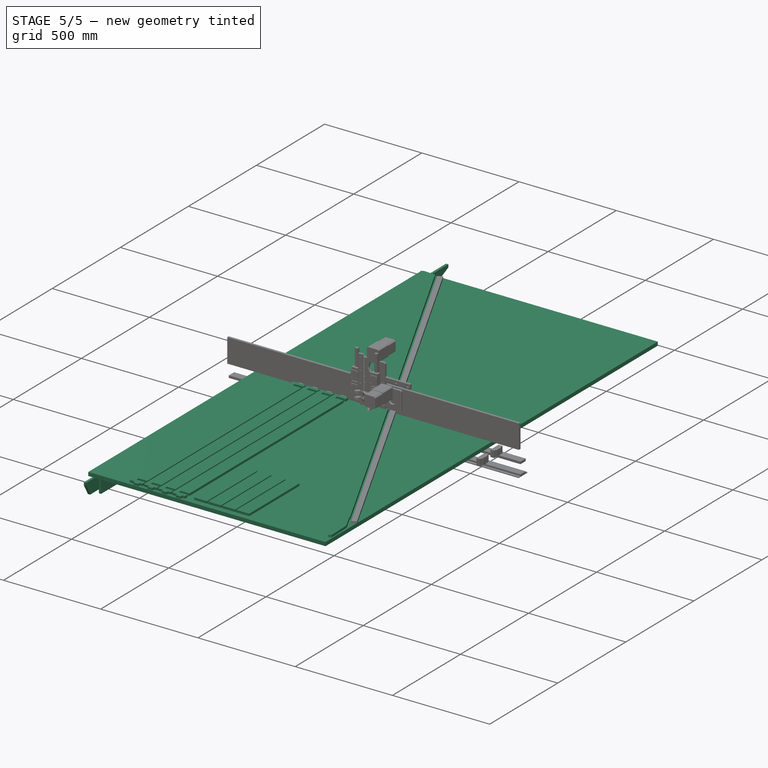
[diagram: stage 5 of 5 — iso view after this stage's code; geometry added in this stage tinted green]
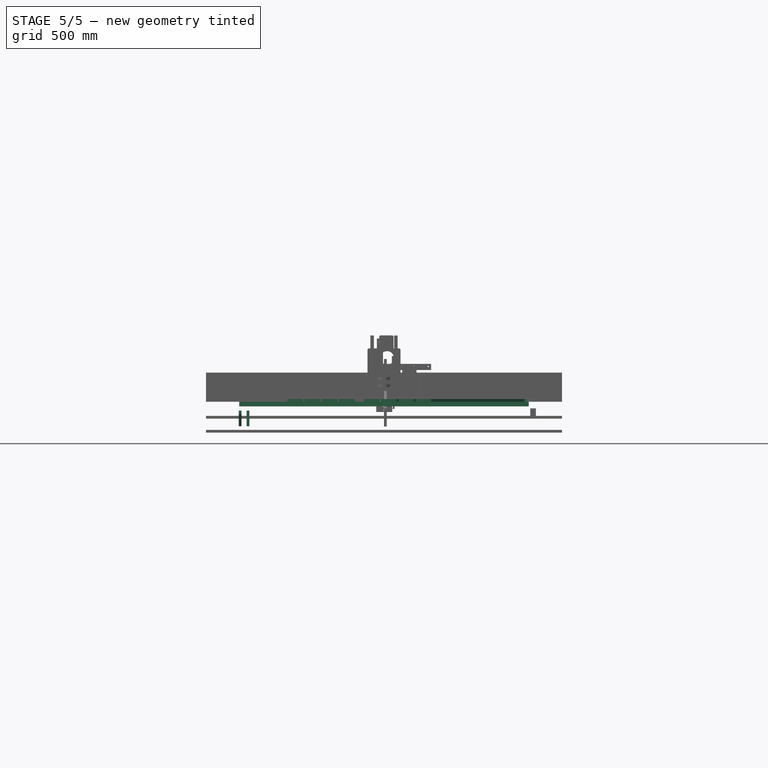
[diagram: stage 5 of 5 — front view after this stage's code; geometry added in this stage tinted green]
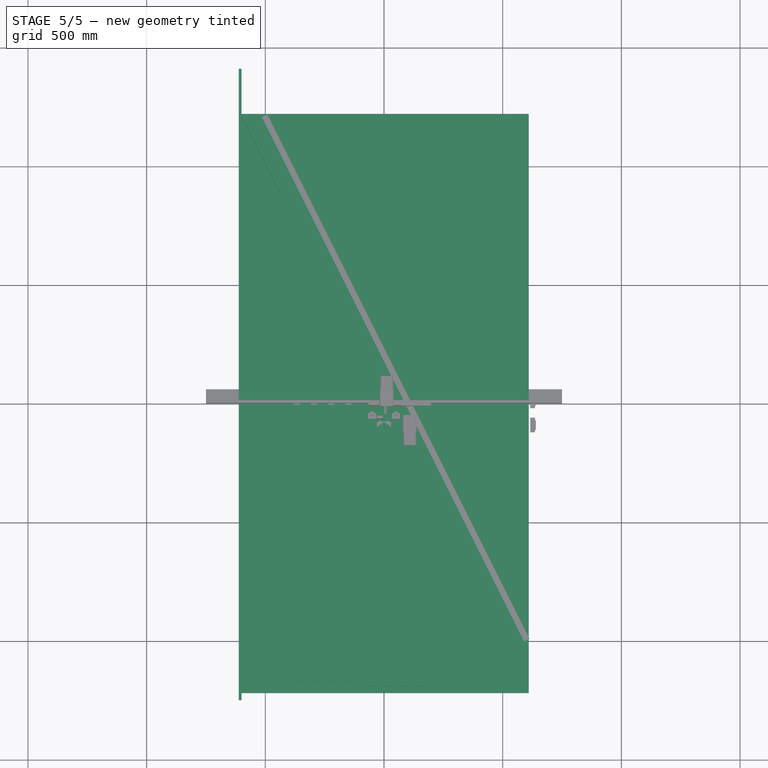
[diagram: stage 5 of 5 — top view after this stage's code; geometry added in this stage tinted green]
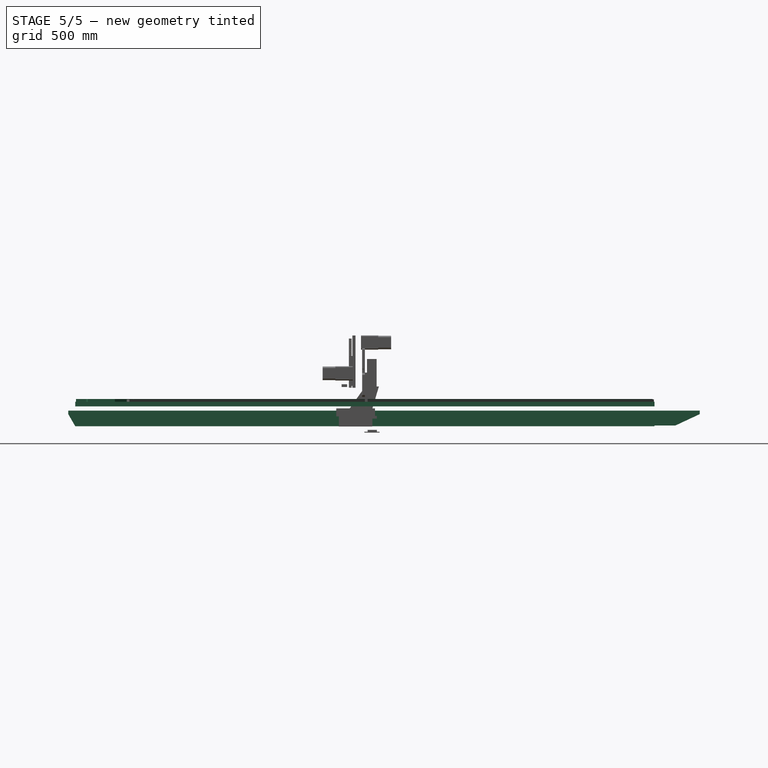
[diagram: stage 5 of 5 — right view after this stage's code; geometry added in this stage tinted green]
FEATURE [PartDesign::Body] Body  label="Spindle"
  Group = -> [Sketch,Pad,Sketch001,Pad001,Sketch002,Pad002]
  Origin = -> Origin
  Placement = pos=(0,-119.55,40) rot=(0,0,1;0rad)
  Tip = -> Pad002
  expr: .Placement.Base.y = -dd.ddBearing_block_heigth * 2 - dd.ddPhenolic_thickness * 2 - dd.ddSpindle_diameter / 2 - 8
FEATURE [Sketcher::SketchObject] Sketch003
  FullyConstrained = true
  MapMode = 5
  Support = -> [XY_Plane001]
  expr: Constraints[8] = dd.ddBed_size_X
  expr: Constraints[9] = dd.ddBed_size_Y
  sketch-geometry (4):
    g0: LineSegment StartX=-610 StartY=-1220 StartZ=0 EndX=610 EndY=-1220 EndZ=0
    g1: LineSegment StartX=610 StartY=-1220 StartZ=0 EndX=610 EndY=1220 EndZ=0
    g2: LineSegment StartX=610 StartY=1220 StartZ=0 EndX=-610 EndY=1220 EndZ=0
    g3: LineSegment StartX=-610 StartY=1220 StartZ=0 EndX=-610 EndY=-1220 EndZ=0
  constraints (10):
    c: Coincident(g0,g1)
    c: Coincident(g1,g2)
    c: Coincident(g2,g3)
    c: Coincident(g3,g0)
    c: Horizontal(g0)
    c: Vertical(g1)
    c: Symmetric(g1,g2,g-2)
    c: Symmetric(g2,g0,g-1)
    c: Distance(g0) = 1220
    c: Distance(g1) = 2440
FEATURE [PartDesign::Pad] Pad003
  Direction = (0,0,1)
  Length = 19
  Length2 = 10
  Profile = -> Sketch003
  ReferenceAxis = -> Sketch003 [N_Axis]
  Reversed = true
  Type = 0
  expr: Length = dd.ddMDF_thickness
FEATURE [PartDesign::Body] Body001  label="MDF sacrafcial layer"
  Group = -> [Sketch003,Pad003]
  Origin = -> Origin001
  Tip = -> Pad003
FEATURE [Sketcher::SketchObject] Sketch004
  FullyConstrained = true
  MapMode = 5
  Support = -> [XY_Plane002]
  expr: Constraints[8] = dd.ddBed_size_X
  expr: Constraints[9] = dd.ddBed_size_Y
  sketch-geometry (4):
    g0: LineSegment StartX=-610 StartY=-1220 StartZ=0 EndX=610 EndY=-1220 EndZ=0
    g1: LineSegment StartX=610 StartY=-1220 StartZ=0 EndX=610 EndY=1220 EndZ=0
    g2: LineSegment StartX=610 StartY=1220 StartZ=0 EndX=-610 EndY=1220 EndZ=0
    g3: LineSegment StartX=-610 StartY=1220 StartZ=0 EndX=-610 EndY=-1220 EndZ=0
  constraints (10):
    c: Coincident(g0,g1)
    c: Coincident(g1,g2)
    c: Coincident(g2,g3)
    c: Coincident(g3,g0)
    c: Horizontal(g0)
    c: Vertical(g1)
    c: Symmetric(g1,g2,g-2)
    c: Symmetric(g2,g0,g-1)
    c: Distance(g0) = 1220
    c: Distance(g1) = 2440
FEATURE [PartDesign::Pad] Pad004
  Direction = (0,0,1)
  Length = 18
  Length2 = 10
  Profile = -> Sketch004
  ReferenceAxis = -> Sketch004 [N_Axis]
  Reversed = true
  Type = 0
  expr: Length = dd.ddPlywood_thickness
FEATURE [PartDesign::Body] Body002  label="Plywood top"
  Group = -> [Sketch004,Pad004]
  Origin = -> Origin002
  Placement = pos=(0,0,-19) rot=(0,0,1;0rad)
  Tip = -> Pad004
  expr: .Placement.Base.z = -dd.ddMDF_thickness
FEATURE [Sketcher::SketchObject] Sketch005
  FullyConstrained = true
  MapMode = 5
  Support = -> [XY_Plane003]
  expr: Constraints[8] = dd.ddBed_size_X
  expr: Constraints[9] = dd.ddBed_size_Y
  sketch-geometry (4):
    g0: LineSegment StartX=-610 StartY=-1220 StartZ=0 EndX=610 EndY=-1220 EndZ=0
    g1: LineSegment StartX=610 StartY=-1220 StartZ=0 EndX=610 EndY=1220 EndZ=0
    g2: LineSegment StartX=610 StartY=1220 StartZ=0 EndX=-610 EndY=1220 EndZ=0
    g3: LineSegment StartX=-610 StartY=1220 StartZ=0 EndX=-610 EndY=-1220 EndZ=0
  constraints (10):
    c: Coincident(g0,g1)
    c: Coincident(g1,g2)
    c: Coincident(g2,g3)
    c: Coincident(g3,g0)
    c: Horizontal(g0)
    c: Vertical(g1)
    c: Symmetric(g1,g2,g-2)
    c: Symmetric(g2,g0,g-1)
    c: Distance(g0) = 1220
    c: Distance(g1) = 2440
FEATURE [PartDesign::Pad] Pad005
  Direction = (0,0,1)
  Length = 18
  Length2 = 10
  Profile = -> Sketch005
  ReferenceAxis = -> Sketch005 [N_Axis]
  Reversed = true
  Type = 0
  expr: Length = dd.ddPlywood_thickness
FEATURE [PartDesign::Body] Body024  label="Z motor plate"
  Group = -> [Sketch032,Pad027]
  Origin = -> Origin029
  Placement = pos=(10,-28,250) rot=(0,0,1;0rad)
  Tip = -> Pad027
  expr: .Placement.Base.x = <<Pinion - Z axis>>.Placement.Base.x
  expr: .Placement.Base.y = -dd.ddBearing_block_heigth
  expr: .Placement.Base.z = <<Pinion - Z axis>>.Placement.Base.z
FEATURE [App::Part] Part004  label="X axis"
  Group = -> [Part003,Clone008,Body018,Array011,Body017,Body015,Array010,Clone010,Clone011,Clone013,Body023,Body024]
  Origin = -> Origin024
FEATURE [App::Part] Part002  label="Gantry"
  Group = -> [Body014,Body013,Body012,Body011,Clone006,Body006,Body007,Array008,Body016,Array009,Part004,Clone012]
  Origin = -> Origin018
FEATURE [Part::Feature] Body023001  label="X motor plate001"
  Placement = pos=(11,-9.6,247) rot=(0,-1,0;1.5708rad)
  shape: bbox 74 x 11.6 x 74 mm, 16 faces (baked)
FEATURE [Sketcher::SketchObject] Sketch033
  FullyConstrained = false
  MapMode = 5
  Placement = pos=(0,0,0) rot=(1,0,0;1.5708rad)
  Support = -> [XZ_Plane030]
  sketch-geometry (4):
    g0: Circle CenterX=0 CenterY=0 CenterZ=0 NormalX=0 NormalY=0 NormalZ=1 AngleXU=0 Radius=22.5
    g1: Circle CenterX=-29.9683 CenterY=35.9788 CenterZ=0 NormalX=0 NormalY=0 NormalZ=1 AngleXU=0 Radius=4.06807
    g2: Circle CenterX=36.9133 CenterY=35.4918 CenterZ=0 NormalX=0 NormalY=0 NormalZ=1 AngleXU=0 Radius=6.33102
    g3: Circle CenterX=38.8613 CenterY=-40 CenterZ=0 NormalX=0 NormalY=0 NormalZ=1 AngleXU=0 Radius=3.92968
  constraints (2):
    c: Coincident(g0,g-1)
    c: Diameter(g0) = 45
FEATURE [PartDesign::Body] Body023002  label="Holde maker X and Z motor plate"
  Group = -> [Sketch033]
  Origin = -> Origin030

RESOLVED EXTERNAL PARTS (link-assembly join: the EXTERNAL_REF files above that resolve inside this repo's crawl, each included once):
---- part cnc-friendy-rack-and-pinion-for-humphrey2.FCStd = doc fcstd_59abb4f0cc2e ----
FCSTD DOCUMENT  (FreeCAD 0.20R29177 (Git))
Label: cnc-friendy-rack-and-pinion-for-humphrey2
License: All rights reserved
LicenseURL: http://en.wikipedia.org/wiki/All_rights_reserved
objects: Part::FeaturePython×50, Part::Mirroring×7, PartDesign::Body×6, Part::Cut×6, Part::Cylinder×6, Sketcher::SketchObject×5, PartDesign::FeatureBase×4, App::DocumentObjectGroup×3, Part::Offset×2, PartDesign::Pad×2, PartDesign::Fillet×2, Part::MultiFuse×2, Spreadsheet::Sheet×1, Part::Feature×1, Part::Box×1, PartDesign::ShapeBinder×1, Part::Loft×1, Part::MultiCommon×1, Part::Compound×1, Part::RuledSurface×1, +2 more types
note: 105 computed .brp shape members not serialized (recipe doc carries the construction recipe); baked Part::Feature solids carry a one-line shape summary decoded from their .brp

FEATURE [Spreadsheet::Sheet] Spreadsheet
  cells = A1=Main adjustements; A2=Number of pinion teeth; B2(pinion_tooth_count)=20; A3=Pinion tooth width; B3(pinion_tooth_width)=3.3; A4=Pinion tooth heigth; B4(pinion_tooth_heigth)=8; A5=Rack tooth spacing; B5(rack_tooth_spacing)=5.75; A6=Rack width; B6(rack_width)=20; A7=Rack thickness; B7(rack_thickness)=8; A8=Rack length; B8(rack_length)=205; A10=Advanced adjustments; A11=Motor shaft diameter; B11(pinion_motor_shaft_diameter)=7.2; A12=Motor shaft flat depth; B12(pinion_motor_shaft_flat_depth)=0.5; A13=Motor shaft flat corner dogbone diameter; B13(pinion_motor_shaft_flat_dogbone_diameter)=3.1; A14=Motorshaft hole dogbone angle; B14(pinion_dogbone_angle)=75; A15=Rack tooth fillet ratio; B15(rack_tooth_fillet_ratio)=0.1; A16=Pinion valley to rack tooth tip clearance; B16(pinion_side_clearance)=0.12; A17=Pinion to rack heigth clearance; B17(pinion_heigth_clearance)=0.5; A18=Pinion dust relief trim distance; B18(dust_relief)=0.5; A19=Pinion dust relief fillet ratio; B19(dust_relief_fillet_ratio)=0.1; A20=Pinion stock thickness; B20(pinion_stock_thick)=25; A21=Pinion ring diameter; B21(pinion_ring_diameter)=39; A22=Pinion set screw hole diameter; B22(pinion_set_screw_hole_diameter)=4.3; A23=Pinion set screw count; B23(pinion_set_screw_count)=3; A25=Inputs not to be changed:; A26=Master cycloid circumference; B26(master_cycloid_circumference)=100; A29=Deducted values (not to be changed):; A30=Pinion circumference; B30(pinion_circumference)==pinion_tooth_count * rack_tooth_spacing; A31=Pinion tooth gap size; B31(pinion_tooth_gap_size)==rack_tooth_spacing - pinion_tooth_width
FEATURE [Part::Feature] Part__Feature  label="Master-cycloid"
  shape: bbox 100 x 100 x 81.83 mm, 7 faces (baked)
FEATURE [Part::FeaturePython] Clone  label="Master-cycloid-scaled-and-moved"  # Draft clone (typed FeaturePython)
  AttacherType = Attacher::AttachEngine3D
  Fuse = false
  Objects = -> [Part__Feature]
  Placement = pos=(-2.875,0,0) rot=(0,0,1;0rad)
  Scale = (1.15,1.15,1.15)
  expr: .Placement.Base.x = Spreadsheet.rack_tooth_spacing / 2 * -1
  expr: .Scale.x = Spreadsheet.pinion_circumference / Spreadsheet.master_cycloid_circumference
  expr: .Scale.y = Spreadsheet.pinion_circumference / Spreadsheet.master_cycloid_circumference
  expr: .Scale.z = Spreadsheet.pinion_circumference / Spreadsheet.master_cycloid_circumference
FEATURE [PartDesign::Body] Body001
  BaseFeature = -> Cut001
  Group = -> [BaseFeature,Fillet]
  Origin = -> Origin001
  Placement = pos=(0,0,-6.3662) rot=(0,0,1;0rad)
  Tip = -> Fillet
  expr: .Placement.Base.x = 0
FEATURE [Part::FeaturePython] Array  label="Rack"  # Draft array (typed FeaturePython)
  Angle = 360
  ArrayType = 0
  Axis = (0,0,1)
  Base = -> Fillet
  Center = (0,0,0)
  Fuse = true
  IntervalAxis = (0,0,0)
  IntervalX = (5.75,0,0)
  IntervalY = (0,1,0)
  IntervalZ = (0,0,1)
  NumberPolar = 1
  NumberX = 36
  NumberY = 1
  NumberZ = 1
  Placement = pos=(-5.75,0,-18.3028) rot=(0,0,1;0rad)
  expr: .IntervalX.x = Spreadsheet.rack_tooth_spacing
  expr: .Placement.Base.x = Spreadsheet.rack_tooth_spacing * -1
  expr: .Placement.Base.z = Spreadsheet.pinion_circumference / pi / -2
  expr: NumberX = Spreadsheet.rack_length / Spreadsheet.rack_tooth_spacing
FEATURE [Part::Box] Box  label="Cube"
  AttacherType = Attacher::AttachEngine3D
  Height = 250
  Length = 11.5
  Placement = pos=(0,-8,-135) rot=(0,0,1;0rad)
  Width = 8
  expr: .Placement.Base.y = Spreadsheet.rack_thickness * -1
  expr: .Placement.Base.z = (Spreadsheet.rack_width + Spreadsheet.pinion_circumference) * -1
  expr: Height = Spreadsheet.rack_width + Spreadsheet.pinion_circumference * 2
  expr: Length = Spreadsheet.rack_tooth_spacing * 2
  expr: Width = Spreadsheet.rack_thickness
FEATURE [Part::Cut] Cut002  label="Halftooth for sampling"
  Base = -> Fillet
  Placement = pos=(0,0,-18.3028) rot=(0,0,1;0rad)
  Tool = -> Box
  expr: .Placement.Base.z = Spreadsheet.pinion_circumference / pi / -2
FEATURE [PartDesign::ShapeBinder] ShapeBinder
  Placement = pos=(0,0,-18.3028) rot=(0,0,1;0rad)
  Support = -> [Cut002]
  TraceSupport = false
FEATURE [Sketcher::SketchObject] Sketch001
  ExternalGeometry = -> [ShapeBinder]
  FullyConstrained = true
  MapMode = 5
  Placement = pos=(0,0,0) rot=(0.57735,0.57735,0.57735;2.0944rad)
  Support = -> [YZ_Plane005]
  expr: Constraints[3] = Spreadsheet.rack_tooth_spacing * Spreadsheet.rack_tooth_fillet_ratio
  sketch-geometry (1):
    g0: LineSegment StartX=-8 StartY=-15.4427 StartZ=0 EndX=3.6e-15 EndY=-15.4427 EndZ=0
  constraints (4):
    c: Horizontal(g0)
    c: DistanceX(g0,g-3) = 0
    c: DistanceX(g0,g-3) = 0
    c: DistanceY(g0,g-3) = 0.575
FEATURE [PartDesign::Body] Body005  label="Body for extrating tooth tip center line"
  Group = -> [Sketch001,ShapeBinder]
  Origin = -> Origin005
FEATURE [Part::FeaturePython] Array001  label="Center line"  # Draft array (typed FeaturePython)
  Angle = 360
  ArrayType = 0
  Axis = (0,0,1)
  Base = -> Sketch001
  Center = (0,0,0)
  Fuse = false
  IntervalAxis = (0,0,0)
  IntervalX = (1,0,0)
  IntervalY = (0,1,0)
  IntervalZ = (0,0,1)
  NumberPolar = 1
  NumberX = 1
  NumberY = 1
  NumberZ = 1
FEATURE [Part::FeaturePython] Array003  label="Rigth1-rotate"  # Draft array (typed FeaturePython)
  Angle = 0
  ArrayType = 0
  Axis = (0,0,1)
  Base = -> Array002
  Center = (0,0,0)
  Fuse = false
  IntervalAxis = (0,0,0)
  IntervalX = (1,0,0)
  IntervalY = (0,1,0)
  IntervalZ = (0,0,1)
  NumberPolar = 1
  NumberX = 1
  NumberY = 1
  NumberZ = 1
  Placement = pos=(0,0,0) rot=(0,1,0;0.139626rad)
  expr: .Placement.Base.x = 0
FEATURE [Part::FeaturePython] Array005  label="Right2-rotate"  # Draft array (typed FeaturePython)
  Angle = 0
  ArrayType = 0
  Axis = (0,0,1)
  Base = -> Array004
  Center = (0,0,0)
  Fuse = false
  IntervalAxis = (0,0,0)
  IntervalX = (1,0,0)
  IntervalY = (0,1,0)
  IntervalZ = (0,0,1)
  NumberPolar = 1
  NumberX = 1
  NumberY = 1
  NumberZ = 1
  Placement = pos=(0,0,0) rot=(0,1,0;0.279253rad)
FEATURE [Part::Mirroring] Part__Mirroring001  label="Rigth1-rotate (Mirror #2)"
  Base = (0,0,0)
  Normal = (1,0,0)
  Source = -> Array003
FEATURE [Part::Mirroring] Part__Mirroring002  label="Right2-rotate (Mirror #3)"
  Base = (0,0,0)
  Normal = (1,0,0)
  Source = -> Array005
FEATURE [Part::Mirroring] Part__Mirroring003  label="Right3-rotate (Mirror #4)"
  Base = (0,0,0)
  Normal = (1,0,0)
  Source = -> Array007
FEATURE [Part::Mirroring] Part__Mirroring004  label="Right4-rotate (Mirror #5)"
  Base = (0,0,0)
  Normal = (1,0,0)
  Source = -> Array009
FEATURE [Part::Mirroring] Part__Mirroring005  label="Right5-rotate (Mirror #6)"
  Base = (0,0,0)
  Normal = (1,0,0)
  Source = -> Array011
FEATURE [Part::Mirroring] Part__Mirroring006  label="Right6-rotate (Mirror #7)"
  Base = (0,0,0)
  Normal = (1,0,0)
  Source = -> Array013
FEATURE [Part::FeaturePython] Connect  # WARN: FeaturePython — macro-defined, semantics opaque (R4)
  Objects = -> [Array003]
  Tolerance = 0
FEATURE [Part::FeaturePython] Connect001  # WARN: FeaturePython — macro-defined, semantics opaque (R4)
  Objects = -> [Array005]
  Tolerance = 0
FEATURE [Part::FeaturePython] Connect002  # WARN: FeaturePython — macro-defined, semantics opaque (R4)
  Objects = -> [Array007]
  Tolerance = 0
FEATURE [Part::FeaturePython] Connect003  # WARN: FeaturePython — macro-defined, semantics opaque (R4)
  Objects = -> [Array009]
  Tolerance = 0
FEATURE [Part::FeaturePython] Connect004  # WARN: FeaturePython — macro-defined, semantics opaque (R4)
  Objects = -> [Array011]
  Tolerance = 0
FEATURE [Part::FeaturePython] Connect005  # WARN: FeaturePython — macro-defined, semantics opaque (R4)
  Objects = -> [Array013]
  Tolerance = 0
FEATURE [Part::FeaturePython] Connect006  # WARN: FeaturePython — macro-defined, semantics opaque (R4)
  Objects = -> [Part__Mirroring001]
  Tolerance = 0
FEATURE [Part::FeaturePython] Connect007  # WARN: FeaturePython — macro-defined, semantics opaque (R4)
  Objects = -> [Part__Mirroring002]
  Tolerance = 0
FEATURE [Part::FeaturePython] Connect008  # WARN: FeaturePython — macro-defined, semantics opaque (R4)
  Objects = -> [Part__Mirroring003]
  Tolerance = 0
FEATURE [Part::FeaturePython] Connect009  # WARN: FeaturePython — macro-defined, semantics opaque (R4)
  Objects = -> [Part__Mirroring004]
  Tolerance = 0
FEATURE [Part::FeaturePython] Connect010  # WARN: FeaturePython — macro-defined, semantics opaque (R4)
  Objects = -> [Part__Mirroring005]
  Tolerance = 0
FEATURE [Part::FeaturePython] Connect011  # WARN: FeaturePython — macro-defined, semantics opaque (R4)
  Objects = -> [Part__Mirroring006]
  Tolerance = 0
FEATURE [Part::Loft] Loft
  Closed = false
  MaxDegree = 2
  Ruled = false
  Sections = -> [Connect011,Connect010,Connect009,Connect008,Connect007,Connect006,Array001,Connect,Connect001,Connect002,Connect003,Connect004,Connect005]
  Solid = false
FEATURE [Part::Offset] Offset001  label="Inner pinion profile before trim"
  Fill = false
  Intersection = false
  Join = 0
  Mode = 0
  SelfIntersection = false
  Source = -> Loft
  Value = -0.695
  expr: Value = (Spreadsheet.rack_tooth_spacing * Spreadsheet.rack_tooth_fillet_ratio + Spreadsheet.pinion_side_clearance) * -1
FEATURE [Part::Cylinder] Cylinder  label="ToothCylinder"
  Angle = 360
  AttacherType = Attacher::AttachEngine3D
  FirstAngle = 0
  Height = 8
  Placement = pos=(0,0,-18.3028) rot=(1,0,0;1.5708rad)
  Radius = 1.65
  SecondAngle = 0
  expr: .Placement.Base.x = 0
  expr: .Placement.Base.z = Spreadsheet.pinion_circumference / pi / -2
  expr: Height = Spreadsheet.pinion_tooth_heigth
  expr: Radius = Spreadsheet.pinion_tooth_width / 2
FEATURE [Part::Cylinder] Cylinder001  label="TrimCylinder"
  Angle = 360
  AttacherType = Attacher::AttachEngine3D
  FirstAngle = 0
  Height = 8
  Placement = pos=(0,0,0) rot=(1,0,0;1.5708rad)
  Radius = 19.4528
  SecondAngle = 0
  expr: Height = Spreadsheet.pinion_tooth_heigth
  expr: Radius = (Spreadsheet.pinion_circumference / pi + Spreadsheet.pinion_tooth_width) / 2 - Spreadsheet.dust_relief
FEATURE [Part::MultiCommon] Common  label="Tooth before fillet"
  Shapes = -> [Cylinder,Cylinder001]
FEATURE [PartDesign::FeatureBase] BaseFeature002
  BaseFeature = -> Common
FEATURE [PartDesign::Fillet] Fillet002
  Base = -> BaseFeature002 [Edge6,Edge3]
  BaseFeature = -> BaseFeature002
  Radius = 0.33
  SupportTransform = false
  UseAllEdges = false
  expr: Radius = Spreadsheet.pinion_tooth_width * Spreadsheet.dust_relief_fillet_ratio
FEATURE [PartDesign::Body] Body006  label="Pinion tooth with dust relief"
  BaseFeature = -> Common
  Group = -> [BaseFeature002,Fillet002]
  Origin = -> Origin006
  Tip = -> Fillet002
FEATURE [Part::FeaturePython] Clone001  label="Left trim pinion"  # Draft clone (typed FeaturePython)
  AttacherType = Attacher::AttachEngine3D
  Fuse = false
  Objects = -> [Fillet002]
  Placement = pos=(0,0,0) rot=(0,1,0;0.15708rad)
  Scale = (1,1,1)
  expr: .Placement.Rotation.Angle = 360 / Spreadsheet.pinion_tooth_count / 2
FEATURE [Part::FeaturePython] Clone002  label="Rigth trim pinion"  # Draft clone (typed FeaturePython)
  AttacherType = Attacher::AttachEngine3D
  Fuse = false
  Objects = -> [Body006]
  Placement = pos=(0,0,0) rot=(0,-1,0;0.15708rad)
  Scale = (1,1,1)
  expr: .Placement.Rotation.Angle = 360 / Spreadsheet.pinion_tooth_count / 2
FEATURE [Part::Compound] Compound
  Links = -> [Clone001,Clone002]
FEATURE [Part::FeaturePython] Slice  # WARN: FeaturePython — macro-defined, semantics opaque (R4)
  Base = -> Offset001
  Mode = 1
  Tolerance = 0
  Tools = -> [Compound]
FEATURE [Part::FeaturePython] Slice_child0  label="Slice.0"  # WARN: FeaturePython — macro-defined, semantics opaque (R4)
  Base = -> Slice
  FilterType = 1
  Invert = false
  OverrideMaxVal = 0
  WindowFrom = 80
  WindowTo = 100
  items = 0
FEATURE [Part::FeaturePython] Slice_child1  label="Slice.1"  # WARN: FeaturePython — macro-defined, semantics opaque (R4)
  Base = -> Slice
  FilterType = 1
  Invert = false
  OverrideMaxVal = 0
  WindowFrom = 80
  WindowTo = 100
  items = 1
FEATURE [Part::FeaturePython] Slice_child2  label="Slice.2"  # WARN: FeaturePython — macro-defined, semantics opaque (R4)
  Base = -> Slice
  FilterType = 1
  Invert = false
  OverrideMaxVal = 0
  WindowFrom = 80
  WindowTo = 100
  items = 2
FEATURE [Part::FeaturePython] Slice_child3  label="Slice.3"  # WARN: FeaturePython — macro-defined, semantics opaque (R4)
  Base = -> Slice
  FilterType = 1
  Invert = false
  OverrideMaxVal = 0
  WindowFrom = 80
  WindowTo = 100
  items = 3
FEATURE [Part::FeaturePython] Slice_child4  label="Slice.4"  # WARN: FeaturePython — macro-defined, semantics opaque (R4)
  Base = -> Slice
  FilterType = 1
  Invert = false
  OverrideMaxVal = 0
  WindowFrom = 80
  WindowTo = 100
  items = 4
FEATURE [App::DocumentObjectGroup] GrExplode_Slice  label="Exploded Slice for inner skin"
  Group = -> [Slice_child0,Slice_child1,Slice_child2,Slice_child3,Slice_child4]
FEATURE [Part::FeaturePython] Clone003  label="Skin for line1"  # Draft clone (typed FeaturePython)
  AttacherType = Attacher::AttachEngine3D
  Fuse = false
  Objects = -> [Slice_child2]
  Scale = (1,1,1)
FEATURE [Part::FeaturePython] Clone004  label="Skin for line2"  # Draft clone (typed FeaturePython)
  AttacherType = Attacher::AttachEngine3D
  Fuse = false
  Objects = -> [Clone003]
  Placement = pos=(0,0,0) rot=(0,1,0;0.314159rad)
  Scale = (1,1,1)
  expr: .Placement.Rotation.Angle = 360 / Spreadsheet.pinion_tooth_count
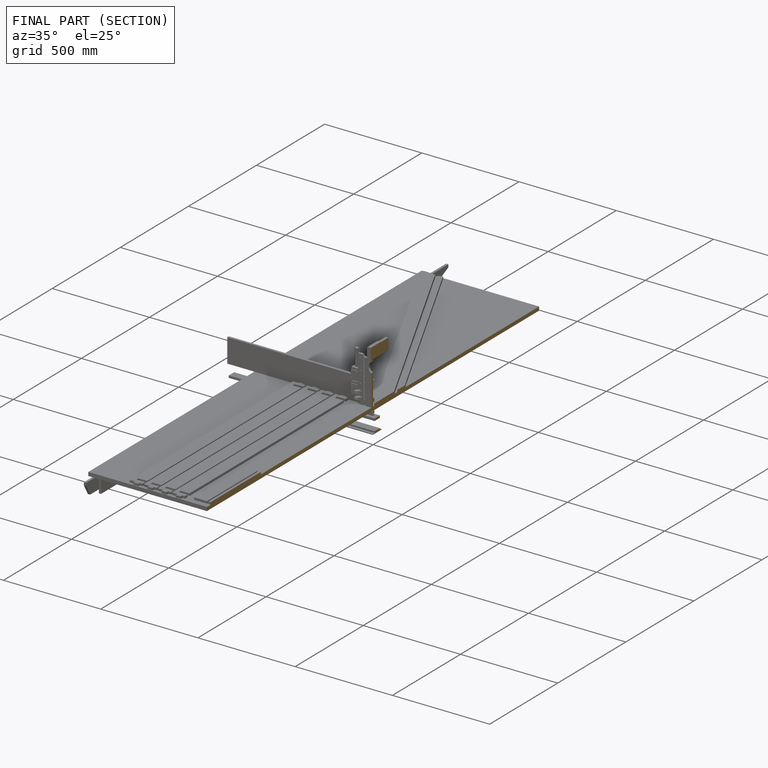
[diagram: finished part — half-section view (interior)]
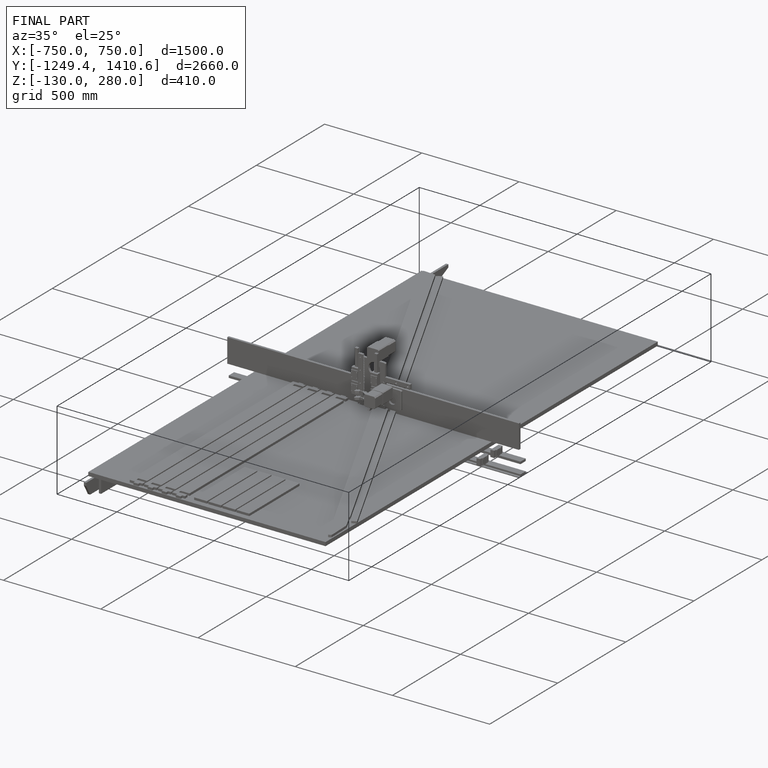
[diagram: finished part — iso view with bounding-box wireframe]
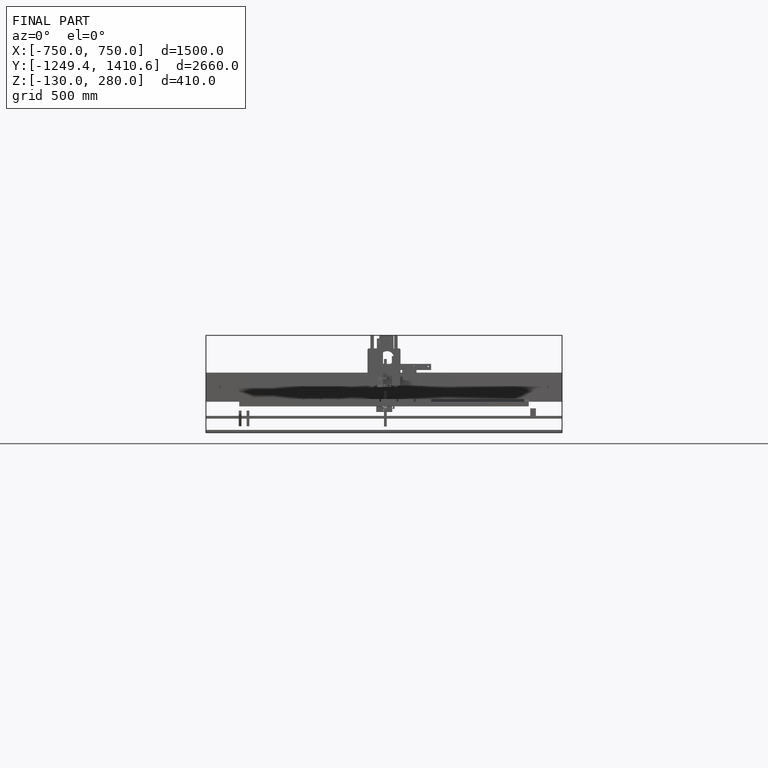
[diagram: finished part — front view with bounding-box wireframe]
